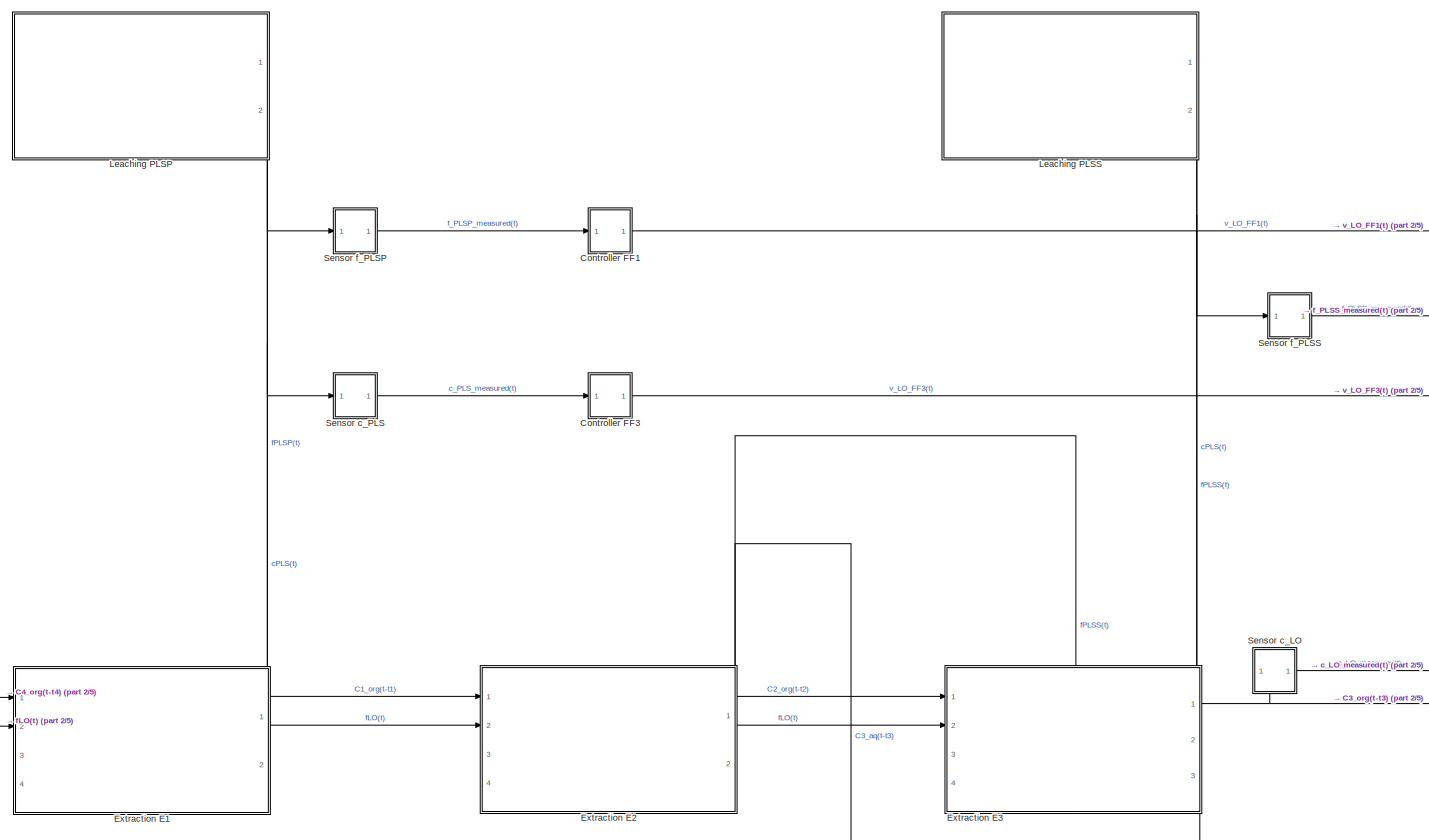
[diagram: root canvas - part 1/5, left side, full height]
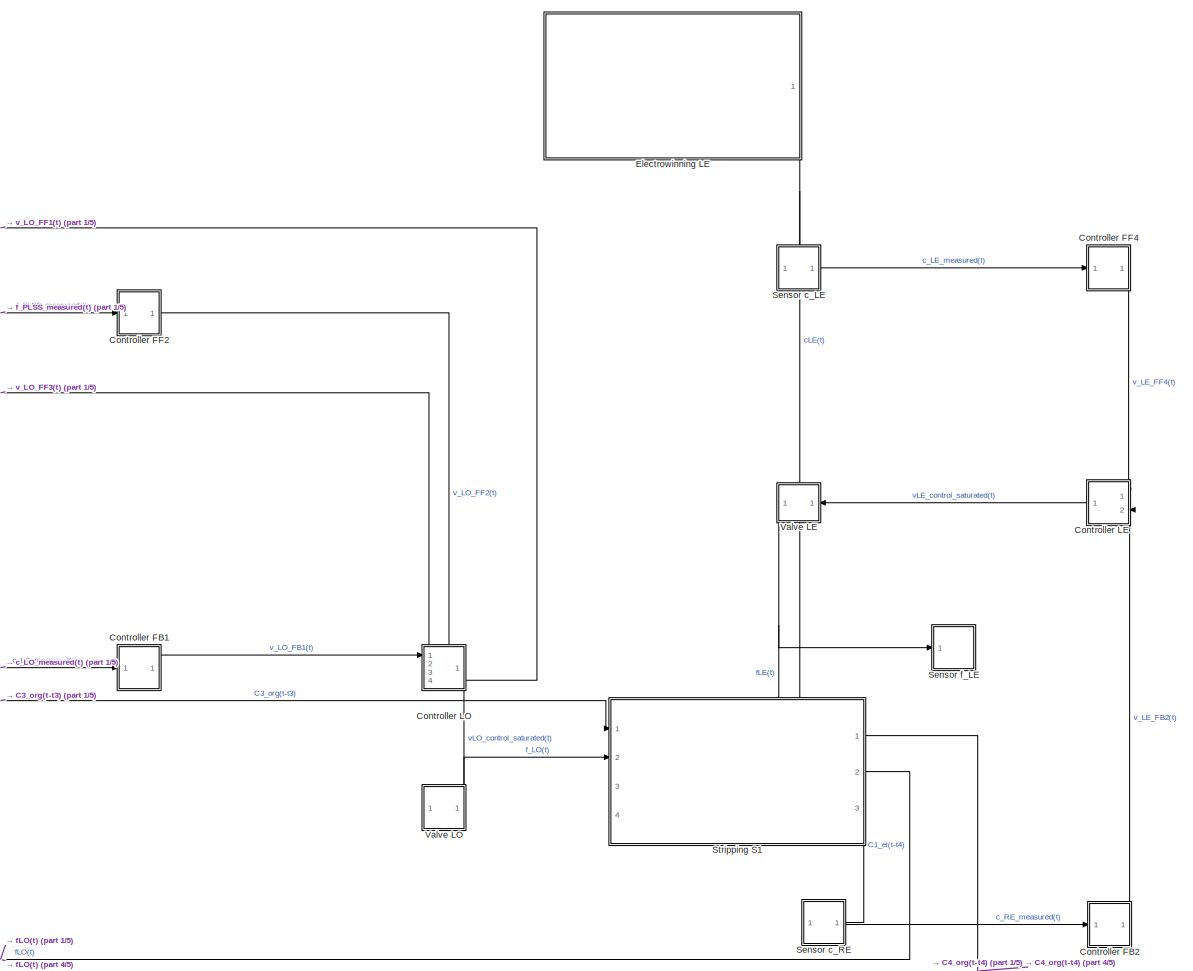
[diagram: root canvas - part 2/5, right side, full height]
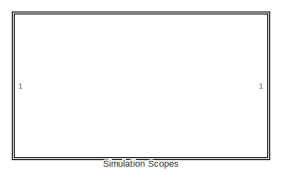
[diagram: root canvas - part 3/5, top right region]
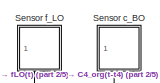
[diagram: root canvas - part 4/5, bottom left region]
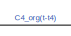
[diagram: root canvas - part 5/5, bottom center region]
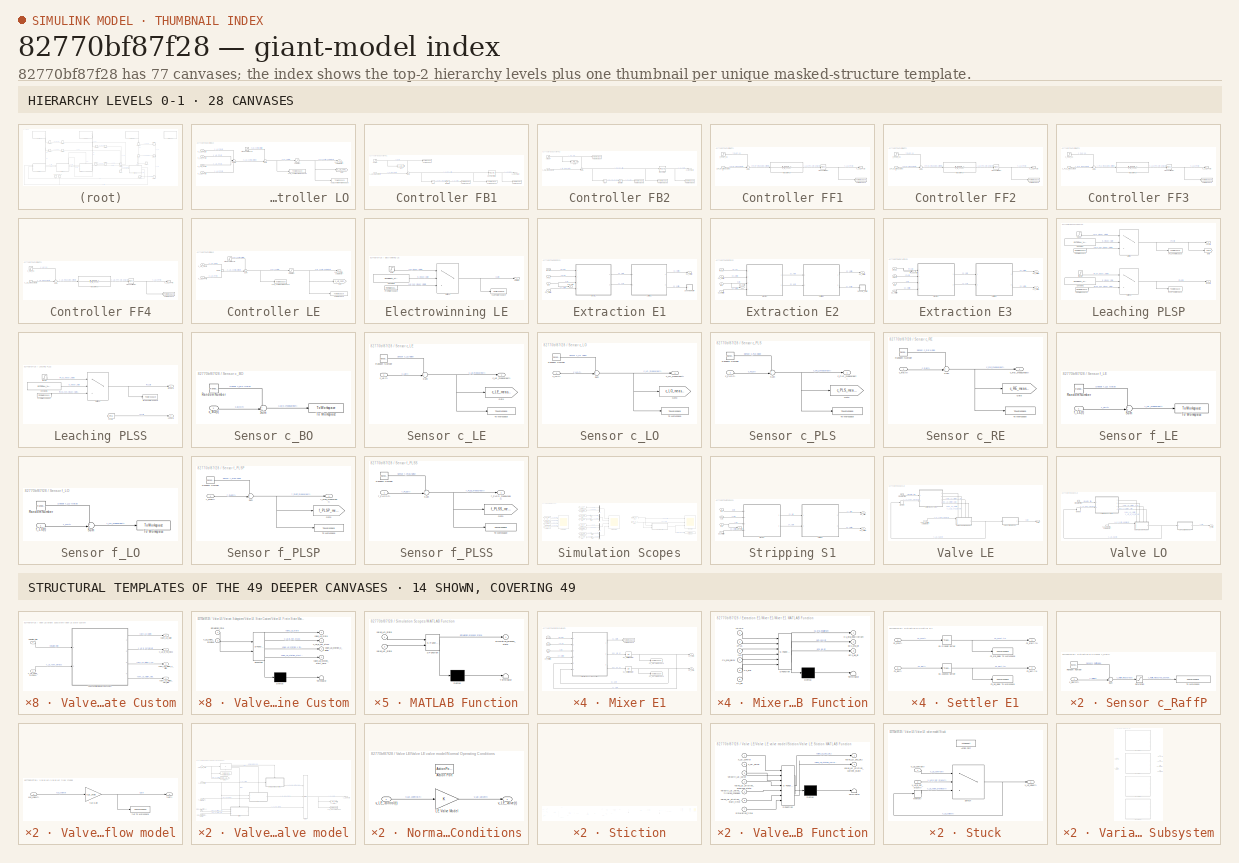
[diagram: thumbnail index - top-2 hierarchy levels (28 canvases) + 14 structural-template representatives of the remaining 49 canvases]
MODEL slx_82770bf87f28
KIND model
CONFIG AbsTol = auto
CONFIG EnableMultiTasking = off
CONFIG FixedStep = step_time
CONFIG MaxStep = auto
CONFIG MinStep = auto
CONFIG RelTol = 1e-3
CONFIG SampleTimeConstraint = Unconstrained
CONFIG SolverName = ode14x
CONFIG StartTime = 0.0
CONFIG StopTime = simulation_time
BLOCK [SubSystem]                            Controller LO
  PortSchema = {"entries":[{"content":{"sides":[{"content":{"connectorIds":["In1"]},"type":"ConnectorPlacement.EquallySpacedRectSide","uuid":"52743177-f082-4040-b095-38ff8f699919"},{"content":{"connectorIds":["In4"],"side":"RIGHT"},"type":"ConnectorPlacement.EquallySpacedRectSide","uuid":"070049ef-ea19-4899-84de-48e128addf57"},{"content":{"connectorIds":["In2","In3"],"side":"TOP"},"type":"ConnectorPlacement.Equa...<+400ch>
  Ports = [4, 1]
  RequestExecContextInheritance = off
BLOCK [Goto]                            Controller LO/Goto
  GotoTag = v_LO_control
  TagVisibility = global
BLOCK [Saturate]                            Controller LO/Saturation
  LowerLimit = 0
  UpperLimit = 1
BLOCK [Step]                            Controller LO/Steady-state vLO
  After = vLO_ss
  Before = vLO_ss
  SampleTime = 0
  Time = 0
BLOCK [Sum]                            Controller LO/Sum
  Inputs = ++|
  Ports = [2, 1]
BLOCK [Sum]                            Controller LO/Sum1
  Inputs = ++++
  Ports = [4, 1]
BLOCK [ToWorkspace]                            Controller LO/vLO_control To Workspace
  FixptAsFi = on
  MaxDataPoints = inf
  Ports = [1]
  SampleTime = -1
  SaveFormat = Timeseries
  VariableName = vLO_control_saturated
BLOCK [ToWorkspace]                            Controller LO/vLO_control To Workspace1
  FixptAsFi = on
  MaxDataPoints = inf
  Ports = [1]
  SampleTime = -1
  SaveFormat = Timeseries
  VariableName = vLO_control
BLOCK [Outport]                            Controller LO/vLO_control_saturated(t)
BLOCK [Inport]                            Controller LO/v_LO_FB1(t)
BLOCK [Inport]                            Controller LO/v_LO_FF1(t)
  Port = 4
BLOCK [Inport]                            Controller LO/v_LO_FF2(t) 
  Port = 3
BLOCK [Inport]                            Controller LO/v_LO_FF3(t)
  Port = 2
BLOCK [SubSystem] Controller FB1
  Ports = [1, 1]
  RequestExecContextInheritance = off
BLOCK [Abs] Controller FB1/Abs
  SaturateOnIntegerOverflow = off
BLOCK [Reference] Controller FB1/FB1 PI Controller  REF=pid_lib/PID Controller
  Ports = [1, 1]
  SourceBlock = pid_lib/PID Controller
  SourceProductBaseCode = SL
  SourceType = PID 1dof
BLOCK [Goto] Controller FB1/Goto
  GotoTag = c_LO_SP
  TagVisibility = global
BLOCK [Integrator] Controller FB1/Integrator
  Ports = [1, 1]
BLOCK [Sum] Controller FB1/Sum
  Inputs = +-|
  Ports = [2, 1]
BLOCK [ToWorkspace] Controller FB1/To Workspace
  FixptAsFi = on
  MaxDataPoints = inf
  Ports = [1]
  SampleTime = -1
  SaveFormat = Timeseries
  VariableName = cLO_SP
BLOCK [ToWorkspace] Controller FB1/To Workspace1
  FixptAsFi = on
  MaxDataPoints = inf
  Ports = [1]
  SampleTime = -1
  SaveFormat = Timeseries
  VariableName = cLO_FB1_err
BLOCK [ToWorkspace] Controller FB1/To Workspace2
  FixptAsFi = on
  MaxDataPoints = inf
  Ports = [1]
  SampleTime = -1
  SaveFormat = Timeseries
  VariableName = vLO_FB1
BLOCK [ToWorkspace] Controller FB1/To Workspace3
  FixptAsFi = on
  MaxDataPoints = inf
  Ports = [1]
  SampleTime = -1
  SaveFormat = Timeseries
  VariableName = c_LO_IAE
BLOCK [Step] Controller FB1/cLO SP
  After = C3_org_ss
  Before = C3_org_ss
  SampleTime = 0
  Time = 0
BLOCK [Inport] Controller FB1/c_LO_measured(t)
BLOCK [Outport] Controller FB1/v_LO_FB1(t)
BLOCK [SubSystem] Controller FB2
  PortSchema = {"entries":[{"content":{"sides":[{"content":{"connectorIds":["In1"]},"type":"ConnectorPlacement.EquallySpacedRectSide","uuid":"549d450d-0da5-494d-9dce-c33c7378f634"},{"content":{"connectorIds":[],"side":"RIGHT"},"type":"ConnectorPlacement.EquallySpacedRectSide","uuid":"cc4f927b-a34a-449e-b64f-caed187c260d"},{"content":{"connectorIds":["Out1"],"side":"TOP"},"type":"ConnectorPlacement.EquallySpacedR...<+240ch>
  Ports = [1, 1]
  RequestExecContextInheritance = off
BLOCK [Abs] Controller FB2/Abs
  SaturateOnIntegerOverflow = off
BLOCK [Goto] Controller FB2/Goto
  GotoTag = c_RE_SP
  TagVisibility = global
BLOCK [Integrator] Controller FB2/Integrator
  Ports = [1, 1]
BLOCK [Reference] Controller FB2/PID Controller  REF=pid_lib/PID Controller
  Ports = [1, 1]
  SourceBlock = pid_lib/PID Controller
  SourceProductBaseCode = SL
  SourceType = PID 1dof
BLOCK [Sum] Controller FB2/Sum
  Inputs = +-|
  Ports = [2, 1]
BLOCK [ToWorkspace] Controller FB2/To Workspace
  FixptAsFi = on
  MaxDataPoints = inf
  Ports = [1]
  SampleTime = -1
  SaveFormat = Timeseries
  VariableName = cRE_SP
BLOCK [ToWorkspace] Controller FB2/To Workspace1
  FixptAsFi = on
  MaxDataPoints = inf
  Ports = [1]
  SampleTime = -1
  SaveFormat = Timeseries
  VariableName = cRE_FB2_err
BLOCK [ToWorkspace] Controller FB2/To Workspace2
  FixptAsFi = on
  MaxDataPoints = inf
  Ports = [1]
  SampleTime = -1
  SaveFormat = Timeseries
  VariableName = vLE_FB2
BLOCK [ToWorkspace] Controller FB2/To Workspace3
  FixptAsFi = on
  MaxDataPoints = inf
  Ports = [1]
  SampleTime = -1
  SaveFormat = Timeseries
  VariableName = c_RE_IAE
BLOCK [Step] Controller FB2/cRE SP
  After = C1_el_ss
  Before = C1_el_ss
  SampleTime = 0
  Time = 0
BLOCK [Inport] Controller FB2/c_RE_measured(t)
BLOCK [Outport] Controller FB2/v_LE_FB2(t)
BLOCK [SubSystem] Controller FF1
  Ports = [1, 1]
  RequestExecContextInheritance = off
BLOCK [Sum] Controller FF1/Sum
  Inputs = -+|
  Ports = [2, 1]
BLOCK [ToWorkspace] Controller FF1/To Workspace
  FixptAsFi = on
  MaxDataPoints = inf
  Ports = [1]
  SampleTime = -1
  SaveFormat = Timeseries
  VariableName = vLO_FF1
BLOCK [TransferFcn] Controller FF1/Transfer Fcn
  Denominator = [T_lg_FF1 1]
  Numerator = [K_ff_FF1*T_ld_FF1 K_ff_FF1*1]
BLOCK [TransportDelay] Controller FF1/Transport Delay
  DelayTime = theta_ff_FF1
  Ports = [1, 1]
BLOCK [Inport] Controller FF1/f_PLSP_measured(t)
BLOCK [Step] Controller FF1/f_PLSP_ss
  After = fPLSP_ss
  Before = fPLSP_ss
  SampleTime = 0
  Time = 0
BLOCK [Outport] Controller FF1/v_LO_FF1(t)
BLOCK [SubSystem] Controller FF2
  Ports = [1, 1]
  RequestExecContextInheritance = off
BLOCK [Sum] Controller FF2/Sum
  Inputs = -+|
  Ports = [2, 1]
BLOCK [ToWorkspace] Controller FF2/To Workspace
  FixptAsFi = on
  MaxDataPoints = inf
  Ports = [1]
  SampleTime = -1
  SaveFormat = Timeseries
  VariableName = vLO_FF2
BLOCK [TransferFcn] Controller FF2/Transfer Fcn
  Denominator = [T_lg_FF2 1]
  Numerator = [K_ff_FF2*T_ld_FF2 K_ff_FF2*1]
BLOCK [TransportDelay] Controller FF2/Transport Delay
  DelayTime = theta_ff_FF2
  Ports = [1, 1]
BLOCK [Inport] Controller FF2/f_PLSS_measured(t)
BLOCK [Step] Controller FF2/f_PLSS_ss
  After = fPLSS_ss
  Before = fPLSS_ss
  SampleTime = 0
  Time = 0
BLOCK [Outport] Controller FF2/v_LO_FF2(t)
BLOCK [SubSystem] Controller FF3
  Ports = [1, 1]
  RequestExecContextInheritance = off
BLOCK [Sum] Controller FF3/Sum
  Inputs = -+|
  Ports = [2, 1]
BLOCK [ToWorkspace] Controller FF3/To Workspace
  FixptAsFi = on
  MaxDataPoints = inf
  Ports = [1]
  SampleTime = -1
  SaveFormat = Timeseries
  VariableName = vLO_FF3
BLOCK [TransferFcn] Controller FF3/Transfer Fcn
  Denominator = [T_lg_FF3 1]
  Numerator = [K_ff_FF3*T_ld_FF3 K_ff_FF3*1]
BLOCK [TransportDelay] Controller FF3/Transport Delay
  DelayTime = theta_ff_FF3
  Ports = [1, 1]
BLOCK [Inport] Controller FF3/c_PLS_measured(t)
BLOCK [Step] Controller FF3/c_PLS_ss
  After = cPLS_ss
  Before = cPLS_ss
  SampleTime = 0
  Time = 0
BLOCK [Outport] Controller FF3/v_LO_FF3(t)
BLOCK [SubSystem] Controller FF4
  NameLocation = top
  PortSchema = {"entries":[{"content":{"sides":[{"content":{"connectorIds":["In1"]},"type":"ConnectorPlacement.EquallySpacedRectSide","uuid":"309a0a3d-e30b-4a77-b5d2-c4b50080f33a"},{"content":{"connectorIds":[],"side":"RIGHT"},"type":"ConnectorPlacement.EquallySpacedRectSide","uuid":"b344a8f7-ad8f-4273-abc7-1e7d20895348"},{"content":{"connectorIds":[],"side":"TOP"},"type":"ConnectorPlacement.EquallySpacedRectSid...<+384ch>
  Ports = [1, 1]
  RequestExecContextInheritance = off
BLOCK [Sum] Controller FF4/Sum
  Inputs = -+|
  Ports = [2, 1]
BLOCK [ToWorkspace] Controller FF4/To Workspace
  FixptAsFi = on
  MaxDataPoints = inf
  Ports = [1]
  SampleTime = -1
  SaveFormat = Timeseries
  VariableName = vLE_FF4
BLOCK [TransferFcn] Controller FF4/Transfer Fcn
  Denominator = [T_lg_FF4 1]
  Numerator = [K_ff_FF4*T_ld_FF4 K_ff_FF4*1]
BLOCK [TransportDelay] Controller FF4/Transport Delay
  DelayTime = theta_ff_FF4
  Ports = [1, 1]
BLOCK [Inport] Controller FF4/c_LE_measured(t)
BLOCK [Step] Controller FF4/c_LE_ss
  After = cLE_ss
  Before = cLE_ss
  SampleTime = 0
  Time = 0
BLOCK [Outport] Controller FF4/v_LE_FF4(t)
BLOCK [SubSystem] Controller LE
  NameLocation = right
  PortSchema = {"entries":[{"content":{"sides":[{"content":{"connectorIds":[]},"type":"ConnectorPlacement.EquallySpacedRectSide","uuid":"549d450d-0da5-494d-9dce-c33c7378f634"},{"content":{"connectorIds":["Out1"],"side":"RIGHT"},"type":"ConnectorPlacement.EquallySpacedRectSide","uuid":"cc4f927b-a34a-449e-b64f-caed187c260d"},{"content":{"connectorIds":["In1"],"side":"TOP"},"type":"ConnectorPlacement.EquallySpacedR...<+389ch>
  Ports = [2, 1]
  RequestExecContextInheritance = off
BLOCK [Goto] Controller LE/Goto
  GotoTag = v_LE_control
  TagVisibility = global
BLOCK [Saturate] Controller LE/Saturation
  LowerLimit = 0
  UpperLimit = 1
BLOCK [Step] Controller LE/Steady-state vLE
  After = vLE_ss
  Before = vLE_ss
  SampleTime = 0
  Time = 0
BLOCK [Sum] Controller LE/Sum
  Inputs = ++|
  Ports = [2, 1]
BLOCK [Sum] Controller LE/Sum1
  Inputs = +|+
  Ports = [2, 1]
BLOCK [ToWorkspace] Controller LE/To Workspace
  FixptAsFi = on
  MaxDataPoints = inf
  Ports = [1]
  SampleTime = -1
  SaveFormat = Timeseries
  VariableName = vLE_control_saturated
BLOCK [ToWorkspace] Controller LE/vLE_control To Workspace
  FixptAsFi = on
  MaxDataPoints = inf
  Ports = [1]
  SampleTime = -1
  SaveFormat = Timeseries
  VariableName = vLE_control
BLOCK [Outport] Controller LE/vLE_control_saturated(t)
BLOCK [Inport] Controller LE/v_LE_FB2(t)
  Port = 2
BLOCK [Inport] Controller LE/v_LE_FF4(t)
BLOCK [SubSystem] Electrowinning LE
  NameLocation = top
  PortSchema = {"entries":[{"content":{"sides":[{"content":{"connectorIds":[]},"type":"ConnectorPlacement.EquallySpacedRectSide","uuid":"d08e9f48-9437-4d33-afd1-67836a5fb6bd"},{"content":{"connectorIds":[],"side":"RIGHT"},"type":"ConnectorPlacement.EquallySpacedRectSide","uuid":"a0c0d898-7ac9-474d-9070-540f9b51cc10"},{"content":{"connectorIds":[],"side":"TOP"},"type":"ConnectorPlacement.EquallySpacedRectSide","u...<+379ch>
  Ports = [0, 1]
  RequestExecContextInheritance = off
BLOCK [Constant] Electrowinning LE/Constant1
  Value = EXTERNAL_VARIABLES_STEADY_STATE
BLOCK [FromWorkspace] Electrowinning LE/From Workspace
  VariableName = c_LE_timeseries
BLOCK [Switch] Electrowinning LE/Switch1
  Criteria = u2 ~= 0
  InputSameDT = off
  SaturateOnIntegerOverflow = off
BLOCK [Step] Electrowinning LE/cLE
  After = cLE_ss
  Before = cLE_ss
  SampleTime = 0
  Time = 0
BLOCK [ToWorkspace] Electrowinning LE/cLE To Workspace
  FixptAsFi = on
  MaxDataPoints = inf
  Ports = [1]
  SampleTime = -1
  SaveFormat = Timeseries
  VariableName = cLE
BLOCK [Outport] Electrowinning LE/cLE(t)
BLOCK [SubSystem] Extraction E1
  PortSchema = {"entries":[{"content":{"sides":[{"content":{"connectorIds":["In1","In2"]},"type":"ConnectorPlacement.EquallySpacedRectSide","uuid":"f32559ae-5e45-417b-8c50-adbeea9a29f4"},{"content":{"connectorIds":["Out1","Out2"],"side":"RIGHT"},"type":"ConnectorPlacement.EquallySpacedRectSide","uuid":"22bc39ae-803b-4947-b021-a54bd767cf3b"},{"content":{"connectorIds":["In3","In4"],"side":"TOP"},"type":"Connector...<+264ch>
  Ports = [4, 2]
  RequestExecContextInheritance = off
BLOCK [Outport] Extraction E1/C1_org(t-t1)
BLOCK [Inport] Extraction E1/C4_org(t-t4)
BLOCK [SubSystem] Extraction E1/Mixer E1
  Ports = [4, 2]
  RequestExecContextInheritance = off
BLOCK [ToWorkspace] Extraction E1/Mixer E1/C1_aq To Workspace
  FixptAsFi = on
  MaxDataPoints = inf
  Ports = [1]
  SampleTime = -1
  SaveFormat = Timeseries
  VariableName = C1_aq
BLOCK [Outport] Extraction E1/Mixer E1/C1_aq(t)
  Port = 2
BLOCK [Integrator] Extraction E1/Mixer E1/C1_aq(t) Integrater
  InitialCondition = C1_aq_ss
  Ports = [1, 1]
BLOCK [ToWorkspace] Extraction E1/Mixer E1/C1_org To Workspace
  FixptAsFi = on
  MaxDataPoints = inf
  Ports = [1]
  SampleTime = -1
  SaveFormat = Timeseries
  VariableName = C1_org
BLOCK [Outport] Extraction E1/Mixer E1/C1_org(t)
BLOCK [Integrator] Extraction E1/Mixer E1/C1_org(t) Integrater
  InitialCondition = C1_org_ss
  Ports = [1, 1]
BLOCK [Inport] Extraction E1/Mixer E1/C4_org(t-t4)
  Port = 4
BLOCK [SubSystem] Extraction E1/Mixer E1/Mixer E1 MATLAB Function
  ErrorFcn = Stateflow.Translate.translate
  PermitHierarchicalResolution = ExplicitOnly
  Ports = [6, 3]
  RequestExecContextInheritance = off
  SFBlockType = MATLAB Function
  TreatAsAtomicUnit = on
BLOCK [Demux] Extraction E1/Mixer E1/Mixer E1 MATLAB Function/ Demux 
  Outputs = 1
  Ports = [1, 1]
BLOCK [S-Function] Extraction E1/Mixer E1/Mixer E1 MATLAB Function/ SFunction 
  EnableBusSupport = on
  FunctionName = sf_sfun
  Parameters = C_org_max,K_eq_ext,K_mass_1,V1
  PortCounts = [6 4]
  Ports = [6, 4]
  SFcnIsStateOwnerBlock = off
  SFunctionDeploymentMode = off
  Tag = Stateflow S-Function 5
BLOCK [Terminator] Extraction E1/Mixer E1/Mixer E1 MATLAB Function/ Terminator 
BLOCK [Inport] Extraction E1/Mixer E1/Mixer E1 MATLAB Function/C1_aq
  Port = 6
BLOCK [Inport] Extraction E1/Mixer E1/Mixer E1 MATLAB Function/C1_org
  Port = 5
BLOCK [Outport] Extraction E1/Mixer E1/Mixer E1 MATLAB Function/C1_org_equilibrium
BLOCK [Inport] Extraction E1/Mixer E1/Mixer E1 MATLAB Function/C4_org_delay
  Port = 4
BLOCK [Inport] Extraction E1/Mixer E1/Mixer E1 MATLAB Function/cPLS
  Port = 2
BLOCK [Outport] Extraction E1/Mixer E1/Mixer E1 MATLAB Function/dC1_aq_dt
  Port = 3
BLOCK [Outport] Extraction E1/Mixer E1/Mixer E1 MATLAB Function/dC1_org_dt
  Port = 2
BLOCK [Inport] Extraction E1/Mixer E1/Mixer E1 MATLAB Function/fLO
  Port = 3
BLOCK [Inport] Extraction E1/Mixer E1/Mixer E1 MATLAB Function/fPLSP
BLOCK [ToWorkspace] Extraction E1/Mixer E1/To Workspace
  FixptAsFi = on
  MaxDataPoints = inf
  Ports = [1]
  SampleTime = -1
  SaveFormat = Timeseries
  VariableName = C1_org_eq
BLOCK [Inport] Extraction E1/Mixer E1/cPLS
  Port = 2
BLOCK [Inport] Extraction E1/Mixer E1/fLO
  Port = 3
BLOCK [Inport] Extraction E1/Mixer E1/fPLSP
BLOCK [SubSystem] Extraction E1/Sensor c_RaffP
  Ports = [1]
  RequestExecContextInheritance = off
BLOCK [RandomNumber] Extraction E1/Sensor c_RaffP/Random Number
  SampleTime = step_time
  Seed = seed_c_RaffP
  Variance = sigma_c_RaffP^2
BLOCK [Saturate] Extraction E1/Sensor c_RaffP/Saturation
  LowerLimit = 0
  UpperLimit = inf
BLOCK [Sum] Extraction E1/Sensor c_RaffP/Sum
  Inputs = ++|
  Ports = [2, 1]
BLOCK [ToWorkspace] Extraction E1/Sensor c_RaffP/To Workspace
  FixptAsFi = on
  MaxDataPoints = inf
  Ports = [1]
  SampleTime = -1
  SaveFormat = Timeseries
  VariableName = c_RaffP_measured
BLOCK [Inport] Extraction E1/Sensor c_RaffP/c_RaffP(t)
BLOCK [SubSystem] Extraction E1/Settler E1
  Ports = [2, 2]
  RequestExecContextInheritance = off
BLOCK [Inport] Extraction E1/Settler E1/C1_aq(t)
  Port = 2
BLOCK [Outport] Extraction E1/Settler E1/C1_aq(t-t1)
  Port = 2
BLOCK [ToWorkspace] Extraction E1/Settler E1/C1_aq_delay To Workspace
  FixptAsFi = on
  MaxDataPoints = inf
  Ports = [1]
  SampleTime = -1
  SaveFormat = Timeseries
  VariableName = C1_aq_delay
BLOCK [Inport] Extraction E1/Settler E1/C1_org(t)
BLOCK [Outport] Extraction E1/Settler E1/C1_org(t-t1)
BLOCK [ToWorkspace] Extraction E1/Settler E1/C1_org_delay To Workspace
  FixptAsFi = on
  MaxDataPoints = inf
  Ports = [1]
  SampleTime = -1
  SaveFormat = Timeseries
  VariableName = C1_org_delay
BLOCK [TransportDelay] Extraction E1/Settler E1/E1 Aqueous Settler
  DelayTime = t1
  InitialOutput = C1_aq_ss
  Ports = [1, 1]
BLOCK [TransportDelay] Extraction E1/Settler E1/E1 Organic Settler
  DelayTime = t1
  InitialOutput = C1_org_ss
  Ports = [1, 1]
BLOCK [Inport] Extraction E1/cPLS
  Port = 4
BLOCK [Inport] Extraction E1/fLO
  Port = 2
BLOCK [Outport] Extraction E1/fLO_out(t)
  Port = 2
BLOCK [Inport] Extraction E1/fPLSP
  Port = 3
BLOCK [SubSystem] Extraction E2
  PortSchema = {"entries":[{"content":{"sides":[{"content":{"connectorIds":["In1","In2"]},"type":"ConnectorPlacement.EquallySpacedRectSide","uuid":"f32559ae-5e45-417b-8c50-adbeea9a29f4"},{"content":{"connectorIds":["Out1","Out2"],"side":"RIGHT"},"type":"ConnectorPlacement.EquallySpacedRectSide","uuid":"22bc39ae-803b-4947-b021-a54bd767cf3b"},{"content":{"connectorIds":["In3","In4"],"side":"TOP"},"type":"Connector...<+264ch>
  Ports = [4, 2]
  RequestExecContextInheritance = off
BLOCK [Inport] Extraction E2/C1_org(t-t1)
BLOCK [Outport] Extraction E2/C2_org(t-t2)
BLOCK [Inport] Extraction E2/C3_aq(t-t3)
  Port = 4
BLOCK [SubSystem] Extraction E2/Mixer E2
  Ports = [4, 2]
  RequestExecContextInheritance = off
BLOCK [Inport] Extraction E2/Mixer E2/C1_org(t-t1)
  Port = 4
BLOCK [ToWorkspace] Extraction E2/Mixer E2/C2_aq To Workspace
  FixptAsFi = on
  MaxDataPoints = inf
  Ports = [1]
  SampleTime = -1
  SaveFormat = Timeseries
  VariableName = C2_aq
BLOCK [Outport] Extraction E2/Mixer E2/C2_aq(t)
  Port = 2
BLOCK [Integrator] Extraction E2/Mixer E2/C2_aq(t) Integrater
  InitialCondition = C2_aq_ss
  Ports = [1, 1]
BLOCK [ToWorkspace] Extraction E2/Mixer E2/C2_org To Workspace
  FixptAsFi = on
  MaxDataPoints = inf
  Ports = [1]
  SampleTime = -1
  SaveFormat = Timeseries
  VariableName = C2_org
BLOCK [Outport] Extraction E2/Mixer E2/C2_org(t)
BLOCK [Integrator] Extraction E2/Mixer E2/C2_org(t) Integrater
  InitialCondition = C2_org_ss
  Ports = [1, 1]
BLOCK [Inport] Extraction E2/Mixer E2/C3_aq(t-t3)
  Port = 2
BLOCK [SubSystem] Extraction E2/Mixer E2/Mixer E2 MATLAB Function
  ErrorFcn = Stateflow.Translate.translate
  PermitHierarchicalResolution = ExplicitOnly
  Ports = [6, 3]
  RequestExecContextInheritance = off
  SFBlockType = MATLAB Function
  TreatAsAtomicUnit = on
BLOCK [Demux] Extraction E2/Mixer E2/Mixer E2 MATLAB Function/ Demux 
  Outputs = 1
  Ports = [1, 1]
BLOCK [S-Function] Extraction E2/Mixer E2/Mixer E2 MATLAB Function/ SFunction 
  EnableBusSupport = on
  FunctionName = sf_sfun
  Parameters = C_org_max,K_eq_ext,K_mass_2,V2
  PortCounts = [6 4]
  Ports = [6, 4]
  SFcnIsStateOwnerBlock = off
  SFunctionDeploymentMode = off
  Tag = Stateflow S-Function 1
BLOCK [Terminator] Extraction E2/Mixer E2/Mixer E2 MATLAB Function/ Terminator 
BLOCK [Inport] Extraction E2/Mixer E2/Mixer E2 MATLAB Function/C1_org_delay
  Port = 4
BLOCK [Inport] Extraction E2/Mixer E2/Mixer E2 MATLAB Function/C2_aq
  Port = 6
BLOCK [Inport] Extraction E2/Mixer E2/Mixer E2 MATLAB Function/C2_org
  Port = 5
BLOCK [Outport] Extraction E2/Mixer E2/Mixer E2 MATLAB Function/C2_org_equilibrium
BLOCK [Inport] Extraction E2/Mixer E2/Mixer E2 MATLAB Function/C3_aq_delay
  Port = 2
BLOCK [Outport] Extraction E2/Mixer E2/Mixer E2 MATLAB Function/dC2_aq_dt
  Port = 3
BLOCK [Outport] Extraction E2/Mixer E2/Mixer E2 MATLAB Function/dC2_org_dt
  Port = 2
BLOCK [Inport] Extraction E2/Mixer E2/Mixer E2 MATLAB Function/fLO
  Port = 3
BLOCK [Inport] Extraction E2/Mixer E2/Mixer E2 MATLAB Function/fPLSS
BLOCK [ToWorkspace] Extraction E2/Mixer E2/To Workspace
  FixptAsFi = on
  MaxDataPoints = inf
  Ports = [1]
  SampleTime = -1
  SaveFormat = Timeseries
  VariableName = C2_org_eq
BLOCK [Inport] Extraction E2/Mixer E2/fLO
  Port = 3
BLOCK [Inport] Extraction E2/Mixer E2/fPLSS
BLOCK [SubSystem] Extraction E2/Sensor c_RaffS
  Ports = [1]
  RequestExecContextInheritance = off
BLOCK [RandomNumber] Extraction E2/Sensor c_RaffS/Random Number
  SampleTime = step_time
  Seed = seed_c_RaffS
  Variance = sigma_c_RaffS^2
BLOCK [Saturate] Extraction E2/Sensor c_RaffS/Saturation
  LowerLimit = 0
  UpperLimit = inf
BLOCK [Sum] Extraction E2/Sensor c_RaffS/Sum
  Inputs = ++|
  Ports = [2, 1]
BLOCK [ToWorkspace] Extraction E2/Sensor c_RaffS/To Workspace
  FixptAsFi = on
  MaxDataPoints = inf
  Ports = [1]
  SampleTime = -1
  SaveFormat = Timeseries
  VariableName = c_RaffS_measured
BLOCK [Inport] Extraction E2/Sensor c_RaffS/c_RaffS(t)
BLOCK [SubSystem] Extraction E2/Settler E2
  Ports = [2, 2]
  RequestExecContextInheritance = off
BLOCK [Inport] Extraction E2/Settler E2/C2_aq(t)
  Port = 2
BLOCK [Outport] Extraction E2/Settler E2/C2_aq(t-t2)
  Port = 2
BLOCK [ToWorkspace] Extraction E2/Settler E2/C2_aq_delay To Workspace
  FixptAsFi = on
  MaxDataPoints = inf
  Ports = [1]
  SampleTime = -1
  SaveFormat = Timeseries
  VariableName = C2_aq_delay
BLOCK [Inport] Extraction E2/Settler E2/C2_org(t)
BLOCK [Outport] Extraction E2/Settler E2/C2_org(t-t2)
BLOCK [ToWorkspace] Extraction E2/Settler E2/C2_org_delay To Workspace
  FixptAsFi = on
  MaxDataPoints = inf
  Ports = [1]
  SampleTime = -1
  SaveFormat = Timeseries
  VariableName = C2_org_delay
BLOCK [TransportDelay] Extraction E2/Settler E2/E2 Aqueous Settler
  DelayTime = t2
  InitialOutput = C2_aq_ss
  Ports = [1, 1]
BLOCK [TransportDelay] Extraction E2/Settler E2/E2 Organic Settler
  DelayTime = t2
  InitialOutput = C2_org_ss
  Ports = [1, 1]
BLOCK [Inport] Extraction E2/fLO
  Port = 2
BLOCK [Outport] Extraction E2/fLO_out(t)
  Port = 2
BLOCK [Inport] Extraction E2/fPLSS
  Port = 3
BLOCK [SubSystem] Extraction E3
  PortSchema = {"entries":[{"content":{"sides":[{"content":{"connectorIds":["In1","In2"]},"type":"ConnectorPlacement.EquallySpacedRectSide","uuid":"f32559ae-5e45-417b-8c50-adbeea9a29f4"},{"content":{"connectorIds":["Out1"],"side":"RIGHT"},"type":"ConnectorPlacement.EquallySpacedRectSide","uuid":"22bc39ae-803b-4947-b021-a54bd767cf3b"},{"content":{"connectorIds":["In3","In4"],"side":"TOP"},"type":"ConnectorPlaceme...<+414ch>
  Ports = [4, 3]
  RequestExecContextInheritance = off
BLOCK [Inport] Extraction E3/C2_org(t-t2)
BLOCK [Outport] Extraction E3/C3_aq(t-t3)
  Port = 3
BLOCK [Outport] Extraction E3/C3_org(t-t3)
BLOCK [SubSystem] Extraction E3/Mixer E3
  Ports = [4, 2]
  RequestExecContextInheritance = off
BLOCK [Inport] Extraction E3/Mixer E3/C2_org(t-t2)
  Port = 4
BLOCK [ToWorkspace] Extraction E3/Mixer E3/C3_aq To Workspace
  FixptAsFi = on
  MaxDataPoints = inf
  Ports = [1]
  SampleTime = -1
  SaveFormat = Timeseries
  VariableName = C3_aq
BLOCK [Outport] Extraction E3/Mixer E3/C3_aq(t)
  Port = 2
BLOCK [Integrator] Extraction E3/Mixer E3/C3_aq(t) Integrater
  InitialCondition = C3_aq_ss
  Ports = [1, 1]
BLOCK [ToWorkspace] Extraction E3/Mixer E3/C3_org To Workspace
  FixptAsFi = on
  MaxDataPoints = inf
  Ports = [1]
  SampleTime = -1
  SaveFormat = Timeseries
  VariableName = C3_org
BLOCK [Outport] Extraction E3/Mixer E3/C3_org(t)
BLOCK [Integrator] Extraction E3/Mixer E3/C3_org(t) Integrater
  InitialCondition = C3_org_ss
  Ports = [1, 1]
BLOCK [SubSystem] Extraction E3/Mixer E3/Mixer E3 MATLAB Function
  ErrorFcn = Stateflow.Translate.translate
  PermitHierarchicalResolution = ExplicitOnly
  Ports = [6, 3]
  RequestExecContextInheritance = off
  SFBlockType = MATLAB Function
  TreatAsAtomicUnit = on
BLOCK [Demux] Extraction E3/Mixer E3/Mixer E3 MATLAB Function/ Demux 
  Outputs = 1
  Ports = [1, 1]
BLOCK [S-Function] Extraction E3/Mixer E3/Mixer E3 MATLAB Function/ SFunction 
  EnableBusSupport = on
  FunctionName = sf_sfun
  Parameters = C_org_max,K_eq_ext,K_mass_3,V3
  PortCounts = [6 4]
  Ports = [6, 4]
  SFcnIsStateOwnerBlock = off
  SFunctionDeploymentMode = off
  Tag = Stateflow S-Function 3
BLOCK [Terminator] Extraction E3/Mixer E3/Mixer E3 MATLAB Function/ Terminator 
BLOCK [Inport] Extraction E3/Mixer E3/Mixer E3 MATLAB Function/C2_org_delay
  Port = 4
BLOCK [Inport] Extraction E3/Mixer E3/Mixer E3 MATLAB Function/C3_aq
  Port = 6
BLOCK [Inport] Extraction E3/Mixer E3/Mixer E3 MATLAB Function/C3_org
  Port = 5
BLOCK [Outport] Extraction E3/Mixer E3/Mixer E3 MATLAB Function/C3_org_equilibrium
BLOCK [Inport] Extraction E3/Mixer E3/Mixer E3 MATLAB Function/cPLS
  Port = 2
BLOCK [Outport] Extraction E3/Mixer E3/Mixer E3 MATLAB Function/dC3_aq_dt
  Port = 3
BLOCK [Outport] Extraction E3/Mixer E3/Mixer E3 MATLAB Function/dC3_org_dt
  Port = 2
BLOCK [Inport] Extraction E3/Mixer E3/Mixer E3 MATLAB Function/fLO
  Port = 3
BLOCK [Inport] Extraction E3/Mixer E3/Mixer E3 MATLAB Function/fPLSS
BLOCK [ToWorkspace] Extraction E3/Mixer E3/To Workspace
  FixptAsFi = on
  MaxDataPoints = inf
  Ports = [1]
  SampleTime = -1
  SaveFormat = Timeseries
  VariableName = C3_org_eq
BLOCK [Inport] Extraction E3/Mixer E3/cPLS
  Port = 2
BLOCK [Inport] Extraction E3/Mixer E3/fLO
  Port = 3
BLOCK [Inport] Extraction E3/Mixer E3/fPLSS
BLOCK [SubSystem] Extraction E3/Settler E3
  Ports = [2, 2]
  RequestExecContextInheritance = off
BLOCK [Inport] Extraction E3/Settler E3/C3_aq(t)
  Port = 2
BLOCK [Outport] Extraction E3/Settler E3/C3_aq(t-t3)
  Port = 2
BLOCK [ToWorkspace] Extraction E3/Settler E3/C3_aq_delay To Workspace
  FixptAsFi = on
  MaxDataPoints = inf
  Ports = [1]
  SampleTime = -1
  SaveFormat = Timeseries
  VariableName = C3_aq_delay
BLOCK [Inport] Extraction E3/Settler E3/C3_org(t)
BLOCK [Outport] Extraction E3/Settler E3/C3_org(t-t3)
BLOCK [ToWorkspace] Extraction E3/Settler E3/C3_org_delay To Workspace
  FixptAsFi = on
  MaxDataPoints = inf
  Ports = [1]
  SampleTime = -1
  SaveFormat = Timeseries
  VariableName = C3_org_delay
BLOCK [TransportDelay] Extraction E3/Settler E3/E3 Aqueous Settler
  DelayTime = t3
  InitialOutput = C3_aq_ss
  Ports = [1, 1]
BLOCK [TransportDelay] Extraction E3/Settler E3/E3 Organic Settler
  DelayTime = t3
  InitialOutput = C3_org_ss
  Ports = [1, 1]
BLOCK [Inport] Extraction E3/cPLS
  Port = 4
BLOCK [Inport] Extraction E3/fLO
  Port = 2
BLOCK [Inport] Extraction E3/fPLSS
  Port = 3
BLOCK [Outport] Extraction E3/fPLSS_out(t)
  Port = 2
BLOCK [SubSystem] Leaching PLSP
  NameLocation = top
  PortSchema = {"entries":[{"content":{"sides":[{"content":{"connectorIds":[]},"type":"ConnectorPlacement.EquallySpacedRectSide","uuid":"350927fc-4dd2-494c-92db-8910e4459de4"},{"content":{"connectorIds":[],"side":"RIGHT"},"type":"ConnectorPlacement.EquallySpacedRectSide","uuid":"54b31e5b-e75a-43e6-8723-66b6669f42f1"},{"content":{"connectorIds":[],"side":"TOP"},"type":"ConnectorPlacement.EquallySpacedRectSide","u...<+386ch>
  Ports = [0, 2]
  RequestExecContextInheritance = off
BLOCK [Constant] Leaching PLSP/Constant
  Value = EXTERNAL_VARIABLES_STEADY_STATE
BLOCK [Constant] Leaching PLSP/Constant1
  Value = EXTERNAL_VARIABLES_STEADY_STATE
BLOCK [FromWorkspace] Leaching PLSP/From Workspace
  VariableName = c_PLS_timeseries
BLOCK [FromWorkspace] Leaching PLSP/From Workspace1
  VariableName = f_PLSP_timeseries
BLOCK [Goto] Leaching PLSP/Goto
  GotoTag = cPLS
  TagVisibility = global
BLOCK [Switch] Leaching PLSP/Switch
  Criteria = u2 ~= 0
  InputSameDT = off
  SaturateOnIntegerOverflow = off
BLOCK [Switch] Leaching PLSP/Switch1
  Criteria = u2 ~= 0
  InputSameDT = off
  SaturateOnIntegerOverflow = off
BLOCK [Step] Leaching PLSP/cPLS
  After = cPLS_ss
  Before = cPLS_ss
  SampleTime = 0
  Time = 0
BLOCK [ToWorkspace] Leaching PLSP/cPLS To Workspace
  FixptAsFi = on
  MaxDataPoints = inf
  Ports = [1]
  SampleTime = -1
  SaveFormat = Timeseries
  VariableName = cPLS
BLOCK [Outport] Leaching PLSP/cPLS(t)
  Port = 2
BLOCK [Step] Leaching PLSP/fPLSP
  After = fPLSP_ss
  Before = fPLSP_ss
  SampleTime = 0
  Time = 0
BLOCK [ToWorkspace] Leaching PLSP/fPLSP To Workspace
  FixptAsFi = on
  MaxDataPoints = inf
  Ports = [1]
  SampleTime = -1
  SaveFormat = Timeseries
  VariableName = fPLSP
BLOCK [Outport] Leaching PLSP/fPLSP(t)
BLOCK [SubSystem] Leaching PLSS
  NameLocation = top
  PortSchema = {"entries":[{"content":{"sides":[{"content":{"connectorIds":[]},"type":"ConnectorPlacement.EquallySpacedRectSide","uuid":"350927fc-4dd2-494c-92db-8910e4459de4"},{"content":{"connectorIds":[],"side":"RIGHT"},"type":"ConnectorPlacement.EquallySpacedRectSide","uuid":"54b31e5b-e75a-43e6-8723-66b6669f42f1"},{"content":{"connectorIds":[],"side":"TOP"},"type":"ConnectorPlacement.EquallySpacedRectSide","u...<+386ch>
  Ports = [0, 2]
  RequestExecContextInheritance = off
BLOCK [Constant] Leaching PLSS/Constant1
  Value = EXTERNAL_VARIABLES_STEADY_STATE
BLOCK [From] Leaching PLSS/From
  GotoTag = cPLS
  TagVisibility = global
BLOCK [FromWorkspace] Leaching PLSS/From Workspace
  VariableName = f_PLSS_timeseries
BLOCK [Switch] Leaching PLSS/Switch1
  Criteria = u2 ~= 0
  InputSameDT = off
  SaturateOnIntegerOverflow = off
BLOCK [Outport] Leaching PLSS/cPLS(t)
  Port = 2
BLOCK [Step] Leaching PLSS/fPLSS
  After = fPLSS_ss
  Before = fPLSS_ss
  SampleTime = 0
  Time = 0
BLOCK [ToWorkspace] Leaching PLSS/fPLSS To Workspace
  FixptAsFi = on
  MaxDataPoints = inf
  Ports = [1]
  SampleTime = -1
  SaveFormat = Timeseries
  VariableName = fPLSS
BLOCK [Outport] Leaching PLSS/fPLSS(t)
BLOCK [SubSystem] Sensor c_BO
  NameLocation = top
  PortSchema = {"entries":[{"content":{"sides":[{"content":{"connectorIds":[]},"type":"ConnectorPlacement.EquallySpacedRectSide","uuid":"6f225f75-77bd-4d33-9eaa-68626f4c93f8"},{"content":{"connectorIds":[],"side":"RIGHT"},"type":"ConnectorPlacement.EquallySpacedRectSide","uuid":"fc49b7bf-677f-4e67-b426-d7f20682fd5b"},{"content":{"connectorIds":[],"side":"TOP"},"type":"ConnectorPlacement.EquallySpacedRectSide","u...<+378ch>
  Ports = [1]
  RequestExecContextInheritance = off
BLOCK [RandomNumber] Sensor c_BO/Random Number
  SampleTime = step_time
  Seed = seed_c_BO
  Variance = sigma_c_BO^2
BLOCK [Sum] Sensor c_BO/Sum
  Inputs = ++|
  Ports = [2, 1]
BLOCK [ToWorkspace] Sensor c_BO/To Workspace
  FixptAsFi = on
  MaxDataPoints = inf
  Ports = [1]
  SampleTime = -1
  SaveFormat = Timeseries
  VariableName = c_BO_measured
BLOCK [Inport] Sensor c_BO/c_BO(t)
BLOCK [SubSystem] Sensor c_LE
  Ports = [1, 1]
  RequestExecContextInheritance = off
BLOCK [Goto] Sensor c_LE/Goto
  GotoTag = c_LE_measured
  TagVisibility = global
BLOCK [RandomNumber] Sensor c_LE/Random Number
  SampleTime = step_time
  Seed = seed_c_LE
  Variance = sigma_c_LE^2
BLOCK [Sum] Sensor c_LE/Sum
  Inputs = ++|
  Ports = [2, 1]
BLOCK [ToWorkspace] Sensor c_LE/To Workspace
  FixptAsFi = on
  MaxDataPoints = inf
  Ports = [1]
  SampleTime = -1
  SaveFormat = Timeseries
  VariableName = c_LE_measured
BLOCK [Inport] Sensor c_LE/c_LE(t)
BLOCK [Outport] Sensor c_LE/c_LE_measured(t)
BLOCK [SubSystem] Sensor c_LO
  NameLocation = top
  PortSchema = {"entries":[{"content":{"sides":[{"content":{"connectorIds":[]},"type":"ConnectorPlacement.EquallySpacedRectSide","uuid":"6f225f75-77bd-4d33-9eaa-68626f4c93f8"},{"content":{"connectorIds":["Out1"],"side":"RIGHT"},"type":"ConnectorPlacement.EquallySpacedRectSide","uuid":"fc49b7bf-677f-4e67-b426-d7f20682fd5b"},{"content":{"connectorIds":[],"side":"TOP"},"type":"ConnectorPlacement.EquallySpacedRectSi...<+384ch>
  Ports = [1, 1]
  RequestExecContextInheritance = off
BLOCK [Goto] Sensor c_LO/Goto
  GotoTag = c_LO_measured
  TagVisibility = global
BLOCK [RandomNumber] Sensor c_LO/Random Number
  SampleTime = step_time
  Seed = seed_c_LO
  Variance = sigma_c_LO^2
BLOCK [Sum] Sensor c_LO/Sum
  Inputs = ++|
  Ports = [2, 1]
BLOCK [ToWorkspace] Sensor c_LO/To Workspace
  FixptAsFi = on
  MaxDataPoints = inf
  Ports = [1]
  SampleTime = -1
  SaveFormat = Timeseries
  VariableName = c_LO_measured
BLOCK [Inport] Sensor c_LO/c_LO(t)
BLOCK [Outport] Sensor c_LO/c_LO_measured(t)
BLOCK [SubSystem] Sensor c_PLS
  Ports = [1, 1]
  RequestExecContextInheritance = off
BLOCK [Goto] Sensor c_PLS/Goto
  GotoTag = c_PLS_measured
  TagVisibility = global
BLOCK [RandomNumber] Sensor c_PLS/Random Number
  SampleTime = step_time
  Seed = seed_c_PLS
  Variance = sigma_c_PLS^2
BLOCK [Sum] Sensor c_PLS/Sum
  Inputs = ++|
  Ports = [2, 1]
BLOCK [ToWorkspace] Sensor c_PLS/To Workspace
  FixptAsFi = on
  MaxDataPoints = inf
  Ports = [1]
  SampleTime = -1
  SaveFormat = Timeseries
  VariableName = c_PLS_measured
BLOCK [Inport] Sensor c_PLS/c_PLS(t)
BLOCK [Outport] Sensor c_PLS/c_PLS_measured(t)
BLOCK [SubSystem] Sensor c_RE
  Ports = [1, 1]
  RequestExecContextInheritance = off
BLOCK [Goto] Sensor c_RE/Goto
  GotoTag = c_RE_measured
  TagVisibility = global
BLOCK [RandomNumber] Sensor c_RE/Random Number
  SampleTime = step_time
  Seed = seed_c_RE
  Variance = sigma_c_RE^2
BLOCK [Sum] Sensor c_RE/Sum
  Inputs = ++|
  Ports = [2, 1]
BLOCK [ToWorkspace] Sensor c_RE/To Workspace
  FixptAsFi = on
  MaxDataPoints = inf
  Ports = [1]
  SampleTime = -1
  SaveFormat = Timeseries
  VariableName = c_RE_measured
BLOCK [Inport] Sensor c_RE/c_RE(t)
BLOCK [Outport] Sensor c_RE/c_RE_measured(t)
BLOCK [SubSystem] Sensor f_LE
  Ports = [1]
  RequestExecContextInheritance = off
BLOCK [RandomNumber] Sensor f_LE/Random Number
  SampleTime = step_time
  Seed = seed_f_LE
  Variance = sigma_f_LE^2
BLOCK [Sum] Sensor f_LE/Sum
  Inputs = ++|
  Ports = [2, 1]
BLOCK [ToWorkspace] Sensor f_LE/To Workspace
  FixptAsFi = on
  MaxDataPoints = inf
  Ports = [1]
  SampleTime = -1
  SaveFormat = Timeseries
  VariableName = f_LE_measured
BLOCK [Inport] Sensor f_LE/f_LE(t)
BLOCK [SubSystem] Sensor f_LO
  NameLocation = top
  PortSchema = {"entries":[{"content":{"sides":[{"content":{"connectorIds":[]},"type":"ConnectorPlacement.EquallySpacedRectSide","uuid":"6f225f75-77bd-4d33-9eaa-68626f4c93f8"},{"content":{"connectorIds":[],"side":"RIGHT"},"type":"ConnectorPlacement.EquallySpacedRectSide","uuid":"fc49b7bf-677f-4e67-b426-d7f20682fd5b"},{"content":{"connectorIds":[],"side":"TOP"},"type":"ConnectorPlacement.EquallySpacedRectSide","u...<+378ch>
  Ports = [1]
  RequestExecContextInheritance = off
BLOCK [RandomNumber] Sensor f_LO/Random Number
  SampleTime = step_time
  Seed = seed_f_LO
  Variance = sigma_f_LO^2
BLOCK [Sum] Sensor f_LO/Sum
  Inputs = ++|
  Ports = [2, 1]
BLOCK [ToWorkspace] Sensor f_LO/To Workspace
  FixptAsFi = on
  MaxDataPoints = inf
  Ports = [1]
  SampleTime = -1
  SaveFormat = Timeseries
  VariableName = f_LO_measured
BLOCK [Inport] Sensor f_LO/f_LO(t)
BLOCK [SubSystem] Sensor f_PLSP
  Ports = [1, 1]
  RequestExecContextInheritance = off
BLOCK [Goto] Sensor f_PLSP/Goto
  GotoTag = f_PLSP_measured
  TagVisibility = global
BLOCK [RandomNumber] Sensor f_PLSP/Random Number
  SampleTime = step_time
  Seed = seed_f_PLSP
  Variance = sigma_f_PLSP^2
BLOCK [Sum] Sensor f_PLSP/Sum
  Inputs = ++|
  Ports = [2, 1]
BLOCK [ToWorkspace] Sensor f_PLSP/To Workspace
  FixptAsFi = on
  MaxDataPoints = inf
  Ports = [1]
  SampleTime = -1
  SaveFormat = Timeseries
  VariableName = f_PLSP_measured
BLOCK [Inport] Sensor f_PLSP/f_PLSP(t)
BLOCK [Outport] Sensor f_PLSP/f_PLSP_measured(t)
BLOCK [SubSystem] Sensor f_PLSS
  Ports = [1, 1]
  RequestExecContextInheritance = off
BLOCK [Goto] Sensor f_PLSS/Goto
  GotoTag = f_PLSS_measured
  TagVisibility = global
BLOCK [RandomNumber] Sensor f_PLSS/Random Number
  SampleTime = step_time
  Seed = seed_f_PLSS
  Variance = sigma_f_PLSS^2
BLOCK [Sum] Sensor f_PLSS/Sum
  Inputs = ++|
  Ports = [2, 1]
BLOCK [ToWorkspace] Sensor f_PLSS/To Workspace
  FixptAsFi = on
  MaxDataPoints = inf
  Ports = [1]
  SampleTime = -1
  SaveFormat = Timeseries
  VariableName = f_PLSS_measured
BLOCK [Inport] Sensor f_PLSS/f_PLSS(t)
BLOCK [Outport] Sensor f_PLSS/f_PLSS_measured(t)
BLOCK [SubSystem] Simulation Scopes
  Ports = []
  RequestExecContextInheritance = off
BLOCK [Scope] Simulation Scopes/Controlled Variables
  Floating = off
  NumInputPorts = 4
  Ports = [4]
  ScopeSpecificationString = Simulink.scopes.TimeScopeBlockCfg('CurrentConfiguration', extmgr.ConfigurationSet(extmgr.Configuration('Core','General UI',true,'FigureColor',[1 1 1]),extmgr.Configuration('Core','Source UI',true),extmgr.Configuration('Sources','WiredSimulink',true,'DataLoggingVariableName','ScopeData1'),extmgr.Configuration('Visuals','Time Domain',true,'SerializedDisplays',{struct('MinYLimReal','0','MaxYLimReal',...<+4551ch>
BLOCK [Scope] Simulation Scopes/External Variables
  Floating = off
  NumInputPorts = 4
  Ports = [4]
  ScopeSpecificationString = Simulink.scopes.TimeScopeBlockCfg('CurrentConfiguration', extmgr.ConfigurationSet(extmgr.Configuration('Core','General UI',true,'FigureColor',[1 1 1]),extmgr.Configuration('Core','Source UI',true),extmgr.Configuration('Sources','WiredSimulink',true,'DataLoggingVariableName','ScopeData1'),extmgr.Configuration('Visuals','Time Domain',true,'SerializedDisplays',{struct('MinYLimReal','0','MaxYLimReal',...<+4182ch>
BLOCK [From] Simulation Scopes/From
  GotoTag = c_PLS_measured
  TagVisibility = global
BLOCK [From] Simulation Scopes/From1
  GotoTag = c_LE_measured
  TagVisibility = global
BLOCK [From] Simulation Scopes/From10
  GotoTag = v_LE_control
  TagVisibility = global
BLOCK [From] Simulation Scopes/From11
  GotoTag = v_LE_valve
  TagVisibility = global
BLOCK [From] Simulation Scopes/From12
  GotoTag = valve_LO_state
  TagVisibility = global
BLOCK [From] Simulation Scopes/From13
  GotoTag = valve_LE_state
  TagVisibility = global
BLOCK [From] Simulation Scopes/From2
  GotoTag = f_PLSP_measured
  TagVisibility = global
BLOCK [From] Simulation Scopes/From3
  GotoTag = f_PLSS_measured
  TagVisibility = global
BLOCK [From] Simulation Scopes/From4
  GotoTag = c_LO_measured
  TagVisibility = global
BLOCK [From] Simulation Scopes/From5
  GotoTag = c_LO_SP
  TagVisibility = global
BLOCK [From] Simulation Scopes/From6
  GotoTag = c_RE_measured
  TagVisibility = global
BLOCK [From] Simulation Scopes/From7
  GotoTag = c_RE_SP
  TagVisibility = global
BLOCK [From] Simulation Scopes/From8
  GotoTag = v_LO_control
  TagVisibility = global
BLOCK [From] Simulation Scopes/From9
  GotoTag = v_LO_valve
  TagVisibility = global
BLOCK [Gain] Simulation Scopes/Gain
  Gain = 100
BLOCK [Gain] Simulation Scopes/Gain1
  Gain = 100
BLOCK [Gain] Simulation Scopes/Gain2
  Gain = 100
BLOCK [Gain] Simulation Scopes/Gain3
  Gain = 100
BLOCK [SubSystem] Simulation Scopes/MATLAB Function
  ErrorFcn = Stateflow.Translate.translate
  PermitHierarchicalResolution = ExplicitOnly
  Ports = [2, 1]
  RequestExecContextInheritance = off
  SFBlockType = MATLAB Function
  TreatAsAtomicUnit = on
BLOCK [Demux] Simulation Scopes/MATLAB Function/ Demux 
  Outputs = 1
  Ports = [1, 1]
BLOCK [S-Function] Simulation Scopes/MATLAB Function/ SFunction 
  EnableBusSupport = off
  FunctionName = sf_sfun
  PortCounts = [2 2]
  Ports = [2, 2]
  SFcnIsStateOwnerBlock = off
  SFunctionDeploymentMode = off
  Tag = Stateflow S-Function 17
BLOCK [Terminator] Simulation Scopes/MATLAB Function/ Terminator 
BLOCK [Outport] Simulation Scopes/MATLAB Function/simulation_process_state
BLOCK [Inport] Simulation Scopes/MATLAB Function/valve_LE_state
  Port = 2
BLOCK [Inport] Simulation Scopes/MATLAB Function/valve_LO_state
BLOCK [Mux] Simulation Scopes/Mux
  DisplayOption = bar
  Inputs = 2
  Ports = [2, 1]
BLOCK [Mux] Simulation Scopes/Mux1
  DisplayOption = bar
  Inputs = 2
  Ports = [2, 1]
BLOCK [Mux] Simulation Scopes/Mux2
  DisplayOption = bar
  Inputs = 2
  Ports = [2, 1]
BLOCK [Mux] Simulation Scopes/Mux3
  DisplayOption = bar
  Inputs = 2
  Ports = [2, 1]
BLOCK [Scope] Simulation Scopes/Process State
  Floating = off
  NumInputPorts = 3
  Ports = [3]
  ScopeSpecificationString = Simulink.scopes.TimeScopeBlockCfg('CurrentConfiguration', extmgr.ConfigurationSet(extmgr.Configuration('Core','General UI',true,'FigureColor',[1 1 1]),extmgr.Configuration('Core','Source UI',true),extmgr.Configuration('Sources','WiredSimulink',true,'DataLoggingVariableName','ScopeData1'),extmgr.Configuration('Visuals','Time Domain',true,'SerializedDisplays',{struct('MinYLimReal','-0.5','MaxYLimRea...<+5709ch>
BLOCK [ToWorkspace] Simulation Scopes/To Workspace
  FixptAsFi = on
  MaxDataPoints = inf
  Ports = [1]
  SampleTime = -1
  SaveFormat = Timeseries
  VariableName = simulation_process_state
BLOCK [SubSystem] Stripping S1
  NameLocation = top
  PortSchema = {"entries":[{"content":{"sides":[{"content":{"connectorIds":["In1","In2"]},"type":"ConnectorPlacement.EquallySpacedRectSide","uuid":"edd2b024-3361-40c1-bf48-03bacc8752ae"},{"content":{"connectorIds":["Out1","Out2"],"side":"RIGHT"},"type":"ConnectorPlacement.EquallySpacedRectSide","uuid":"73229bfa-5f94-46f0-92ab-46840454d51f"},{"content":{"connectorIds":["In3","In4"],"side":"TOP"},"type":"Connector...<+414ch>
  Ports = [4, 3]
  RequestExecContextInheritance = off
BLOCK [Outport] Stripping S1/C1_el(t-t4)
  Port = 3
BLOCK [Inport] Stripping S1/C3_org(t-t3)
BLOCK [Outport] Stripping S1/C4_org(t-t4)
BLOCK [SubSystem] Stripping S1/Mixer S1
  Ports = [4, 2]
  RequestExecContextInheritance = off
BLOCK [ToWorkspace] Stripping S1/Mixer S1/C1_el To Workspace
  FixptAsFi = on
  MaxDataPoints = inf
  Ports = [1]
  SampleTime = -1
  SaveFormat = Timeseries
  VariableName = C1_el
BLOCK [Outport] Stripping S1/Mixer S1/C1_el(t)
BLOCK [Integrator] Stripping S1/Mixer S1/C1_el(t) Integrater
  InitialCondition = C1_el_ss
  Ports = [1, 1]
BLOCK [Inport] Stripping S1/Mixer S1/C3_org(t-t3)
  Port = 4
BLOCK [ToWorkspace] Stripping S1/Mixer S1/C4_org To Workspace
  FixptAsFi = on
  MaxDataPoints = inf
  Ports = [1]
  SampleTime = -1
  SaveFormat = Timeseries
  VariableName = C4_org
BLOCK [Outport] Stripping S1/Mixer S1/C4_org(t)
  Port = 2
BLOCK [Integrator] Stripping S1/Mixer S1/C4_org(t) Integrater
  InitialCondition = C4_org_ss
  Ports = [1, 1]
BLOCK [SubSystem] Stripping S1/Mixer S1/Mixer S1 MATLAB Function
  ErrorFcn = Stateflow.Translate.translate
  PermitHierarchicalResolution = ExplicitOnly
  Ports = [6, 3]
  RequestExecContextInheritance = off
  SFBlockType = MATLAB Function
  TreatAsAtomicUnit = on
BLOCK [Demux] Stripping S1/Mixer S1/Mixer S1 MATLAB Function/ Demux 
  Outputs = 1
  Ports = [1, 1]
BLOCK [S-Function] Stripping S1/Mixer S1/Mixer S1 MATLAB Function/ SFunction 
  EnableBusSupport = on
  FunctionName = sf_sfun
  Parameters = C_aq_max,K_eq_str,K_mass_4,V4
  PortCounts = [6 4]
  Ports = [6, 4]
  SFcnIsStateOwnerBlock = off
  SFunctionDeploymentMode = off
  Tag = Stateflow S-Function 4
BLOCK [Terminator] Stripping S1/Mixer S1/Mixer S1 MATLAB Function/ Terminator 
BLOCK [Inport] Stripping S1/Mixer S1/Mixer S1 MATLAB Function/C1_el
  Port = 5
BLOCK [Outport] Stripping S1/Mixer S1/Mixer S1 MATLAB Function/C1_el_equilibrium
BLOCK [Inport] Stripping S1/Mixer S1/Mixer S1 MATLAB Function/C3_org_delay
  Port = 4
BLOCK [Inport] Stripping S1/Mixer S1/Mixer S1 MATLAB Function/C4_org
  Port = 6
BLOCK [Inport] Stripping S1/Mixer S1/Mixer S1 MATLAB Function/cLE
  Port = 2
BLOCK [Outport] Stripping S1/Mixer S1/Mixer S1 MATLAB Function/dC1_el_dt
  Port = 2
BLOCK [Outport] Stripping S1/Mixer S1/Mixer S1 MATLAB Function/dC4_org_dt
  Port = 3
BLOCK [Inport] Stripping S1/Mixer S1/Mixer S1 MATLAB Function/fLE
BLOCK [Inport] Stripping S1/Mixer S1/Mixer S1 MATLAB Function/fLO
  Port = 3
BLOCK [ToWorkspace] Stripping S1/Mixer S1/To Workspace
  FixptAsFi = on
  MaxDataPoints = inf
  Ports = [1]
  SampleTime = -1
  SaveFormat = Timeseries
  VariableName = C1_el_eq
BLOCK [Inport] Stripping S1/Mixer S1/cLE
  Port = 2
BLOCK [Inport] Stripping S1/Mixer S1/fLE
BLOCK [Inport] Stripping S1/Mixer S1/fLO
  Port = 3
BLOCK [SubSystem] Stripping S1/Settler S1
  Ports = [2, 2]
  RequestExecContextInheritance = off
BLOCK [Inport] Stripping S1/Settler S1/C1_el(t)
BLOCK [Outport] Stripping S1/Settler S1/C1_el(t-t4)
BLOCK [ToWorkspace] Stripping S1/Settler S1/C1_el_delay To Workspace
  FixptAsFi = on
  MaxDataPoints = inf
  Ports = [1]
  SampleTime = -1
  SaveFormat = Timeseries
  VariableName = C1_el_delay
BLOCK [Inport] Stripping S1/Settler S1/C4_org(t)
  Port = 2
BLOCK [Outport] Stripping S1/Settler S1/C4_org(t-t4)
  Port = 2
BLOCK [ToWorkspace] Stripping S1/Settler S1/C4_org_delay To Workspace
  FixptAsFi = on
  MaxDataPoints = inf
  Ports = [1]
  SampleTime = -1
  SaveFormat = Timeseries
  VariableName = C4_org_delay
BLOCK [TransportDelay] Stripping S1/Settler S1/S1 Electrolyte Settler
  DelayTime = t4
  InitialOutput = C1_el_ss
  Ports = [1, 1]
BLOCK [TransportDelay] Stripping S1/Settler S1/S1 Organic Settler
  DelayTime = t4
  InitialOutput = C4_org_ss
  Ports = [1, 1]
BLOCK [Inport] Stripping S1/cLE
  Port = 3
BLOCK [Inport] Stripping S1/fLE
  Port = 4
BLOCK [Inport] Stripping S1/fLO
  Port = 2
BLOCK [Outport] Stripping S1/fLO_out(t)
  Port = 2
BLOCK [SubSystem] Valve LE
  NameLocation = top
  PortSchema = {"entries":[{"content":{"sides":[{"content":{"connectorIds":["In1"]},"type":"ConnectorPlacement.EquallySpacedRectSide","uuid":"06bfa01a-e663-49ea-90bb-597467147bdb"},{"content":{"connectorIds":[],"side":"RIGHT"},"type":"ConnectorPlacement.EquallySpacedRectSide","uuid":"1b97bf0a-d157-483d-9143-b19205f93668"},{"content":{"connectorIds":[],"side":"TOP"},"type":"ConnectorPlacement.EquallySpacedRectSid...<+384ch>
  Ports = [1, 1]
  RequestExecContextInheritance = off
BLOCK [Memory] Valve LE/Memory
  InitialCondition = vLE_ss
BLOCK [Clock] Valve LE/Simulation time
BLOCK [SubSystem] Valve LE/Valve LE flow model
  Ports = [1, 1]
  RequestExecContextInheritance = off
BLOCK [Gain] Valve LE/Valve LE flow model/fLE Gain
  Gain = fLE_max
BLOCK [ToWorkspace] Valve LE/Valve LE flow model/fLE To Workspace
  FixptAsFi = on
  MaxDataPoints = inf
  Ports = [1]
  SampleTime = -1
  SaveFormat = Timeseries
  VariableName = fLE
BLOCK [Outport] Valve LE/Valve LE flow model/fLE(t)
BLOCK [Inport] Valve LE/Valve LE flow model/vLE_valve(t)
BLOCK [SubSystem] Valve LE/Valve LE valve model
  PortSchema = {"entries":[{"content":{"sides":[{"content":{"connectorIds":["In1"]},"type":"ConnectorPlacement.EquallySpacedRectSide","uuid":"2e9f031d-8496-4052-a2e0-829d2345863a"},{"content":{"connectorIds":["Out1"],"side":"RIGHT"},"type":"ConnectorPlacement.EquallySpacedRectSide","uuid":"38b5eb17-cc51-4fa3-9394-ca0ed547bb78"},{"content":{"connectorIds":["In2","In3","In4","In5"],"side":"TOP"},"type":"ConnectorP...<+263ch>
  Ports = [5, 1]
  RequestExecContextInheritance = off
BLOCK [Goto] Valve LE/Valve LE valve model/Goto
  GotoTag = v_LE_valve
  TagVisibility = global
BLOCK [Goto] Valve LE/Valve LE valve model/Goto1
  GotoTag = valve_LE_state
  TagVisibility = global
BLOCK [If] Valve LE/Valve LE valve model/If
  ElseIfExpressions = u1 == 1, u1 == 2
  IfExpression = u1 == 0
  Ports = [1, 3]
  ShowElse = off
BLOCK [Merge] Valve LE/Valve LE valve model/Merge
  Inputs = 3
  Ports = [3, 1]
BLOCK [SubSystem] Valve LE/Valve LE valve model/Normal Operating Conditions
  Ports = [1, 1, 0, 0, 0, 0, 0, 1]
  RequestExecContextInheritance = off
  TreatAsAtomicUnit = on
BLOCK [ActionPort] Valve LE/Valve LE valve model/Normal Operating Conditions/Action Port
BLOCK [Gain] Valve LE/Valve LE valve model/Normal Operating Conditions/LE Valve Model
BLOCK [Inport] Valve LE/Valve LE valve model/Normal Operating Conditions/v_LE_control(t)
BLOCK [Outport] Valve LE/Valve LE valve model/Normal Operating Conditions/v_LE_valve(t)
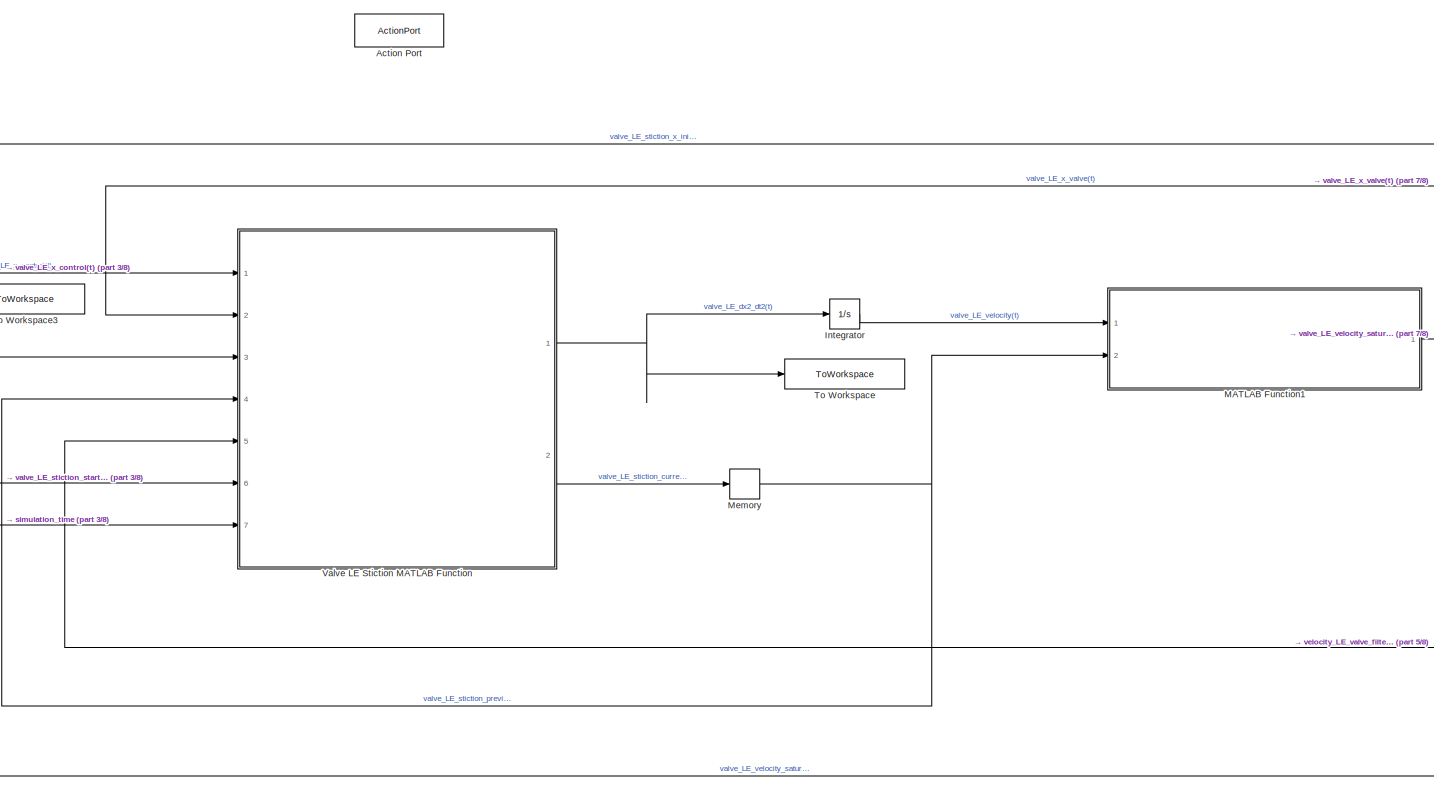
[diagram: Valve LE/Valve LE valve model/Stiction - part 1/8, left side, full height]
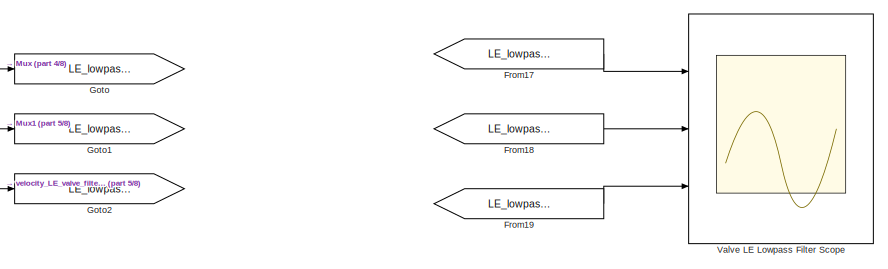
[diagram: Valve LE/Valve LE valve model/Stiction - part 2/8, top right region]
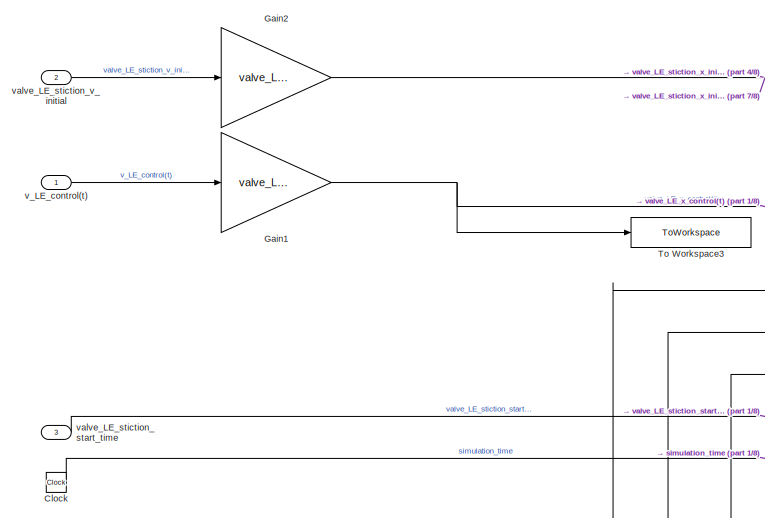
[diagram: Valve LE/Valve LE valve model/Stiction - part 3/8, middle left region]
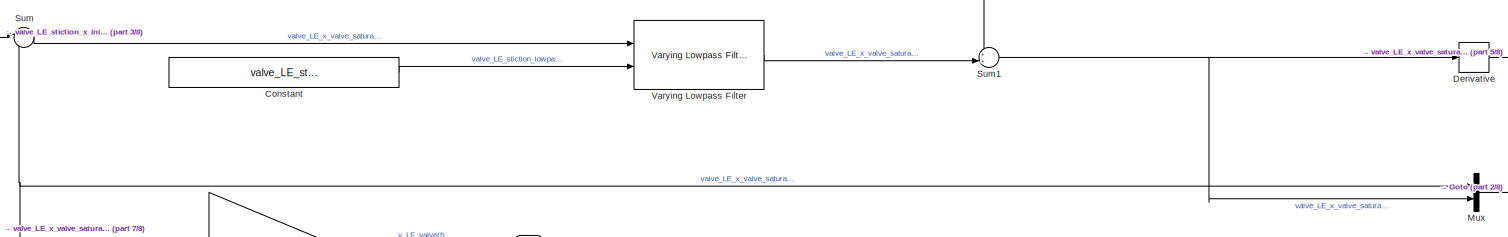
[diagram: Valve LE/Valve LE valve model/Stiction - part 4/8, top center region]
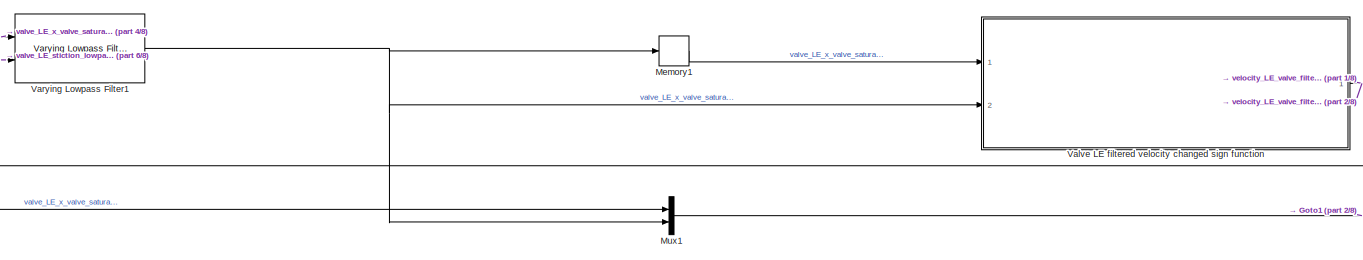
[diagram: Valve LE/Valve LE valve model/Stiction - part 5/8, middle right region]
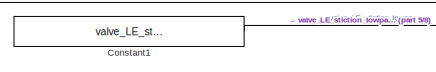
[diagram: Valve LE/Valve LE valve model/Stiction - part 6/8, top center region]
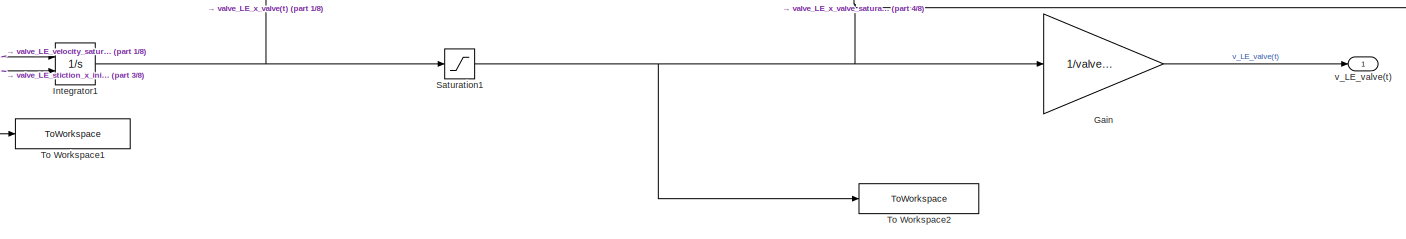
[diagram: Valve LE/Valve LE valve model/Stiction - part 7/8, central region]
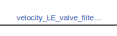
[diagram: Valve LE/Valve LE valve model/Stiction - part 8/8, bottom center region]
BLOCK [SubSystem] Valve LE/Valve LE valve model/Stiction
  Ports = [3, 1, 0, 0, 0, 0, 0, 1]
  RequestExecContextInheritance = off
  TreatAsAtomicUnit = on
BLOCK [ActionPort] Valve LE/Valve LE valve model/Stiction/Action Port
BLOCK [Clock] Valve LE/Valve LE valve model/Stiction/Clock
BLOCK [Constant] Valve LE/Valve LE valve model/Stiction/Constant
  Value = valve_LE_stiction_lowpass_filter_cutoff_frequency
BLOCK [Constant] Valve LE/Valve LE valve model/Stiction/Constant1
  Value = valve_LE_stiction_lowpass_filter_cutoff_frequency
BLOCK [Derivative] Valve LE/Valve LE valve model/Stiction/Derivative
BLOCK [From] Valve LE/Valve LE valve model/Stiction/From17
  GotoTag = LE_lowpass_filter_x_mux
  TagVisibility = global
BLOCK [From] Valve LE/Valve LE valve model/Stiction/From18
  GotoTag = LE_lowpass_filter_v_mux
  TagVisibility = global
BLOCK [From] Valve LE/Valve LE valve model/Stiction/From19
  GotoTag = LE_lowpass_filter_changed
  TagVisibility = global
BLOCK [Gain] Valve LE/Valve LE valve model/Stiction/Gain
  Gain = 1/valve_LE_stem_size
BLOCK [Gain] Valve LE/Valve LE valve model/Stiction/Gain1
  Gain = valve_LE_stem_size
BLOCK [Gain] Valve LE/Valve LE valve model/Stiction/Gain2
  Gain = valve_LE_stem_size
BLOCK [Goto] Valve LE/Valve LE valve model/Stiction/Goto
  GotoTag = LE_lowpass_filter_x_mux
  TagVisibility = global
BLOCK [Goto] Valve LE/Valve LE valve model/Stiction/Goto1
  GotoTag = LE_lowpass_filter_v_mux
  TagVisibility = global
BLOCK [Goto] Valve LE/Valve LE valve model/Stiction/Goto2
  GotoTag = LE_lowpass_filter_changed
  TagVisibility = global
BLOCK [Integrator] Valve LE/Valve LE valve model/Stiction/Integrator
  Ports = [1, 1]
BLOCK [Integrator] Valve LE/Valve LE valve model/Stiction/Integrator1
  InitialConditionSource = external
  Ports = [2, 1]
BLOCK [SubSystem] Valve LE/Valve LE valve model/Stiction/MATLAB Function1
  ErrorFcn = Stateflow.Translate.translate
  PermitHierarchicalResolution = ExplicitOnly
  Ports = [2, 1]
  RequestExecContextInheritance = off
  SFBlockType = MATLAB Function
  TreatAsAtomicUnit = on
BLOCK [Demux] Valve LE/Valve LE valve model/Stiction/MATLAB Function1/ Demux 
  Outputs = 1
  Ports = [1, 1]
BLOCK [S-Function] Valve LE/Valve LE valve model/Stiction/MATLAB Function1/ SFunction 
  EnableBusSupport = on
  FunctionName = sf_sfun
  PortCounts = [2 2]
  Ports = [2, 2]
  SFcnIsStateOwnerBlock = off
  SFunctionDeploymentMode = off
  Tag = Stateflow S-Function 11
BLOCK [Terminator] Valve LE/Valve LE valve model/Stiction/MATLAB Function1/ Terminator 
BLOCK [Inport] Valve LE/Valve LE valve model/Stiction/MATLAB Function1/valve_LE_stiction_previous_state
  Port = 2
BLOCK [Inport] Valve LE/Valve LE valve model/Stiction/MATLAB Function1/valve_LE_velocity
BLOCK [Outport] Valve LE/Valve LE valve model/Stiction/MATLAB Function1/valve_LE_velocity_saturated
BLOCK [Memory] Valve LE/Valve LE valve model/Stiction/Memory
BLOCK [Memory] Valve LE/Valve LE valve model/Stiction/Memory1
BLOCK [Mux] Valve LE/Valve LE valve model/Stiction/Mux
  DisplayOption = bar
  Inputs = 2
  Ports = [2, 1]
BLOCK [Mux] Valve LE/Valve LE valve model/Stiction/Mux1
  DisplayOption = bar
  Inputs = 2
  Ports = [2, 1]
BLOCK [Saturate] Valve LE/Valve LE valve model/Stiction/Saturation1
  LowerLimit = 0
  UpperLimit = valve_LE_stem_size
BLOCK [Sum] Valve LE/Valve LE valve model/Stiction/Sum
  Inputs = |-+
  Ports = [2, 1]
BLOCK [Sum] Valve LE/Valve LE valve model/Stiction/Sum1
  Inputs = ++|
  Ports = [2, 1]
BLOCK [ToWorkspace] Valve LE/Valve LE valve model/Stiction/To Workspace
  FixptAsFi = on
  MaxDataPoints = inf
  Ports = [1]
  SampleTime = -1
  SaveFormat = Timeseries
  VariableName = valve_LE_dx2_dt2
BLOCK [ToWorkspace] Valve LE/Valve LE valve model/Stiction/To Workspace1
  FixptAsFi = on
  MaxDataPoints = inf
  Ports = [1]
  SampleTime = -1
  SaveFormat = Timeseries
  VariableName = valve_LE_velocity
BLOCK [ToWorkspace] Valve LE/Valve LE valve model/Stiction/To Workspace2
  FixptAsFi = on
  MaxDataPoints = inf
  Ports = [1]
  SampleTime = -1
  SaveFormat = Timeseries
  VariableName = valve_LE_x_valve
BLOCK [ToWorkspace] Valve LE/Valve LE valve model/Stiction/To Workspace3
  FixptAsFi = on
  MaxDataPoints = inf
  Ports = [1]
  SampleTime = -1
  SaveFormat = Timeseries
  VariableName = valve_LE_x_control
BLOCK [Scope] Valve LE/Valve LE valve model/Stiction/Valve LE Lowpass Filter Scope
  Floating = off
  NumInputPorts = 3
  Ports = [3]
  ScopeSpecificationString = Simulink.scopes.TimeScopeBlockCfg('CurrentConfiguration', extmgr.ConfigurationSet(extmgr.Configuration('Core','General UI',true,'FigureColor',[1 1 1]),extmgr.Configuration('Core','Source UI',true),extmgr.Configuration('Sources','WiredSimulink',true,'DataLoggingVariableName','ScopeData2'),extmgr.Configuration('Visuals','Time Domain',true,'SerializedDisplays',{struct('MinYLimReal','0.0696','MaxYLimR...<+3303ch>
BLOCK [SubSystem] Valve LE/Valve LE valve model/Stiction/Valve LE Stiction MATLAB Function
  ErrorFcn = Stateflow.Translate.translate
  PermitHierarchicalResolution = ExplicitOnly
  Ports = [7, 2]
  RequestExecContextInheritance = off
  SFBlockType = MATLAB Function
  TreatAsAtomicUnit = on
BLOCK [Demux] Valve LE/Valve LE valve model/Stiction/Valve LE Stiction MATLAB Function/ Demux 
  Outputs = 1
  Ports = [1, 1]
BLOCK [S-Function] Valve LE/Valve LE valve model/Stiction/Valve LE Stiction MATLAB Function/ SFunction 
  EnableBusSupport = on
  FunctionName = sf_sfun
  Parameters = LOWPASS_FILTER_TUNING,valve_LE_F_c,valve_LE_F_s,valve_LE_F_v,valve_LE_area,valve_LE_k_over_A,valve_LE_k_spring,valve_LE_mass,valve_LE_stiction_start_buffer
  PortCounts = [7 3]
  Ports = [7, 3]
  SFcnIsStateOwnerBlock = off
  SFunctionDeploymentMode = off
  Tag = Stateflow S-Function 12
BLOCK [Terminator] Valve LE/Valve LE valve model/Stiction/Valve LE Stiction MATLAB Function/ Terminator 
BLOCK [Inport] Valve LE/Valve LE valve model/Stiction/Valve LE Stiction MATLAB Function/simulation_time
  Port = 7
BLOCK [Outport] Valve LE/Valve LE valve model/Stiction/Valve LE Stiction MATLAB Function/valve_LE_dx2_dt2
BLOCK [Outport] Valve LE/Valve LE valve model/Stiction/Valve LE Stiction MATLAB Function/valve_LE_stiction_current_state
  Port = 2
BLOCK [Inport] Valve LE/Valve LE valve model/Stiction/Valve LE Stiction MATLAB Function/valve_LE_stiction_previous_state
  Port = 4
BLOCK [Inport] Valve LE/Valve LE valve model/Stiction/Valve LE Stiction MATLAB Function/valve_LE_stiction_start_time
  Port = 6
BLOCK [Inport] Valve LE/Valve LE valve model/Stiction/Valve LE Stiction MATLAB Function/velocity_LE_valve
  Port = 3
BLOCK [Inport] Valve LE/Valve LE valve model/Stiction/Valve LE Stiction MATLAB Function/velocity_LE_valve_filtered_changed
  Port = 5
BLOCK [Inport] Valve LE/Valve LE valve model/Stiction/Valve LE Stiction MATLAB Function/x_LE_control
BLOCK [Inport] Valve LE/Valve LE valve model/Stiction/Valve LE Stiction MATLAB Function/x_LE_valve
  Port = 2
BLOCK [SubSystem] Valve LE/Valve LE valve model/Stiction/Valve LE filtered velocity changed sign function
  ErrorFcn = Stateflow.Translate.translate
  PermitHierarchicalResolution = ExplicitOnly
  Ports = [2, 1]
  RequestExecContextInheritance = off
  SFBlockType = MATLAB Function
  TreatAsAtomicUnit = on
BLOCK [Demux] Valve LE/Valve LE valve model/Stiction/Valve LE filtered velocity changed sign function/ Demux 
  Outputs = 1
  Ports = [1, 1]
BLOCK [S-Function] Valve LE/Valve LE valve model/Stiction/Valve LE filtered velocity changed sign function/ SFunction 
  EnableBusSupport = on
  FunctionName = sf_sfun
  Parameters = valve_LE_filtered_velocity_zero_tolerance
  PortCounts = [2 2]
  Ports = [2, 2]
  SFcnIsStateOwnerBlock = off
  SFunctionDeploymentMode = off
  Tag = Stateflow S-Function 13
BLOCK [Terminator] Valve LE/Valve LE valve model/Stiction/Valve LE filtered velocity changed sign function/ Terminator 
BLOCK [Outport] Valve LE/Valve LE valve model/Stiction/Valve LE filtered velocity changed sign function/velocity_LE_valve_filtered_changed
BLOCK [Inport] Valve LE/Valve LE valve model/Stiction/Valve LE filtered velocity changed sign function/velocity_LE_valve_filtered_current
  Port = 2
BLOCK [Inport] Valve LE/Valve LE valve model/Stiction/Valve LE filtered velocity changed sign function/velocity_LE_valve_filtered_previous
BLOCK [Reference] Valve LE/Valve LE valve model/Stiction/Varying Lowpass Filter  REF=cstblocks/Linear Parameter Varying/Varying Lowpass Filter
  Ports = [2, 1]
  SourceBlock = cstblocks/Linear Parameter Varying/Varying Lowpass Filter
  SourceProductBaseCode = CT
  SourceType = Varying Lowpass Filter
BLOCK [Reference] Valve LE/Valve LE valve model/Stiction/Varying Lowpass Filter1  REF=cstblocks/Linear Parameter Varying/Varying Lowpass Filter
  Ports = [2, 1]
  SourceBlock = cstblocks/Linear Parameter Varying/Varying Lowpass Filter
  SourceProductBaseCode = CT
  SourceType = Varying Lowpass Filter
BLOCK [Inport] Valve LE/Valve LE valve model/Stiction/v_LE_control(t)
BLOCK [Outport] Valve LE/Valve LE valve model/Stiction/v_LE_valve(t)
BLOCK [Inport] Valve LE/Valve LE valve model/Stiction/valve_LE_stiction_start_time
  Port = 3
BLOCK [Inport] Valve LE/Valve LE valve model/Stiction/valve_LE_stiction_v_initial
  Port = 2
BLOCK [SubSystem] Valve LE/Valve LE valve model/Stuck
  Ports = [2, 1, 0, 0, 0, 0, 0, 1]
  RequestExecContextInheritance = off
  TreatAsAtomicUnit = on
BLOCK [ActionPort] Valve LE/Valve LE valve model/Stuck/Action Port
BLOCK [Memory] Valve LE/Valve LE valve model/Stuck/Memory
  InitialCondition = vLE_ss
BLOCK [Switch] Valve LE/Valve LE valve model/Stuck/Switch
  Criteria = u2 > Threshold
  InputSameDT = off
  SaturateOnIntegerOverflow = off
BLOCK [Inport] Valve LE/Valve LE valve model/Stuck/v_LE_control(t)
BLOCK [Inport] Valve LE/Valve LE valve model/Stuck/v_LE_is_not_stuck(t)
  Port = 2
BLOCK [Outport] Valve LE/Valve LE valve model/Stuck/v_LE_valve(t)
BLOCK [ToWorkspace] Valve LE/Valve LE valve model/To Workspace
  FixptAsFi = on
  MaxDataPoints = inf
  Ports = [1]
  SampleTime = -1
  SaveFormat = Timeseries
  VariableName = valve_LE_state
BLOCK [ToWorkspace] Valve LE/Valve LE valve model/vLO_valve To Workspace
  FixptAsFi = on
  MaxDataPoints = inf
  Ports = [1]
  SampleTime = -1
  SaveFormat = Timeseries
  VariableName = vLE_valve
BLOCK [Inport] Valve LE/Valve LE valve model/v_LE_control(t)
BLOCK [Inport] Valve LE/Valve LE valve model/v_LE_is_not_stuck(t)
  Port = 3
BLOCK [Outport] Valve LE/Valve LE valve model/v_LE_valve(t)
BLOCK [Inport] Valve LE/Valve LE valve model/valve_LE_state
  Port = 2
BLOCK [Inport] Valve LE/Valve LE valve model/valve_LE_stiction_start_time
  Port = 5
BLOCK [Inport] Valve LE/Valve LE valve model/valve_LE_stiction_v_initial
  Port = 4
BLOCK [SubSystem] Valve LE/Variant Subsystem
  Ports = [2, 4]
  RequestExecContextInheritance = off
  Variant = on
BLOCK [SubSystem] Valve LE/Variant Subsystem/Valve LE State Custom
  Ports = [2, 4]
  RequestExecContextInheritance = off
  VariantControl = VALVE_LE_STATE_CUSTOM
BLOCK [SubSystem] Valve LE/Variant Subsystem/Valve LE State Custom/Valve LE Finite State Machine Custom
  ErrorFcn = Stateflow.Translate.translate
  NameLocation = top
  PermitHierarchicalResolution = ExplicitOnly
  Ports = [2, 4]
  RequestExecContextInheritance = off
  SFBlockType = Chart
  TreatAsAtomicUnit = on
BLOCK [Demux] Valve LE/Variant Subsystem/Valve LE State Custom/Valve LE Finite State Machine Custom/ Demux 
  Outputs = 1
  Ports = [1, 1]
BLOCK [S-Function] Valve LE/Variant Subsystem/Valve LE State Custom/Valve LE Finite State Machine Custom/ SFunction 
  EnableBusSupport = on
  FunctionName = sf_sfun
  Parameters = valve_LE_fault_start_time,valve_LE_fault_stop_time
  PortCounts = [2 5]
  Ports = [2, 5]
  SFcnIsStateOwnerBlock = off
  SFunctionDeploymentMode = off
  Tag = Stateflow S-Function 19
BLOCK [Terminator] Valve LE/Variant Subsystem/Valve LE State Custom/Valve LE Finite State Machine Custom/ Terminator 
BLOCK [Inport] Valve LE/Variant Subsystem/Valve LE State Custom/Valve LE Finite State Machine Custom/simulation_time
BLOCK [Outport] Valve LE/Variant Subsystem/Valve LE State Custom/Valve LE Finite State Machine Custom/v_LE_is_not_stuck
  Port = 2
BLOCK [Inport] Valve LE/Variant Subsystem/Valve LE State Custom/Valve LE Finite State Machine Custom/v_LE_valve_previous
  Port = 2
BLOCK [Outport] Valve LE/Variant Subsystem/Valve LE State Custom/Valve LE Finite State Machine Custom/valve_LE_state
BLOCK [Outport] Valve LE/Variant Subsystem/Valve LE State Custom/Valve LE Finite State Machine Custom/valve_LE_stiction_start_time
  Port = 4
BLOCK [Outport] Valve LE/Variant Subsystem/Valve LE State Custom/Valve LE Finite State Machine Custom/valve_LE_stiction_v_initial
  Port = 3
BLOCK [Inport] Valve LE/Variant Subsystem/Valve LE State Custom/simulation_time
BLOCK [Outport] Valve LE/Variant Subsystem/Valve LE State Custom/v_LE_is_not_stuck
  Port = 2
BLOCK [Inport] Valve LE/Variant Subsystem/Valve LE State Custom/v_LE_valve_previous
  Port = 2
BLOCK [Outport] Valve LE/Variant Subsystem/Valve LE State Custom/valve_LE_state
BLOCK [Outport] Valve LE/Variant Subsystem/Valve LE State Custom/valve_LE_stiction_start_time
  Port = 4
BLOCK [Outport] Valve LE/Variant Subsystem/Valve LE State Custom/valve_LE_stiction_v_initial
  Port = 3
BLOCK [SubSystem] Valve LE/Variant Subsystem/Valve LE State Normal
  Ports = [2, 4]
  RequestExecContextInheritance = off
  VariantControl = VALVE_LE_STATE_NORMAL
BLOCK [SubSystem] Valve LE/Variant Subsystem/Valve LE State Normal/Valve LE Finite State Machine Normal
  ErrorFcn = Stateflow.Translate.translate
  NameLocation = top
  PermitHierarchicalResolution = ExplicitOnly
  Ports = [2, 4]
  RequestExecContextInheritance = off
  SFBlockType = Chart
  TreatAsAtomicUnit = on
BLOCK [Demux] Valve LE/Variant Subsystem/Valve LE State Normal/Valve LE Finite State Machine Normal/ Demux 
  Outputs = 1
  Ports = [1, 1]
BLOCK [S-Function] Valve LE/Variant Subsystem/Valve LE State Normal/Valve LE Finite State Machine Normal/ SFunction 
  EnableBusSupport = on
  FunctionName = sf_sfun
  Parameters = valve_LE_fault_start_time,valve_LE_fault_stop_time
  PortCounts = [2 5]
  Ports = [2, 5]
  SFcnIsStateOwnerBlock = off
  SFunctionDeploymentMode = off
  Tag = Stateflow S-Function 14
BLOCK [Terminator] Valve LE/Variant Subsystem/Valve LE State Normal/Valve LE Finite State Machine Normal/ Terminator 
BLOCK [Inport] Valve LE/Variant Subsystem/Valve LE State Normal/Valve LE Finite State Machine Normal/simulation_time
BLOCK [Outport] Valve LE/Variant Subsystem/Valve LE State Normal/Valve LE Finite State Machine Normal/v_LE_is_not_stuck
  Port = 2
BLOCK [Inport] Valve LE/Variant Subsystem/Valve LE State Normal/Valve LE Finite State Machine Normal/v_LE_valve_previous
  Port = 2
BLOCK [Outport] Valve LE/Variant Subsystem/Valve LE State Normal/Valve LE Finite State Machine Normal/valve_LE_state
BLOCK [Outport] Valve LE/Variant Subsystem/Valve LE State Normal/Valve LE Finite State Machine Normal/valve_LE_stiction_start_time
  Port = 4
BLOCK [Outport] Valve LE/Variant Subsystem/Valve LE State Normal/Valve LE Finite State Machine Normal/valve_LE_stiction_v_initial
  Port = 3
BLOCK [Inport] Valve LE/Variant Subsystem/Valve LE State Normal/simulation_time
BLOCK [Outport] Valve LE/Variant Subsystem/Valve LE State Normal/v_LE_is_not_stuck
  Port = 2
BLOCK [Inport] Valve LE/Variant Subsystem/Valve LE State Normal/v_LE_valve_previous
  Port = 2
BLOCK [Outport] Valve LE/Variant Subsystem/Valve LE State Normal/valve_LE_state
BLOCK [Outport] Valve LE/Variant Subsystem/Valve LE State Normal/valve_LE_stiction_start_time
  Port = 4
BLOCK [Outport] Valve LE/Variant Subsystem/Valve LE State Normal/valve_LE_stiction_v_initial
  Port = 3
BLOCK [SubSystem] Valve LE/Variant Subsystem/Valve LE State Stiction
  Ports = [2, 4]
  RequestExecContextInheritance = off
  VariantControl = VALVE_LE_STATE_STICTION
BLOCK [SubSystem] Valve LE/Variant Subsystem/Valve LE State Stiction/Valve LE Finite State Machine Stiction
  ErrorFcn = Stateflow.Translate.translate
  NameLocation = top
  PermitHierarchicalResolution = ExplicitOnly
  Ports = [2, 4]
  RequestExecContextInheritance = off
  SFBlockType = Chart
  TreatAsAtomicUnit = on
BLOCK [Demux] Valve LE/Variant Subsystem/Valve LE State Stiction/Valve LE Finite State Machine Stiction/ Demux 
  Outputs = 1
  Ports = [1, 1]
BLOCK [S-Function] Valve LE/Variant Subsystem/Valve LE State Stiction/Valve LE Finite State Machine Stiction/ SFunction 
  EnableBusSupport = on
  FunctionName = sf_sfun
  Parameters = valve_LE_fault_start_time,valve_LE_fault_stop_time
  PortCounts = [2 5]
  Ports = [2, 5]
  SFcnIsStateOwnerBlock = off
  SFunctionDeploymentMode = off
  Tag = Stateflow S-Function 15
BLOCK [Terminator] Valve LE/Variant Subsystem/Valve LE State Stiction/Valve LE Finite State Machine Stiction/ Terminator 
BLOCK [Inport] Valve LE/Variant Subsystem/Valve LE State Stiction/Valve LE Finite State Machine Stiction/simulation_time
BLOCK [Outport] Valve LE/Variant Subsystem/Valve LE State Stiction/Valve LE Finite State Machine Stiction/v_LE_is_not_stuck
  Port = 2
BLOCK [Inport] Valve LE/Variant Subsystem/Valve LE State Stiction/Valve LE Finite State Machine Stiction/v_LE_valve_previous
  Port = 2
BLOCK [Outport] Valve LE/Variant Subsystem/Valve LE State Stiction/Valve LE Finite State Machine Stiction/valve_LE_state
BLOCK [Outport] Valve LE/Variant Subsystem/Valve LE State Stiction/Valve LE Finite State Machine Stiction/valve_LE_stiction_start_time
  Port = 4
BLOCK [Outport] Valve LE/Variant Subsystem/Valve LE State Stiction/Valve LE Finite State Machine Stiction/valve_LE_stiction_v_initial
  Port = 3
BLOCK [Inport] Valve LE/Variant Subsystem/Valve LE State Stiction/simulation_time
BLOCK [Outport] Valve LE/Variant Subsystem/Valve LE State Stiction/v_LE_is_not_stuck
  Port = 2
BLOCK [Inport] Valve LE/Variant Subsystem/Valve LE State Stiction/v_LE_valve_previous
  Port = 2
BLOCK [Outport] Valve LE/Variant Subsystem/Valve LE State Stiction/valve_LE_state
BLOCK [Outport] Valve LE/Variant Subsystem/Valve LE State Stiction/valve_LE_stiction_start_time
  Port = 4
BLOCK [Outport] Valve LE/Variant Subsystem/Valve LE State Stiction/valve_LE_stiction_v_initial
  Port = 3
BLOCK [SubSystem] Valve LE/Variant Subsystem/Valve LE State Stuck
  Ports = [2, 4]
  RequestExecContextInheritance = off
  VariantControl = VALVE_LE_STATE_STUCK
BLOCK [SubSystem] Valve LE/Variant Subsystem/Valve LE State Stuck/Valve LE Finite State Machine Stuck
  ErrorFcn = Stateflow.Translate.translate
  NameLocation = top
  PermitHierarchicalResolution = ExplicitOnly
  Ports = [2, 4]
  RequestExecContextInheritance = off
  SFBlockType = Chart
  TreatAsAtomicUnit = on
BLOCK [Demux] Valve LE/Variant Subsystem/Valve LE State Stuck/Valve LE Finite State Machine Stuck/ Demux 
  Outputs = 1
  Ports = [1, 1]
BLOCK [S-Function] Valve LE/Variant Subsystem/Valve LE State Stuck/Valve LE Finite State Machine Stuck/ SFunction 
  EnableBusSupport = on
  FunctionName = sf_sfun
  Parameters = valve_LE_fault_start_time,valve_LE_fault_stop_time
  PortCounts = [2 5]
  Ports = [2, 5]
  SFcnIsStateOwnerBlock = off
  SFunctionDeploymentMode = off
  Tag = Stateflow S-Function 16
BLOCK [Terminator] Valve LE/Variant Subsystem/Valve LE State Stuck/Valve LE Finite State Machine Stuck/ Terminator 
BLOCK [Inport] Valve LE/Variant Subsystem/Valve LE State Stuck/Valve LE Finite State Machine Stuck/simulation_time
BLOCK [Outport] Valve LE/Variant Subsystem/Valve LE State Stuck/Valve LE Finite State Machine Stuck/v_LE_is_not_stuck
  Port = 2
BLOCK [Inport] Valve LE/Variant Subsystem/Valve LE State Stuck/Valve LE Finite State Machine Stuck/v_LE_valve_previous
  Port = 2
BLOCK [Outport] Valve LE/Variant Subsystem/Valve LE State Stuck/Valve LE Finite State Machine Stuck/valve_LE_state
BLOCK [Outport] Valve LE/Variant Subsystem/Valve LE State Stuck/Valve LE Finite State Machine Stuck/valve_LE_stiction_start_time
  Port = 4
BLOCK [Outport] Valve LE/Variant Subsystem/Valve LE State Stuck/Valve LE Finite State Machine Stuck/valve_LE_stiction_v_initial
  Port = 3
BLOCK [Inport] Valve LE/Variant Subsystem/Valve LE State Stuck/simulation_time
BLOCK [Outport] Valve LE/Variant Subsystem/Valve LE State Stuck/v_LE_is_not_stuck
  Port = 2
BLOCK [Inport] Valve LE/Variant Subsystem/Valve LE State Stuck/v_LE_valve_previous
  Port = 2
BLOCK [Outport] Valve LE/Variant Subsystem/Valve LE State Stuck/valve_LE_state
BLOCK [Outport] Valve LE/Variant Subsystem/Valve LE State Stuck/valve_LE_stiction_start_time
  Port = 4
BLOCK [Outport] Valve LE/Variant Subsystem/Valve LE State Stuck/valve_LE_stiction_v_initial
  Port = 3
BLOCK [Inport] Valve LE/Variant Subsystem/simulation_time
BLOCK [Outport] Valve LE/Variant Subsystem/v_LE_is_not_stuck
  Port = 2
BLOCK [Inport] Valve LE/Variant Subsystem/v_LE_valve_previous
  Port = 2
BLOCK [Outport] Valve LE/Variant Subsystem/valve_LE_state
BLOCK [Outport] Valve LE/Variant Subsystem/valve_LE_stiction_start_time
  Port = 4
BLOCK [Outport] Valve LE/Variant Subsystem/valve_LE_stiction_v_initial
  Port = 3
BLOCK [Outport] Valve LE/fLE(t)
BLOCK [Inport] Valve LE/vLE_control_saturated(t)
BLOCK [SubSystem] Valve LO
  PortSchema = {"entries":[{"content":{"sides":[{"content":{"connectorIds":[]},"type":"ConnectorPlacement.EquallySpacedRectSide","uuid":"6fe3adae-c1d5-49c5-9f64-d9648a674ed6"},{"content":{"connectorIds":["Out1"],"side":"RIGHT"},"type":"ConnectorPlacement.EquallySpacedRectSide","uuid":"5144e458-c494-45ed-932f-5f38aa1be950"},{"content":{"connectorIds":["In1"],"side":"TOP"},"type":"ConnectorPlacement.EquallySpacedR...<+240ch>
  Ports = [1, 1]
  RequestExecContextInheritance = off
BLOCK [Memory] Valve LO/Memory
  InitialCondition = vLO_ss
BLOCK [Clock] Valve LO/Simulation time
BLOCK [SubSystem] Valve LO/Valve LO flow model
  Ports = [1, 1]
  RequestExecContextInheritance = off
BLOCK [Gain] Valve LO/Valve LO flow model/fLO Gain
  Gain = fLO_max
BLOCK [ToWorkspace] Valve LO/Valve LO flow model/fLO To Workspace
  FixptAsFi = on
  MaxDataPoints = inf
  Ports = [1]
  SampleTime = -1
  SaveFormat = Timeseries
  VariableName = fLO
BLOCK [Outport] Valve LO/Valve LO flow model/fLO(t)
BLOCK [Inport] Valve LO/Valve LO flow model/vLO_valve(t)
BLOCK [SubSystem] Valve LO/Valve LO valve model
  PortSchema = {"entries":[{"content":{"sides":[{"content":{"connectorIds":["In1"]},"type":"ConnectorPlacement.EquallySpacedRectSide","uuid":"2e9f031d-8496-4052-a2e0-829d2345863a"},{"content":{"connectorIds":["Out1"],"side":"RIGHT"},"type":"ConnectorPlacement.EquallySpacedRectSide","uuid":"38b5eb17-cc51-4fa3-9394-ca0ed547bb78"},{"content":{"connectorIds":["In2","In3","In4","In5"],"side":"TOP"},"type":"ConnectorP...<+263ch>
  Ports = [5, 1]
  RequestExecContextInheritance = off
BLOCK [Goto] Valve LO/Valve LO valve model/Goto
  GotoTag = v_LO_valve
  TagVisibility = global
BLOCK [Goto] Valve LO/Valve LO valve model/Goto1
  GotoTag = valve_LO_state
  TagVisibility = global
BLOCK [If] Valve LO/Valve LO valve model/If
  ElseIfExpressions = u1 == 1, u1 == 2
  IfExpression = u1 == 0
  Ports = [1, 3]
  ShowElse = off
BLOCK [Merge] Valve LO/Valve LO valve model/Merge
  Inputs = 3
  Ports = [3, 1]
BLOCK [SubSystem] Valve LO/Valve LO valve model/Normal Operating Conditions
  Ports = [1, 1, 0, 0, 0, 0, 0, 1]
  RequestExecContextInheritance = off
  TreatAsAtomicUnit = on
BLOCK [ActionPort] Valve LO/Valve LO valve model/Normal Operating Conditions/Action Port
  ActionPortLabel = if(u1 == 0)
BLOCK [Gain] Valve LO/Valve LO valve model/Normal Operating Conditions/LO Valve Model
BLOCK [Inport] Valve LO/Valve LO valve model/Normal Operating Conditions/v_LO_control(t)
BLOCK [Outport] Valve LO/Valve LO valve model/Normal Operating Conditions/v_LO_valve(t)
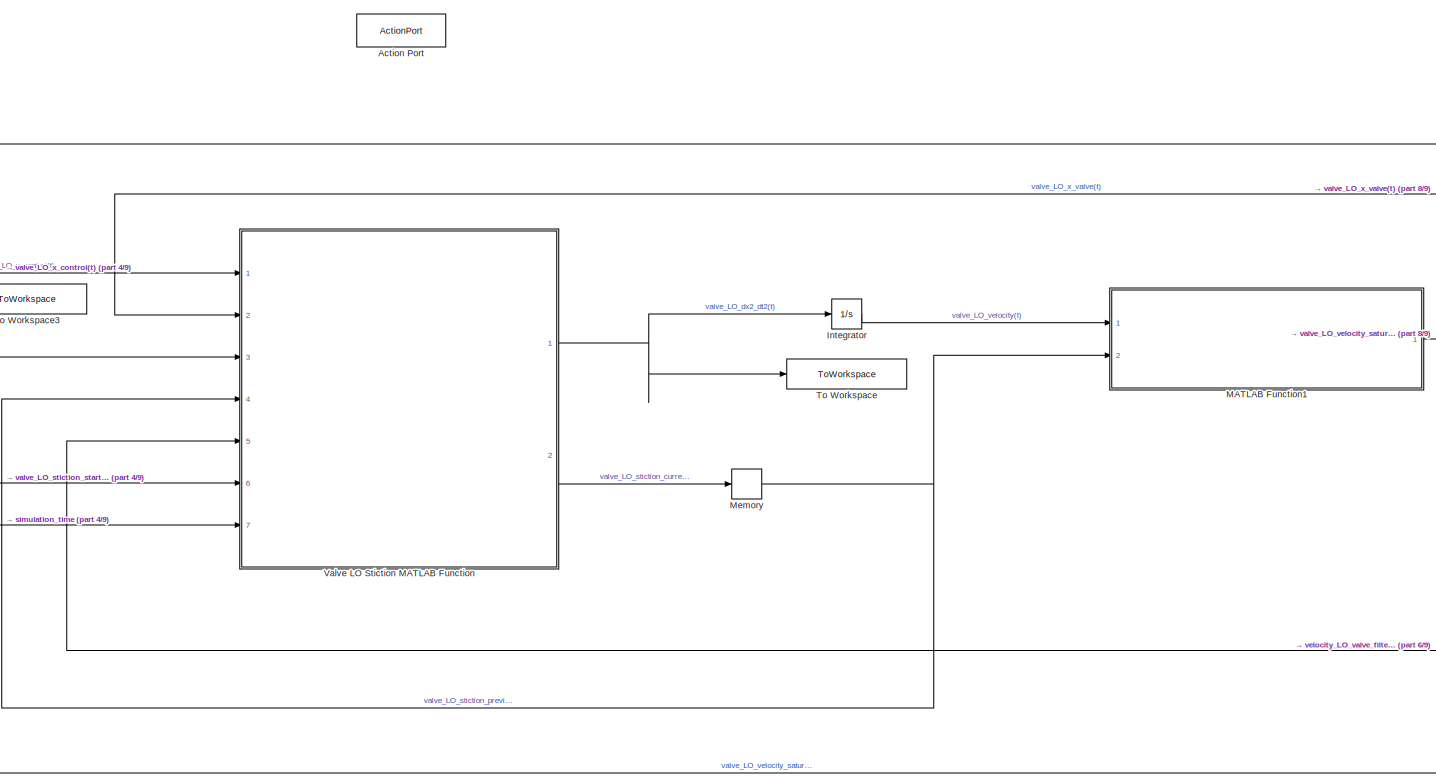
[diagram: Valve LO/Valve LO valve model/Stiction - part 1/9, left side, full height]
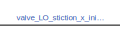
[diagram: Valve LO/Valve LO valve model/Stiction - part 2/9, top center region]
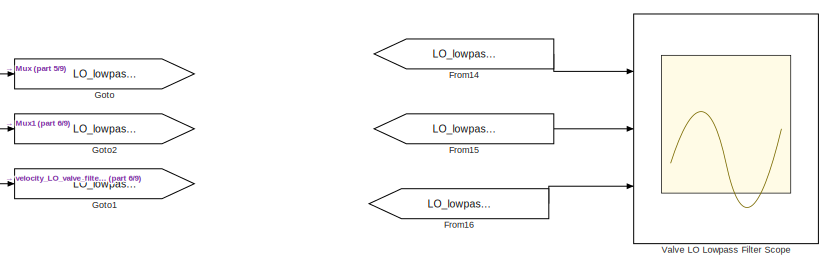
[diagram: Valve LO/Valve LO valve model/Stiction - part 3/9, top right region]
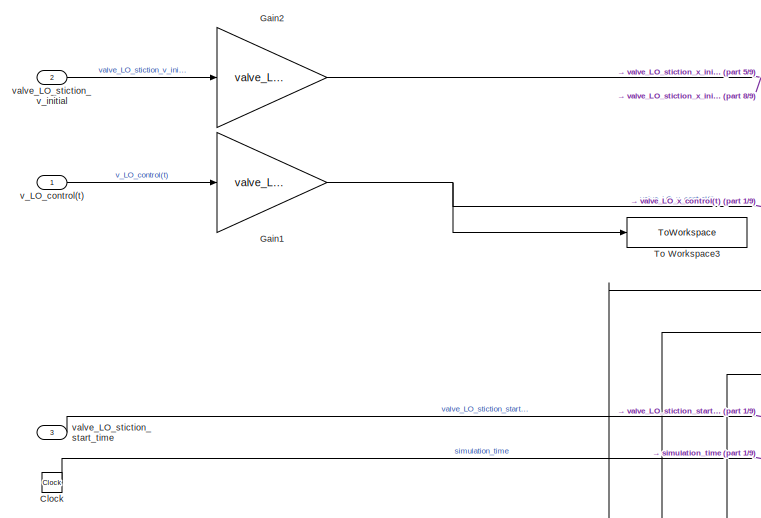
[diagram: Valve LO/Valve LO valve model/Stiction - part 4/9, middle left region]
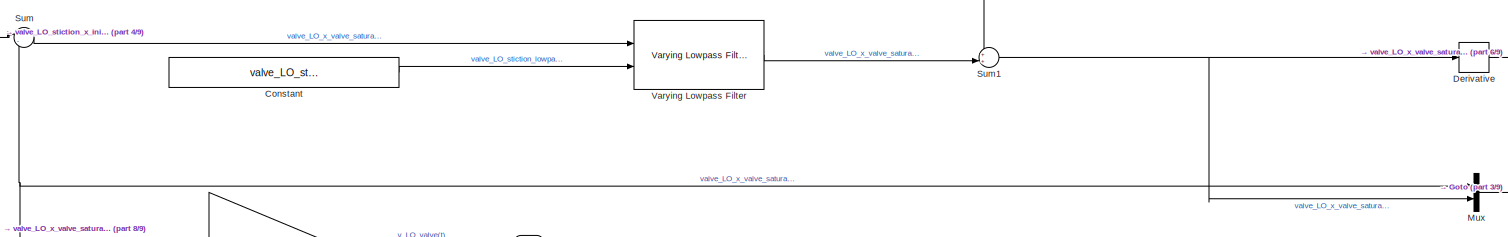
[diagram: Valve LO/Valve LO valve model/Stiction - part 5/9, top center region]
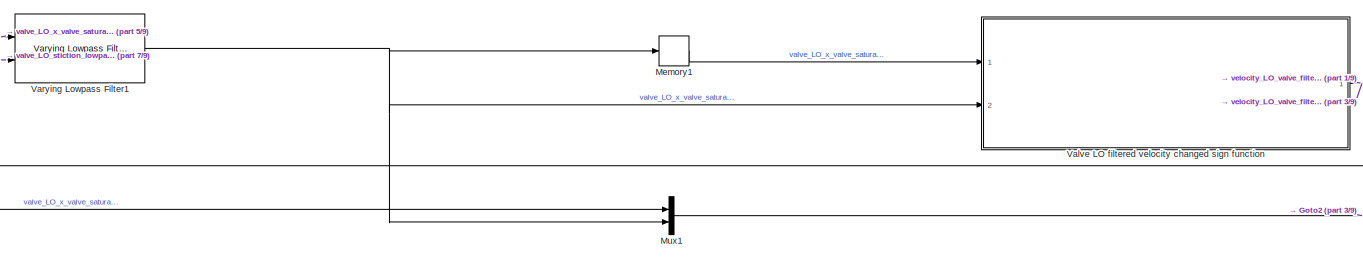
[diagram: Valve LO/Valve LO valve model/Stiction - part 6/9, middle right region]
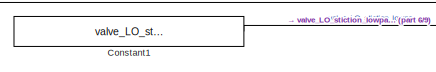
[diagram: Valve LO/Valve LO valve model/Stiction - part 7/9, top center region]
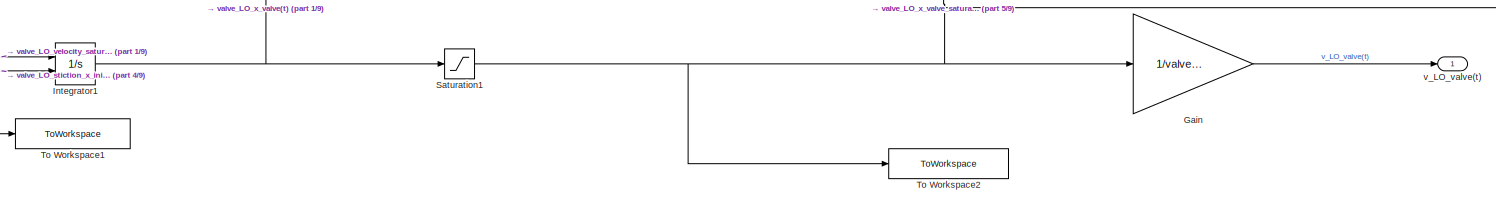
[diagram: Valve LO/Valve LO valve model/Stiction - part 8/9, central region]
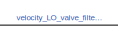
[diagram: Valve LO/Valve LO valve model/Stiction - part 9/9, bottom center region]
BLOCK [SubSystem] Valve LO/Valve LO valve model/Stiction
  Ports = [3, 1, 0, 0, 0, 0, 0, 1]
  RequestExecContextInheritance = off
  TreatAsAtomicUnit = on
BLOCK [ActionPort] Valve LO/Valve LO valve model/Stiction/Action Port
  ActionPortLabel = elseif( u1 == 2)
BLOCK [Clock] Valve LO/Valve LO valve model/Stiction/Clock
BLOCK [Constant] Valve LO/Valve LO valve model/Stiction/Constant
  Value = valve_LO_stiction_lowpass_filter_cutoff_frequency
BLOCK [Constant] Valve LO/Valve LO valve model/Stiction/Constant1
  Value = valve_LO_stiction_lowpass_filter_cutoff_frequency
BLOCK [Derivative] Valve LO/Valve LO valve model/Stiction/Derivative
BLOCK [From] Valve LO/Valve LO valve model/Stiction/From14
  GotoTag = LO_lowpass_filter_x_mux
  TagVisibility = global
BLOCK [From] Valve LO/Valve LO valve model/Stiction/From15
  GotoTag = LO_lowpass_filter_v_mux
  TagVisibility = global
BLOCK [From] Valve LO/Valve LO valve model/Stiction/From16
  GotoTag = LO_lowpass_filter_changed
  TagVisibility = global
BLOCK [Gain] Valve LO/Valve LO valve model/Stiction/Gain
  Gain = 1/valve_LO_stem_size
BLOCK [Gain] Valve LO/Valve LO valve model/Stiction/Gain1
  Gain = valve_LO_stem_size
BLOCK [Gain] Valve LO/Valve LO valve model/Stiction/Gain2
  Gain = valve_LO_stem_size
BLOCK [Goto] Valve LO/Valve LO valve model/Stiction/Goto
  GotoTag = LO_lowpass_filter_x_mux
  TagVisibility = global
BLOCK [Goto] Valve LO/Valve LO valve model/Stiction/Goto1
  GotoTag = LO_lowpass_filter_changed
  TagVisibility = global
BLOCK [Goto] Valve LO/Valve LO valve model/Stiction/Goto2
  GotoTag = LO_lowpass_filter_v_mux
  TagVisibility = global
BLOCK [Integrator] Valve LO/Valve LO valve model/Stiction/Integrator
  Ports = [1, 1]
BLOCK [Integrator] Valve LO/Valve LO valve model/Stiction/Integrator1
  InitialConditionSource = external
  Ports = [2, 1]
BLOCK [SubSystem] Valve LO/Valve LO valve model/Stiction/MATLAB Function1
  ErrorFcn = Stateflow.Translate.translate
  PermitHierarchicalResolution = ExplicitOnly
  Ports = [2, 1]
  RequestExecContextInheritance = off
  SFBlockType = MATLAB Function
  TreatAsAtomicUnit = on
BLOCK [Demux] Valve LO/Valve LO valve model/Stiction/MATLAB Function1/ Demux 
  Outputs = 1
  Ports = [1, 1]
BLOCK [S-Function] Valve LO/Valve LO valve model/Stiction/MATLAB Function1/ SFunction 
  EnableBusSupport = on
  FunctionName = sf_sfun
  PortCounts = [2 2]
  Ports = [2, 2]
  SFcnIsStateOwnerBlock = off
  SFunctionDeploymentMode = off
  Tag = Stateflow S-Function 8
BLOCK [Terminator] Valve LO/Valve LO valve model/Stiction/MATLAB Function1/ Terminator 
BLOCK [Inport] Valve LO/Valve LO valve model/Stiction/MATLAB Function1/valve_LO_stiction_previous_state
  Port = 2
BLOCK [Inport] Valve LO/Valve LO valve model/Stiction/MATLAB Function1/valve_LO_velocity
BLOCK [Outport] Valve LO/Valve LO valve model/Stiction/MATLAB Function1/valve_LO_velocity_saturated
BLOCK [Memory] Valve LO/Valve LO valve model/Stiction/Memory
BLOCK [Memory] Valve LO/Valve LO valve model/Stiction/Memory1
BLOCK [Mux] Valve LO/Valve LO valve model/Stiction/Mux
  DisplayOption = bar
  Inputs = 2
  Ports = [2, 1]
BLOCK [Mux] Valve LO/Valve LO valve model/Stiction/Mux1
  DisplayOption = bar
  Inputs = 2
  Ports = [2, 1]
BLOCK [Saturate] Valve LO/Valve LO valve model/Stiction/Saturation1
  LowerLimit = 0
  UpperLimit = valve_LO_stem_size
BLOCK [Sum] Valve LO/Valve LO valve model/Stiction/Sum
  Inputs = |-+
  Ports = [2, 1]
BLOCK [Sum] Valve LO/Valve LO valve model/Stiction/Sum1
  Inputs = ++|
  Ports = [2, 1]
BLOCK [ToWorkspace] Valve LO/Valve LO valve model/Stiction/To Workspace
  FixptAsFi = on
  MaxDataPoints = inf
  Ports = [1]
  SampleTime = -1
  SaveFormat = Timeseries
  VariableName = valve_LO_dx2_dt2
BLOCK [ToWorkspace] Valve LO/Valve LO valve model/Stiction/To Workspace1
  FixptAsFi = on
  MaxDataPoints = inf
  Ports = [1]
  SampleTime = -1
  SaveFormat = Timeseries
  VariableName = valve_LO_velocity
BLOCK [ToWorkspace] Valve LO/Valve LO valve model/Stiction/To Workspace2
  FixptAsFi = on
  MaxDataPoints = inf
  Ports = [1]
  SampleTime = -1
  SaveFormat = Timeseries
  VariableName = valve_LO_x_valve
BLOCK [ToWorkspace] Valve LO/Valve LO valve model/Stiction/To Workspace3
  FixptAsFi = on
  MaxDataPoints = inf
  Ports = [1]
  SampleTime = -1
  SaveFormat = Timeseries
  VariableName = valve_LO_x_control
BLOCK [Scope] Valve LO/Valve LO valve model/Stiction/Valve LO Lowpass Filter Scope
  Floating = off
  NumInputPorts = 3
  Ports = [3]
  ScopeSpecificationString = Simulink.scopes.TimeScopeBlockCfg('CurrentConfiguration', extmgr.ConfigurationSet(extmgr.Configuration('Core','General UI',true,'FigureColor',[1 1 1]),extmgr.Configuration('Core','Source UI',true),extmgr.Configuration('Sources','WiredSimulink',true,'DataLoggingVariableName','ScopeData1'),extmgr.Configuration('Visuals','Time Domain',true,'SerializedDisplays',{struct('MinYLimReal','0.0696','MaxYLimR...<+4533ch>
BLOCK [SubSystem] Valve LO/Valve LO valve model/Stiction/Valve LO Stiction MATLAB Function
  ErrorFcn = Stateflow.Translate.translate
  PermitHierarchicalResolution = ExplicitOnly
  Ports = [7, 2]
  RequestExecContextInheritance = off
  SFBlockType = MATLAB Function
  TreatAsAtomicUnit = on
BLOCK [Demux] Valve LO/Valve LO valve model/Stiction/Valve LO Stiction MATLAB Function/ Demux 
  Outputs = 1
  Ports = [1, 1]
BLOCK [S-Function] Valve LO/Valve LO valve model/Stiction/Valve LO Stiction MATLAB Function/ SFunction 
  EnableBusSupport = on
  FunctionName = sf_sfun
  Parameters = LOWPASS_FILTER_TUNING,valve_LO_F_c,valve_LO_F_s,valve_LO_F_v,valve_LO_area,valve_LO_k_over_A,valve_LO_k_spring,valve_LO_mass,valve_LO_stiction_start_buffer
  PortCounts = [7 3]
  Ports = [7, 3]
  SFcnIsStateOwnerBlock = off
  SFunctionDeploymentMode = off
  Tag = Stateflow S-Function 6
BLOCK [Terminator] Valve LO/Valve LO valve model/Stiction/Valve LO Stiction MATLAB Function/ Terminator 
BLOCK [Inport] Valve LO/Valve LO valve model/Stiction/Valve LO Stiction MATLAB Function/simulation_time
  Port = 7
BLOCK [Outport] Valve LO/Valve LO valve model/Stiction/Valve LO Stiction MATLAB Function/valve_LO_dx2_dt2
BLOCK [Outport] Valve LO/Valve LO valve model/Stiction/Valve LO Stiction MATLAB Function/valve_LO_stiction_current_state
  Port = 2
BLOCK [Inport] Valve LO/Valve LO valve model/Stiction/Valve LO Stiction MATLAB Function/valve_LO_stiction_previous_state
  Port = 4
BLOCK [Inport] Valve LO/Valve LO valve model/Stiction/Valve LO Stiction MATLAB Function/valve_LO_stiction_start_time
  Port = 6
BLOCK [Inport] Valve LO/Valve LO valve model/Stiction/Valve LO Stiction MATLAB Function/velocity_LO_valve
  Port = 3
BLOCK [Inport] Valve LO/Valve LO valve model/Stiction/Valve LO Stiction MATLAB Function/velocity_LO_valve_filtered_changed
  Port = 5
BLOCK [Inport] Valve LO/Valve LO valve model/Stiction/Valve LO Stiction MATLAB Function/x_LO_control
BLOCK [Inport] Valve LO/Valve LO valve model/Stiction/Valve LO Stiction MATLAB Function/x_LO_valve
  Port = 2
BLOCK [SubSystem] Valve LO/Valve LO valve model/Stiction/Valve LO filtered velocity changed sign function
  ErrorFcn = Stateflow.Translate.translate
  PermitHierarchicalResolution = ExplicitOnly
  Ports = [2, 1]
  RequestExecContextInheritance = off
  SFBlockType = MATLAB Function
  TreatAsAtomicUnit = on
BLOCK [Demux] Valve LO/Valve LO valve model/Stiction/Valve LO filtered velocity changed sign function/ Demux 
  Outputs = 1
  Ports = [1, 1]
BLOCK [S-Function] Valve LO/Valve LO valve model/Stiction/Valve LO filtered velocity changed sign function/ SFunction 
  EnableBusSupport = on
  FunctionName = sf_sfun
  Parameters = valve_LO_filtered_velocity_zero_tolerance
  PortCounts = [2 2]
  Ports = [2, 2]
  SFcnIsStateOwnerBlock = off
  SFunctionDeploymentMode = off
  Tag = Stateflow S-Function 7
BLOCK [Terminator] Valve LO/Valve LO valve model/Stiction/Valve LO filtered velocity changed sign function/ Terminator 
BLOCK [Outport] Valve LO/Valve LO valve model/Stiction/Valve LO filtered velocity changed sign function/velocity_LO_valve_filtered_changed
BLOCK [Inport] Valve LO/Valve LO valve model/Stiction/Valve LO filtered velocity changed sign function/velocity_LO_valve_filtered_current
  Port = 2
BLOCK [Inport] Valve LO/Valve LO valve model/Stiction/Valve LO filtered velocity changed sign function/velocity_LO_valve_filtered_previous
BLOCK [Reference] Valve LO/Valve LO valve model/Stiction/Varying Lowpass Filter  REF=cstblocks/Linear Parameter Varying/Varying Lowpass Filter
  Ports = [2, 1]
  SourceBlock = cstblocks/Linear Parameter Varying/Varying Lowpass Filter
  SourceProductBaseCode = CT
  SourceType = Varying Lowpass Filter
BLOCK [Reference] Valve LO/Valve LO valve model/Stiction/Varying Lowpass Filter1  REF=cstblocks/Linear Parameter Varying/Varying Lowpass Filter
  Ports = [2, 1]
  SourceBlock = cstblocks/Linear Parameter Varying/Varying Lowpass Filter
  SourceProductBaseCode = CT
  SourceType = Varying Lowpass Filter
BLOCK [Inport] Valve LO/Valve LO valve model/Stiction/v_LO_control(t)
BLOCK [Outport] Valve LO/Valve LO valve model/Stiction/v_LO_valve(t)
BLOCK [Inport] Valve LO/Valve LO valve model/Stiction/valve_LO_stiction_start_time
  Port = 3
BLOCK [Inport] Valve LO/Valve LO valve model/Stiction/valve_LO_stiction_v_initial
  Port = 2
BLOCK [SubSystem] Valve LO/Valve LO valve model/Stuck
  Ports = [2, 1, 0, 0, 0, 0, 0, 1]
  RequestExecContextInheritance = off
  TreatAsAtomicUnit = on
BLOCK [ActionPort] Valve LO/Valve LO valve model/Stuck/Action Port
  ActionPortLabel = elseif(u1 == 1)
BLOCK [Memory] Valve LO/Valve LO valve model/Stuck/Memory
  InitialCondition = vLO_ss
BLOCK [Switch] Valve LO/Valve LO valve model/Stuck/Switch
  Criteria = u2 > Threshold
  InputSameDT = off
  SaturateOnIntegerOverflow = off
BLOCK [Inport] Valve LO/Valve LO valve model/Stuck/v_LO_control(t)
BLOCK [Inport] Valve LO/Valve LO valve model/Stuck/v_LO_is_not_stuck(t)
  Port = 2
BLOCK [Outport] Valve LO/Valve LO valve model/Stuck/v_LO_valve(t)
BLOCK [ToWorkspace] Valve LO/Valve LO valve model/To Workspace
  FixptAsFi = on
  MaxDataPoints = inf
  Ports = [1]
  SampleTime = -1
  SaveFormat = Timeseries
  VariableName = valve_LO_state
BLOCK [ToWorkspace] Valve LO/Valve LO valve model/vLO_valve To Workspace
  FixptAsFi = on
  MaxDataPoints = inf
  Ports = [1]
  SampleTime = -1
  SaveFormat = Timeseries
  VariableName = vLO_valve
BLOCK [Inport] Valve LO/Valve LO valve model/v_LO_control(t)
BLOCK [Inport] Valve LO/Valve LO valve model/v_LO_is_not_stuck(t)
  Port = 3
BLOCK [Outport] Valve LO/Valve LO valve model/v_LO_valve(t)
BLOCK [Inport] Valve LO/Valve LO valve model/valve_LO_state
  Port = 2
BLOCK [Inport] Valve LO/Valve LO valve model/valve_LO_stiction_start_time
  Port = 5
BLOCK [Inport] Valve LO/Valve LO valve model/valve_LO_stiction_v_initial
  Port = 4
BLOCK [SubSystem] Valve LO/Variant Subsystem
  Ports = [2, 4]
  RequestExecContextInheritance = off
  Variant = on
BLOCK [SubSystem] Valve LO/Variant Subsystem/Valve LO State Custom
  Ports = [2, 4]
  RequestExecContextInheritance = off
  VariantControl = VALVE_LO_STATE_CUSTOM
BLOCK [SubSystem] Valve LO/Variant Subsystem/Valve LO State Custom/Valve LO Finite State Machine Custom
  ErrorFcn = Stateflow.Translate.translate
  NameLocation = top
  PermitHierarchicalResolution = ExplicitOnly
  Ports = [2, 4]
  RequestExecContextInheritance = off
  SFBlockType = Chart
  TreatAsAtomicUnit = on
BLOCK [Demux] Valve LO/Variant Subsystem/Valve LO State Custom/Valve LO Finite State Machine Custom/ Demux 
  Outputs = 1
  Ports = [1, 1]
BLOCK [S-Function] Valve LO/Variant Subsystem/Valve LO State Custom/Valve LO Finite State Machine Custom/ SFunction 
  EnableBusSupport = on
  FunctionName = sf_sfun
  Parameters = valve_LO_fault_start_time,valve_LO_fault_stop_time
  PortCounts = [2 5]
  Ports = [2, 5]
  SFcnIsStateOwnerBlock = off
  SFunctionDeploymentMode = off
  Tag = Stateflow S-Function 18
BLOCK [Terminator] Valve LO/Variant Subsystem/Valve LO State Custom/Valve LO Finite State Machine Custom/ Terminator 
BLOCK [Inport] Valve LO/Variant Subsystem/Valve LO State Custom/Valve LO Finite State Machine Custom/simulation_time
BLOCK [Outport] Valve LO/Variant Subsystem/Valve LO State Custom/Valve LO Finite State Machine Custom/v_LO_is_not_stuck
  Port = 2
BLOCK [Inport] Valve LO/Variant Subsystem/Valve LO State Custom/Valve LO Finite State Machine Custom/v_LO_valve_previous
  Port = 2
BLOCK [Outport] Valve LO/Variant Subsystem/Valve LO State Custom/Valve LO Finite State Machine Custom/valve_LO_state
BLOCK [Outport] Valve LO/Variant Subsystem/Valve LO State Custom/Valve LO Finite State Machine Custom/valve_LO_stiction_start_time
  Port = 4
BLOCK [Outport] Valve LO/Variant Subsystem/Valve LO State Custom/Valve LO Finite State Machine Custom/valve_LO_stiction_v_initial
  Port = 3
BLOCK [Inport] Valve LO/Variant Subsystem/Valve LO State Custom/simulation_time
BLOCK [Outport] Valve LO/Variant Subsystem/Valve LO State Custom/v_LO_is_not_stuck
  Port = 2
BLOCK [Inport] Valve LO/Variant Subsystem/Valve LO State Custom/v_LO_valve_previous
  Port = 2
BLOCK [Outport] Valve LO/Variant Subsystem/Valve LO State Custom/valve_LO_state
BLOCK [Outport] Valve LO/Variant Subsystem/Valve LO State Custom/valve_LO_stiction_start_time
  Port = 4
BLOCK [Outport] Valve LO/Variant Subsystem/Valve LO State Custom/valve_LO_stiction_v_initial
  Port = 3
BLOCK [SubSystem] Valve LO/Variant Subsystem/Valve LO State Normal
  Ports = [2, 4]
  RequestExecContextInheritance = off
  VariantControl = VALVE_LO_STATE_NORMAL
BLOCK [SubSystem] Valve LO/Variant Subsystem/Valve LO State Normal/Valve LO Finite State Machine Normal
  ErrorFcn = Stateflow.Translate.translate
  NameLocation = top
  PermitHierarchicalResolution = ExplicitOnly
  Ports = [2, 4]
  RequestExecContextInheritance = off
  SFBlockType = Chart
  TreatAsAtomicUnit = on
BLOCK [Demux] Valve LO/Variant Subsystem/Valve LO State Normal/Valve LO Finite State Machine Normal/ Demux 
  Outputs = 1
  Ports = [1, 1]
BLOCK [S-Function] Valve LO/Variant Subsystem/Valve LO State Normal/Valve LO Finite State Machine Normal/ SFunction 
  EnableBusSupport = on
  FunctionName = sf_sfun
  Parameters = valve_LO_fault_start_time,valve_LO_fault_stop_time
  PortCounts = [2 5]
  Ports = [2, 5]
  SFcnIsStateOwnerBlock = off
  SFunctionDeploymentMode = off
  Tag = Stateflow S-Function 2
BLOCK [Terminator] Valve LO/Variant Subsystem/Valve LO State Normal/Valve LO Finite State Machine Normal/ Terminator 
BLOCK [Inport] Valve LO/Variant Subsystem/Valve LO State Normal/Valve LO Finite State Machine Normal/simulation_time
BLOCK [Outport] Valve LO/Variant Subsystem/Valve LO State Normal/Valve LO Finite State Machine Normal/v_LO_is_not_stuck
  Port = 2
BLOCK [Inport] Valve LO/Variant Subsystem/Valve LO State Normal/Valve LO Finite State Machine Normal/v_LO_valve_previous
  Port = 2
BLOCK [Outport] Valve LO/Variant Subsystem/Valve LO State Normal/Valve LO Finite State Machine Normal/valve_LO_state
BLOCK [Outport] Valve LO/Variant Subsystem/Valve LO State Normal/Valve LO Finite State Machine Normal/valve_LO_stiction_start_time
  Port = 4
BLOCK [Outport] Valve LO/Variant Subsystem/Valve LO State Normal/Valve LO Finite State Machine Normal/valve_LO_stiction_v_initial
  Port = 3
BLOCK [Inport] Valve LO/Variant Subsystem/Valve LO State Normal/simulation_time
BLOCK [Outport] Valve LO/Variant Subsystem/Valve LO State Normal/v_LO_is_not_stuck
  Port = 2
BLOCK [Inport] Valve LO/Variant Subsystem/Valve LO State Normal/v_LO_valve_previous
  Port = 2
BLOCK [Outport] Valve LO/Variant Subsystem/Valve LO State Normal/valve_LO_state
BLOCK [Outport] Valve LO/Variant Subsystem/Valve LO State Normal/valve_LO_stiction_start_time
  Port = 4
BLOCK [Outport] Valve LO/Variant Subsystem/Valve LO State Normal/valve_LO_stiction_v_initial
  Port = 3
BLOCK [SubSystem] Valve LO/Variant Subsystem/Valve LO State Stiction
  Ports = [2, 4]
  RequestExecContextInheritance = off
  VariantControl = VALVE_LO_STATE_STICTION
BLOCK [SubSystem] Valve LO/Variant Subsystem/Valve LO State Stiction/Valve LO Finite State Machine Stiction
  ErrorFcn = Stateflow.Translate.translate
  NameLocation = top
  PermitHierarchicalResolution = ExplicitOnly
  Ports = [2, 4]
  RequestExecContextInheritance = off
  SFBlockType = Chart
  TreatAsAtomicUnit = on
BLOCK [Demux] Valve LO/Variant Subsystem/Valve LO State Stiction/Valve LO Finite State Machine Stiction/ Demux 
  Outputs = 1
  Ports = [1, 1]
BLOCK [S-Function] Valve LO/Variant Subsystem/Valve LO State Stiction/Valve LO Finite State Machine Stiction/ SFunction 
  EnableBusSupport = on
  FunctionName = sf_sfun
  Parameters = valve_LO_fault_start_time,valve_LO_fault_stop_time
  PortCounts = [2 5]
  Ports = [2, 5]
  SFcnIsStateOwnerBlock = off
  SFunctionDeploymentMode = off
  Tag = Stateflow S-Function 10
BLOCK [Terminator] Valve LO/Variant Subsystem/Valve LO State Stiction/Valve LO Finite State Machine Stiction/ Terminator 
BLOCK [Inport] Valve LO/Variant Subsystem/Valve LO State Stiction/Valve LO Finite State Machine Stiction/simulation_time
BLOCK [Outport] Valve LO/Variant Subsystem/Valve LO State Stiction/Valve LO Finite State Machine Stiction/v_LO_is_not_stuck
  Port = 2
BLOCK [Inport] Valve LO/Variant Subsystem/Valve LO State Stiction/Valve LO Finite State Machine Stiction/v_LO_valve_previous
  Port = 2
BLOCK [Outport] Valve LO/Variant Subsystem/Valve LO State Stiction/Valve LO Finite State Machine Stiction/valve_LO_state
BLOCK [Outport] Valve LO/Variant Subsystem/Valve LO State Stiction/Valve LO Finite State Machine Stiction/valve_LO_stiction_start_time
  Port = 4
BLOCK [Outport] Valve LO/Variant Subsystem/Valve LO State Stiction/Valve LO Finite State Machine Stiction/valve_LO_stiction_v_initial
  Port = 3
BLOCK [Inport] Valve LO/Variant Subsystem/Valve LO State Stiction/simulation_time
BLOCK [Outport] Valve LO/Variant Subsystem/Valve LO State Stiction/v_LO_is_not_stuck
  Port = 2
BLOCK [Inport] Valve LO/Variant Subsystem/Valve LO State Stiction/v_LO_valve_previous
  Port = 2
BLOCK [Outport] Valve LO/Variant Subsystem/Valve LO State Stiction/valve_LO_state
BLOCK [Outport] Valve LO/Variant Subsystem/Valve LO State Stiction/valve_LO_stiction_start_time
  Port = 4
BLOCK [Outport] Valve LO/Variant Subsystem/Valve LO State Stiction/valve_LO_stiction_v_initial
  Port = 3
BLOCK [SubSystem] Valve LO/Variant Subsystem/Valve LO State Stuck
  Ports = [2, 4]
  RequestExecContextInheritance = off
  VariantControl = VALVE_LO_STATE_STUCK
BLOCK [SubSystem] Valve LO/Variant Subsystem/Valve LO State Stuck/Valve LO Finite State Machine Stuck
  ErrorFcn = Stateflow.Translate.translate
  NameLocation = top
  PermitHierarchicalResolution = ExplicitOnly
  Ports = [2, 4]
  RequestExecContextInheritance = off
  SFBlockType = Chart
  TreatAsAtomicUnit = on
BLOCK [Demux] Valve LO/Variant Subsystem/Valve LO State Stuck/Valve LO Finite State Machine Stuck/ Demux 
  Outputs = 1
  Ports = [1, 1]
BLOCK [S-Function] Valve LO/Variant Subsystem/Valve LO State Stuck/Valve LO Finite State Machine Stuck/ SFunction 
  EnableBusSupport = on
  FunctionName = sf_sfun
  Parameters = valve_LO_fault_start_time,valve_LO_fault_stop_time
  PortCounts = [2 5]
  Ports = [2, 5]
  SFcnIsStateOwnerBlock = off
  SFunctionDeploymentMode = off
  Tag = Stateflow S-Function 9
BLOCK [Terminator] Valve LO/Variant Subsystem/Valve LO State Stuck/Valve LO Finite State Machine Stuck/ Terminator 
BLOCK [Inport] Valve LO/Variant Subsystem/Valve LO State Stuck/Valve LO Finite State Machine Stuck/simulation_time
BLOCK [Outport] Valve LO/Variant Subsystem/Valve LO State Stuck/Valve LO Finite State Machine Stuck/v_LO_is_not_stuck
  Port = 2
BLOCK [Inport] Valve LO/Variant Subsystem/Valve LO State Stuck/Valve LO Finite State Machine Stuck/v_LO_valve_previous
  Port = 2
BLOCK [Outport] Valve LO/Variant Subsystem/Valve LO State Stuck/Valve LO Finite State Machine Stuck/valve_LO_state
BLOCK [Outport] Valve LO/Variant Subsystem/Valve LO State Stuck/Valve LO Finite State Machine Stuck/valve_LO_stiction_start_time
  Port = 4
BLOCK [Outport] Valve LO/Variant Subsystem/Valve LO State Stuck/Valve LO Finite State Machine Stuck/valve_LO_stiction_v_initial
  Port = 3
BLOCK [Inport] Valve LO/Variant Subsystem/Valve LO State Stuck/simulation_time
BLOCK [Outport] Valve LO/Variant Subsystem/Valve LO State Stuck/v_LO_is_not_stuck
  Port = 2
BLOCK [Inport] Valve LO/Variant Subsystem/Valve LO State Stuck/v_LO_valve_previous
  Port = 2
BLOCK [Outport] Valve LO/Variant Subsystem/Valve LO State Stuck/valve_LO_state
BLOCK [Outport] Valve LO/Variant Subsystem/Valve LO State Stuck/valve_LO_stiction_start_time
  Port = 4
BLOCK [Outport] Valve LO/Variant Subsystem/Valve LO State Stuck/valve_LO_stiction_v_initial
  Port = 3
BLOCK [Inport] Valve LO/Variant Subsystem/simulation_time
BLOCK [Outport] Valve LO/Variant Subsystem/v_LO_is_not_stuck
  Port = 2
BLOCK [Inport] Valve LO/Variant Subsystem/v_LO_valve_previous
  Port = 2
BLOCK [Outport] Valve LO/Variant Subsystem/valve_LO_state
BLOCK [Outport] Valve LO/Variant Subsystem/valve_LO_stiction_start_time
  Port = 4
BLOCK [Outport] Valve LO/Variant Subsystem/valve_LO_stiction_v_initial
  Port = 3
BLOCK [Outport] Valve LO/f_LO(t)
BLOCK [Inport] Valve LO/vLO_control_saturated(t)
NET                            Controller LO/Saturation:1 ->                            Controller LO/Goto:1,                            Controller LO/vLO_control To Workspace:1,                            Controller LO/vLO_control_saturated(t):1
LINE                            Controller LO/Steady-state vLO:1 ->                            Controller LO/Sum:1
LINE                            Controller LO/Sum1:1 ->                            Controller LO/Sum:2
NET                            Controller LO/Sum:1 ->                            Controller LO/Saturation:1,                            Controller LO/vLO_control To Workspace1:1
LINE                            Controller LO/v_LO_FB1(t):1 ->                            Controller LO/Sum1:1
LINE                            Controller LO/v_LO_FF1(t):1 ->                            Controller LO/Sum1:2
LINE                            Controller LO/v_LO_FF2(t) :1 ->                            Controller LO/Sum1:3
LINE                            Controller LO/v_LO_FF3(t):1 ->                            Controller LO/Sum1:4
LINE                            Controller LO:1 -> Valve LO:1
LINE Controller FB1/Abs:1 -> Controller FB1/Integrator:1
NET Controller FB1/FB1 PI Controller:1 -> Controller FB1/To Workspace2:1, Controller FB1/v_LO_FB1(t):1
LINE Controller FB1/Integrator:1 -> Controller FB1/To Workspace3:1
NET Controller FB1/Sum:1 -> Controller FB1/Abs:1, Controller FB1/FB1 PI Controller:1, Controller FB1/To Workspace1:1
NET Controller FB1/cLO SP:1 -> Controller FB1/Goto:1, Controller FB1/Sum:1, Controller FB1/To Workspace:1
LINE Controller FB1/c_LO_measured(t):1 -> Controller FB1/Sum:2
LINE Controller FB1:1 ->                            Controller LO:1
LINE Controller FB2/Abs:1 -> Controller FB2/Integrator:1
LINE Controller FB2/Integrator:1 -> Controller FB2/To Workspace3:1
NET Controller FB2/PID Controller:1 -> Controller FB2/To Workspace2:1, Controller FB2/v_LE_FB2(t):1
NET Controller FB2/Sum:1 -> Controller FB2/Abs:1, Controller FB2/PID Controller:1, Controller FB2/To Workspace1:1
NET Controller FB2/cRE SP:1 -> Controller FB2/Goto:1, Controller FB2/Sum:1, Controller FB2/To Workspace:1
LINE Controller FB2/c_RE_measured(t):1 -> Controller FB2/Sum:2
LINE Controller FB2:1 -> Controller LE:2
LINE Controller FF1/Sum:1 -> Controller FF1/Transfer Fcn:1
LINE Controller FF1/Transfer Fcn:1 -> Controller FF1/Transport Delay:1
NET Controller FF1/Transport Delay:1 -> Controller FF1/To Workspace:1, Controller FF1/v_LO_FF1(t):1
LINE Controller FF1/f_PLSP_measured(t):1 -> Controller FF1/Sum:2
LINE Controller FF1/f_PLSP_ss:1 -> Controller FF1/Sum:1
LINE Controller FF1:1 ->                            Controller LO:4
LINE Controller FF2/Sum:1 -> Controller FF2/Transfer Fcn:1
LINE Controller FF2/Transfer Fcn:1 -> Controller FF2/Transport Delay:1
NET Controller FF2/Transport Delay:1 -> Controller FF2/To Workspace:1, Controller FF2/v_LO_FF2(t):1
LINE Controller FF2/f_PLSS_measured(t):1 -> Controller FF2/Sum:2
LINE Controller FF2/f_PLSS_ss:1 -> Controller FF2/Sum:1
LINE Controller FF2:1 ->                            Controller LO:3
LINE Controller FF3/Sum:1 -> Controller FF3/Transfer Fcn:1
LINE Controller FF3/Transfer Fcn:1 -> Controller FF3/Transport Delay:1
NET Controller FF3/Transport Delay:1 -> Controller FF3/To Workspace:1, Controller FF3/v_LO_FF3(t):1
LINE Controller FF3/c_PLS_measured(t):1 -> Controller FF3/Sum:2
LINE Controller FF3/c_PLS_ss:1 -> Controller FF3/Sum:1
LINE Controller FF3:1 ->                            Controller LO:2
LINE Controller FF4/Sum:1 -> Controller FF4/Transfer Fcn:1
LINE Controller FF4/Transfer Fcn:1 -> Controller FF4/Transport Delay:1
NET Controller FF4/Transport Delay:1 -> Controller FF4/To Workspace:1, Controller FF4/v_LE_FF4(t):1
LINE Controller FF4/c_LE_measured(t):1 -> Controller FF4/Sum:2
LINE Controller FF4/c_LE_ss:1 -> Controller FF4/Sum:1
LINE Controller FF4:1 -> Controller LE:1
NET Controller LE/Saturation:1 -> Controller LE/Goto:1, Controller LE/To Workspace:1, Controller LE/vLE_control_saturated(t):1
LINE Controller LE/Steady-state vLE:1 -> Controller LE/Sum:1
LINE Controller LE/Sum1:1 -> Controller LE/Sum:2
NET Controller LE/Sum:1 -> Controller LE/Saturation:1, Controller LE/vLE_control To Workspace:1
LINE Controller LE/v_LE_FB2(t):1 -> Controller LE/Sum1:1
LINE Controller LE/v_LE_FF4(t):1 -> Controller LE/Sum1:2
LINE Controller LE:1 -> Valve LE:1
LINE Electrowinning LE/Constant1:1 -> Electrowinning LE/Switch1:2
LINE Electrowinning LE/From Workspace:1 -> Electrowinning LE/Switch1:3
NET Electrowinning LE/Switch1:1 -> Electrowinning LE/cLE To Workspace:1, Electrowinning LE/cLE(t):1
LINE Electrowinning LE/cLE:1 -> Electrowinning LE/Switch1:1
NET Electrowinning LE:1 -> Sensor c_LE:1, Stripping S1:3
LINE Extraction E1/C4_org(t-t4):1 -> Extraction E1/Mixer E1:4
NET Extraction E1/Mixer E1/C1_aq(t) Integrater:1 -> Extraction E1/Mixer E1/C1_aq To Workspace:1, Extraction E1/Mixer E1/C1_aq(t):1, Extraction E1/Mixer E1/Mixer E1 MATLAB Function:6
NET Extraction E1/Mixer E1/C1_org(t) Integrater:1 -> Extraction E1/Mixer E1/C1_org To Workspace:1, Extraction E1/Mixer E1/C1_org(t):1, Extraction E1/Mixer E1/Mixer E1 MATLAB Function:5
LINE Extraction E1/Mixer E1/C4_org(t-t4):1 -> Extraction E1/Mixer E1/Mixer E1 MATLAB Function:4
LINE Extraction E1/Mixer E1/Mixer E1 MATLAB Function:1 -> Extraction E1/Mixer E1/To Workspace:1
LINE Extraction E1/Mixer E1/Mixer E1 MATLAB Function:2 -> Extraction E1/Mixer E1/C1_org(t) Integrater:1
LINE Extraction E1/Mixer E1/Mixer E1 MATLAB Function:3 -> Extraction E1/Mixer E1/C1_aq(t) Integrater:1
LINE Extraction E1/Mixer E1/cPLS:1 -> Extraction E1/Mixer E1/Mixer E1 MATLAB Function:2
LINE Extraction E1/Mixer E1/fLO:1 -> Extraction E1/Mixer E1/Mixer E1 MATLAB Function:3
LINE Extraction E1/Mixer E1/fPLSP:1 -> Extraction E1/Mixer E1/Mixer E1 MATLAB Function:1
LINE Extraction E1/Mixer E1:1 -> Extraction E1/Settler E1:1
LINE Extraction E1/Mixer E1:2 -> Extraction E1/Settler E1:2
LINE Extraction E1/Sensor c_RaffP/Random Number:1 -> Extraction E1/Sensor c_RaffP/Sum:1
LINE Extraction E1/Sensor c_RaffP/Saturation:1 -> Extraction E1/Sensor c_RaffP/To Workspace:1
LINE Extraction E1/Sensor c_RaffP/Sum:1 -> Extraction E1/Sensor c_RaffP/Saturation:1
LINE Extraction E1/Sensor c_RaffP/c_RaffP(t):1 -> Extraction E1/Sensor c_RaffP/Sum:2
LINE Extraction E1/Settler E1/C1_aq(t):1 -> Extraction E1/Settler E1/E1 Aqueous Settler:1
LINE Extraction E1/Settler E1/C1_org(t):1 -> Extraction E1/Settler E1/E1 Organic Settler:1
NET Extraction E1/Settler E1/E1 Aqueous Settler:1 -> Extraction E1/Settler E1/C1_aq(t-t1):1, Extraction E1/Settler E1/C1_aq_delay To Workspace:1
NET Extraction E1/Settler E1/E1 Organic Settler:1 -> Extraction E1/Settler E1/C1_org(t-t1):1, Extraction E1/Settler E1/C1_org_delay To Workspace:1
LINE Extraction E1/Settler E1:1 -> Extraction E1/C1_org(t-t1):1
LINE Extraction E1/Settler E1:2 -> Extraction E1/Sensor c_RaffP:1
LINE Extraction E1/cPLS:1 -> Extraction E1/Mixer E1:2
NET Extraction E1/fLO:1 -> Extraction E1/Mixer E1:3, Extraction E1/fLO_out(t):1
LINE Extraction E1/fPLSP:1 -> Extraction E1/Mixer E1:1
LINE Extraction E1:1 -> Extraction E2:1
LINE Extraction E1:2 -> Extraction E2:2
LINE Extraction E2/C1_org(t-t1):1 -> Extraction E2/Mixer E2:4
LINE Extraction E2/C3_aq(t-t3):1 -> Extraction E2/Mixer E2:2
LINE Extraction E2/Mixer E2/C1_org(t-t1):1 -> Extraction E2/Mixer E2/Mixer E2 MATLAB Function:4
NET Extraction E2/Mixer E2/C2_aq(t) Integrater:1 -> Extraction E2/Mixer E2/C2_aq To Workspace:1, Extraction E2/Mixer E2/C2_aq(t):1, Extraction E2/Mixer E2/Mixer E2 MATLAB Function:6
NET Extraction E2/Mixer E2/C2_org(t) Integrater:1 -> Extraction E2/Mixer E2/C2_org To Workspace:1, Extraction E2/Mixer E2/C2_org(t):1, Extraction E2/Mixer E2/Mixer E2 MATLAB Function:5
LINE Extraction E2/Mixer E2/C3_aq(t-t3):1 -> Extraction E2/Mixer E2/Mixer E2 MATLAB Function:2
LINE Extraction E2/Mixer E2/Mixer E2 MATLAB Function:1 -> Extraction E2/Mixer E2/To Workspace:1
LINE Extraction E2/Mixer E2/Mixer E2 MATLAB Function:2 -> Extraction E2/Mixer E2/C2_org(t) Integrater:1
LINE Extraction E2/Mixer E2/Mixer E2 MATLAB Function:3 -> Extraction E2/Mixer E2/C2_aq(t) Integrater:1
LINE Extraction E2/Mixer E2/fLO:1 -> Extraction E2/Mixer E2/Mixer E2 MATLAB Function:3
LINE Extraction E2/Mixer E2/fPLSS:1 -> Extraction E2/Mixer E2/Mixer E2 MATLAB Function:1
LINE Extraction E2/Mixer E2:1 -> Extraction E2/Settler E2:1
LINE Extraction E2/Mixer E2:2 -> Extraction E2/Settler E2:2
LINE Extraction E2/Sensor c_RaffS/Random Number:1 -> Extraction E2/Sensor c_RaffS/Sum:1
LINE Extraction E2/Sensor c_RaffS/Saturation:1 -> Extraction E2/Sensor c_RaffS/To Workspace:1
LINE Extraction E2/Sensor c_RaffS/Sum:1 -> Extraction E2/Sensor c_RaffS/Saturation:1
LINE Extraction E2/Sensor c_RaffS/c_RaffS(t):1 -> Extraction E2/Sensor c_RaffS/Sum:2
LINE Extraction E2/Settler E2/C2_aq(t):1 -> Extraction E2/Settler E2/E2 Aqueous Settler:1
LINE Extraction E2/Settler E2/C2_org(t):1 -> Extraction E2/Settler E2/E2 Organic Settler:1
NET Extraction E2/Settler E2/E2 Aqueous Settler:1 -> Extraction E2/Settler E2/C2_aq(t-t2):1, Extraction E2/Settler E2/C2_aq_delay To Workspace:1
NET Extraction E2/Settler E2/E2 Organic Settler:1 -> Extraction E2/Settler E2/C2_org(t-t2):1, Extraction E2/Settler E2/C2_org_delay To Workspace:1
LINE Extraction E2/Settler E2:1 -> Extraction E2/C2_org(t-t2):1
LINE Extraction E2/Settler E2:2 -> Extraction E2/Sensor c_RaffS:1
NET Extraction E2/fLO:1 -> Extraction E2/Mixer E2:3, Extraction E2/fLO_out(t):1
LINE Extraction E2/fPLSS:1 -> Extraction E2/Mixer E2:1
LINE Extraction E2:1 -> Extraction E3:1
LINE Extraction E2:2 -> Extraction E3:2
LINE Extraction E3/C2_org(t-t2):1 -> Extraction E3/Mixer E3:4
LINE Extraction E3/Mixer E3/C2_org(t-t2):1 -> Extraction E3/Mixer E3/Mixer E3 MATLAB Function:4
NET Extraction E3/Mixer E3/C3_aq(t) Integrater:1 -> Extraction E3/Mixer E3/C3_aq To Workspace:1, Extraction E3/Mixer E3/C3_aq(t):1, Extraction E3/Mixer E3/Mixer E3 MATLAB Function:6
NET Extraction E3/Mixer E3/C3_org(t) Integrater:1 -> Extraction E3/Mixer E3/C3_org To Workspace:1, Extraction E3/Mixer E3/C3_org(t):1, Extraction E3/Mixer E3/Mixer E3 MATLAB Function:5
LINE Extraction E3/Mixer E3/Mixer E3 MATLAB Function:1 -> Extraction E3/Mixer E3/To Workspace:1
LINE Extraction E3/Mixer E3/Mixer E3 MATLAB Function:2 -> Extraction E3/Mixer E3/C3_org(t) Integrater:1
LINE Extraction E3/Mixer E3/Mixer E3 MATLAB Function:3 -> Extraction E3/Mixer E3/C3_aq(t) Integrater:1
LINE Extraction E3/Mixer E3/cPLS:1 -> Extraction E3/Mixer E3/Mixer E3 MATLAB Function:2
LINE Extraction E3/Mixer E3/fLO:1 -> Extraction E3/Mixer E3/Mixer E3 MATLAB Function:3
LINE Extraction E3/Mixer E3/fPLSS:1 -> Extraction E3/Mixer E3/Mixer E3 MATLAB Function:1
LINE Extraction E3/Mixer E3:1 -> Extraction E3/Settler E3:1
LINE Extraction E3/Mixer E3:2 -> Extraction E3/Settler E3:2
LINE Extraction E3/Settler E3/C3_aq(t):1 -> Extraction E3/Settler E3/E3 Aqueous Settler:1
LINE Extraction E3/Settler E3/C3_org(t):1 -> Extraction E3/Settler E3/E3 Organic Settler:1
NET Extraction E3/Settler E3/E3 Aqueous Settler:1 -> Extraction E3/Settler E3/C3_aq(t-t3):1, Extraction E3/Settler E3/C3_aq_delay To Workspace:1
NET Extraction E3/Settler E3/E3 Organic Settler:1 -> Extraction E3/Settler E3/C3_org(t-t3):1, Extraction E3/Settler E3/C3_org_delay To Workspace:1
LINE Extraction E3/Settler E3:1 -> Extraction E3/C3_org(t-t3):1
LINE Extraction E3/Settler E3:2 -> Extraction E3/C3_aq(t-t3):1
LINE Extraction E3/cPLS:1 -> Extraction E3/Mixer E3:2
LINE Extraction E3/fLO:1 -> Extraction E3/Mixer E3:3
NET Extraction E3/fPLSS:1 -> Extraction E3/Mixer E3:1, Extraction E3/fPLSS_out(t):1
NET Extraction E3:1 -> Sensor c_LO:1, Stripping S1:1
LINE Extraction E3:2 -> Extraction E2:3
LINE Extraction E3:3 -> Extraction E2:4
LINE Leaching PLSP/Constant1:1 -> Leaching PLSP/Switch1:2
LINE Leaching PLSP/Constant:1 -> Leaching PLSP/Switch:2
LINE Leaching PLSP/From Workspace1:1 -> Leaching PLSP/Switch1:3
LINE Leaching PLSP/From Workspace:1 -> Leaching PLSP/Switch:3
NET Leaching PLSP/Switch1:1 -> Leaching PLSP/fPLSP To Workspace:1, Leaching PLSP/fPLSP(t):1
NET Leaching PLSP/Switch:1 -> Leaching PLSP/Goto:1, Leaching PLSP/cPLS To Workspace:1, Leaching PLSP/cPLS(t):1
LINE Leaching PLSP/cPLS:1 -> Leaching PLSP/Switch:1
LINE Leaching PLSP/fPLSP:1 -> Leaching PLSP/Switch1:1
NET Leaching PLSP:1 -> Extraction E1:3, Sensor f_PLSP:1
NET Leaching PLSP:2 -> Extraction E1:4, Sensor c_PLS:1
LINE Leaching PLSS/Constant1:1 -> Leaching PLSS/Switch1:2
LINE Leaching PLSS/From Workspace:1 -> Leaching PLSS/Switch1:3
LINE Leaching PLSS/From:1 -> Leaching PLSS/cPLS(t):1
NET Leaching PLSS/Switch1:1 -> Leaching PLSS/fPLSS To Workspace:1, Leaching PLSS/fPLSS(t):1
LINE Leaching PLSS/fPLSS:1 -> Leaching PLSS/Switch1:1
NET Leaching PLSS:1 -> Extraction E3:3, Sensor f_PLSS:1
LINE Leaching PLSS:2 -> Extraction E3:4
LINE Sensor c_BO/Random Number:1 -> Sensor c_BO/Sum:1
LINE Sensor c_BO/Sum:1 -> Sensor c_BO/To Workspace:1
LINE Sensor c_BO/c_BO(t):1 -> Sensor c_BO/Sum:2
LINE Sensor c_LE/Random Number:1 -> Sensor c_LE/Sum:1
NET Sensor c_LE/Sum:1 -> Sensor c_LE/Goto:1, Sensor c_LE/To Workspace:1, Sensor c_LE/c_LE_measured(t):1
LINE Sensor c_LE/c_LE(t):1 -> Sensor c_LE/Sum:2
LINE Sensor c_LE:1 -> Controller FF4:1
LINE Sensor c_LO/Random Number:1 -> Sensor c_LO/Sum:1
NET Sensor c_LO/Sum:1 -> Sensor c_LO/Goto:1, Sensor c_LO/To Workspace:1, Sensor c_LO/c_LO_measured(t):1
LINE Sensor c_LO/c_LO(t):1 -> Sensor c_LO/Sum:2
LINE Sensor c_LO:1 -> Controller FB1:1
LINE Sensor c_PLS/Random Number:1 -> Sensor c_PLS/Sum:1
NET Sensor c_PLS/Sum:1 -> Sensor c_PLS/Goto:1, Sensor c_PLS/To Workspace:1, Sensor c_PLS/c_PLS_measured(t):1
LINE Sensor c_PLS/c_PLS(t):1 -> Sensor c_PLS/Sum:2
LINE Sensor c_PLS:1 -> Controller FF3:1
LINE Sensor c_RE/Random Number:1 -> Sensor c_RE/Sum:1
NET Sensor c_RE/Sum:1 -> Sensor c_RE/Goto:1, Sensor c_RE/To Workspace:1, Sensor c_RE/c_RE_measured(t):1
LINE Sensor c_RE/c_RE(t):1 -> Sensor c_RE/Sum:2
LINE Sensor c_RE:1 -> Controller FB2:1
LINE Sensor f_LE/Random Number:1 -> Sensor f_LE/Sum:1
LINE Sensor f_LE/Sum:1 -> Sensor f_LE/To Workspace:1
LINE Sensor f_LE/f_LE(t):1 -> Sensor f_LE/Sum:2
LINE Sensor f_LO/Random Number:1 -> Sensor f_LO/Sum:1
LINE Sensor f_LO/Sum:1 -> Sensor f_LO/To Workspace:1
LINE Sensor f_LO/f_LO(t):1 -> Sensor f_LO/Sum:2
LINE Sensor f_PLSP/Random Number:1 -> Sensor f_PLSP/Sum:1
NET Sensor f_PLSP/Sum:1 -> Sensor f_PLSP/Goto:1, Sensor f_PLSP/To Workspace:1, Sensor f_PLSP/f_PLSP_measured(t):1
LINE Sensor f_PLSP/f_PLSP(t):1 -> Sensor f_PLSP/Sum:2
LINE Sensor f_PLSP:1 -> Controller FF1:1
LINE Sensor f_PLSS/Random Number:1 -> Sensor f_PLSS/Sum:1
NET Sensor f_PLSS/Sum:1 -> Sensor f_PLSS/Goto:1, Sensor f_PLSS/To Workspace:1, Sensor f_PLSS/f_PLSS_measured(t):1
LINE Sensor f_PLSS/f_PLSS(t):1 -> Sensor f_PLSS/Sum:2
LINE Sensor f_PLSS:1 -> Controller FF2:1
LINE Simulation Scopes/From10:1 -> Simulation Scopes/Gain2:1
LINE Simulation Scopes/From11:1 -> Simulation Scopes/Gain3:1
NET Simulation Scopes/From12:1 -> Simulation Scopes/MATLAB Function:1, Simulation Scopes/Process State:1
NET Simulation Scopes/From13:1 -> Simulation Scopes/MATLAB Function:2, Simulation Scopes/Process State:2
LINE Simulation Scopes/From1:1 -> Simulation Scopes/External Variables:3
LINE Simulation Scopes/From2:1 -> Simulation Scopes/External Variables:2
LINE Simulation Scopes/From3:1 -> Simulation Scopes/External Variables:4
LINE Simulation Scopes/From4:1 -> Simulation Scopes/Mux2:2
LINE Simulation Scopes/From5:1 -> Simulation Scopes/Mux2:1
LINE Simulation Scopes/From6:1 -> Simulation Scopes/Mux3:2
LINE Simulation Scopes/From7:1 -> Simulation Scopes/Mux3:1
LINE Simulation Scopes/From8:1 -> Simulation Scopes/Gain:1
LINE Simulation Scopes/From9:1 -> Simulation Scopes/Gain1:1
LINE Simulation Scopes/From:1 -> Simulation Scopes/External Variables:1
LINE Simulation Scopes/Gain1:1 -> Simulation Scopes/Mux:2
LINE Simulation Scopes/Gain2:1 -> Simulation Scopes/Mux1:1
LINE Simulation Scopes/Gain3:1 -> Simulation Scopes/Mux1:2
LINE Simulation Scopes/Gain:1 -> Simulation Scopes/Mux:1
NET Simulation Scopes/MATLAB Function:1 -> Simulation Scopes/Process State:3, Simulation Scopes/To Workspace:1
LINE Simulation Scopes/Mux1:1 -> Simulation Scopes/Controlled Variables:4
LINE Simulation Scopes/Mux2:1 -> Simulation Scopes/Controlled Variables:1
LINE Simulation Scopes/Mux3:1 -> Simulation Scopes/Controlled Variables:3
LINE Simulation Scopes/Mux:1 -> Simulation Scopes/Controlled Variables:2
LINE Stripping S1/C3_org(t-t3):1 -> Stripping S1/Mixer S1:4
NET Stripping S1/Mixer S1/C1_el(t) Integrater:1 -> Stripping S1/Mixer S1/C1_el To Workspace:1, Stripping S1/Mixer S1/C1_el(t):1, Stripping S1/Mixer S1/Mixer S1 MATLAB Function:5
LINE Stripping S1/Mixer S1/C3_org(t-t3):1 -> Stripping S1/Mixer S1/Mixer S1 MATLAB Function:4
NET Stripping S1/Mixer S1/C4_org(t) Integrater:1 -> Stripping S1/Mixer S1/C4_org To Workspace:1, Stripping S1/Mixer S1/C4_org(t):1, Stripping S1/Mixer S1/Mixer S1 MATLAB Function:6
LINE Stripping S1/Mixer S1/Mixer S1 MATLAB Function:1 -> Stripping S1/Mixer S1/To Workspace:1
LINE Stripping S1/Mixer S1/Mixer S1 MATLAB Function:2 -> Stripping S1/Mixer S1/C1_el(t) Integrater:1
LINE Stripping S1/Mixer S1/Mixer S1 MATLAB Function:3 -> Stripping S1/Mixer S1/C4_org(t) Integrater:1
LINE Stripping S1/Mixer S1/cLE:1 -> Stripping S1/Mixer S1/Mixer S1 MATLAB Function:2
LINE Stripping S1/Mixer S1/fLE:1 -> Stripping S1/Mixer S1/Mixer S1 MATLAB Function:1
LINE Stripping S1/Mixer S1/fLO:1 -> Stripping S1/Mixer S1/Mixer S1 MATLAB Function:3
LINE Stripping S1/Mixer S1:1 -> Stripping S1/Settler S1:1
LINE Stripping S1/Mixer S1:2 -> Stripping S1/Settler S1:2
LINE Stripping S1/Settler S1/C1_el(t):1 -> Stripping S1/Settler S1/S1 Electrolyte Settler:1
LINE Stripping S1/Settler S1/C4_org(t):1 -> Stripping S1/Settler S1/S1 Organic Settler:1
NET Stripping S1/Settler S1/S1 Electrolyte Settler:1 -> Stripping S1/Settler S1/C1_el(t-t4):1, Stripping S1/Settler S1/C1_el_delay To Workspace:1
NET Stripping S1/Settler S1/S1 Organic Settler:1 -> Stripping S1/Settler S1/C4_org(t-t4):1, Stripping S1/Settler S1/C4_org_delay To Workspace:1
LINE Stripping S1/Settler S1:1 -> Stripping S1/C1_el(t-t4):1
LINE Stripping S1/Settler S1:2 -> Stripping S1/C4_org(t-t4):1
LINE Stripping S1/cLE:1 -> Stripping S1/Mixer S1:2
LINE Stripping S1/fLE:1 -> Stripping S1/Mixer S1:1
NET Stripping S1/fLO:1 -> Stripping S1/Mixer S1:3, Stripping S1/fLO_out(t):1
NET Stripping S1:1 -> Extraction E1:1, Sensor c_BO:1
NET Stripping S1:2 -> Extraction E1:2, Sensor f_LO:1
LINE Stripping S1:3 -> Sensor c_RE:1
LINE Valve LE/Memory:1 -> Valve LE/Variant Subsystem:2
LINE Valve LE/Simulation time:1 -> Valve LE/Variant Subsystem:1
NET Valve LE/Valve LE flow model/fLE Gain:1 -> Valve LE/Valve LE flow model/fLE To Workspace:1, Valve LE/Valve LE flow model/fLE(t):1
LINE Valve LE/Valve LE flow model/vLE_valve(t):1 -> Valve LE/Valve LE flow model/fLE Gain:1
LINE Valve LE/Valve LE flow model:1 -> Valve LE/fLE(t):1
LINE Valve LE/Valve LE valve model/If:1 -> Valve LE/Valve LE valve model/Normal Operating Conditions:ifaction
LINE Valve LE/Valve LE valve model/If:2 -> Valve LE/Valve LE valve model/Stuck:ifaction
LINE Valve LE/Valve LE valve model/If:3 -> Valve LE/Valve LE valve model/Stiction:ifaction
NET Valve LE/Valve LE valve model/Merge:1 -> Valve LE/Valve LE valve model/Goto:1, Valve LE/Valve LE valve model/vLO_valve To Workspace:1, Valve LE/Valve LE valve model/v_LE_valve(t):1
LINE Valve LE/Valve LE valve model/Normal Operating Conditions/LE Valve Model:1 -> Valve LE/Valve LE valve model/Normal Operating Conditions/v_LE_valve(t):1
LINE Valve LE/Valve LE valve model/Normal Operating Conditions/v_LE_control(t):1 -> Valve LE/Valve LE valve model/Normal Operating Conditions/LE Valve Model:1
LINE Valve LE/Valve LE valve model/Normal Operating Conditions:1 -> Valve LE/Valve LE valve model/Merge:1
LINE Valve LE/Valve LE valve model/Stiction/Clock:1 -> Valve LE/Valve LE valve model/Stiction/Valve LE Stiction MATLAB Function:7
LINE Valve LE/Valve LE valve model/Stiction/Constant1:1 -> Valve LE/Valve LE valve model/Stiction/Varying Lowpass Filter1:2
LINE Valve LE/Valve LE valve model/Stiction/Constant:1 -> Valve LE/Valve LE valve model/Stiction/Varying Lowpass Filter:2
NET Valve LE/Valve LE valve model/Stiction/Derivative:1 -> Valve LE/Valve LE valve model/Stiction/Mux1:1, Valve LE/Valve LE valve model/Stiction/Varying Lowpass Filter1:1
LINE Valve LE/Valve LE valve model/Stiction/From17:1 -> Valve LE/Valve LE valve model/Stiction/Valve LE Lowpass Filter Scope:1
LINE Valve LE/Valve LE valve model/Stiction/From18:1 -> Valve LE/Valve LE valve model/Stiction/Valve LE Lowpass Filter Scope:2
LINE Valve LE/Valve LE valve model/Stiction/From19:1 -> Valve LE/Valve LE valve model/Stiction/Valve LE Lowpass Filter Scope:3
NET Valve LE/Valve LE valve model/Stiction/Gain1:1 -> Valve LE/Valve LE valve model/Stiction/To Workspace3:1, Valve LE/Valve LE valve model/Stiction/Valve LE Stiction MATLAB Function:1
NET Valve LE/Valve LE valve model/Stiction/Gain2:1 -> Valve LE/Valve LE valve model/Stiction/Integrator1:2, Valve LE/Valve LE valve model/Stiction/Sum1:1, Valve LE/Valve LE valve model/Stiction/Sum:1
LINE Valve LE/Valve LE valve model/Stiction/Gain:1 -> Valve LE/Valve LE valve model/Stiction/v_LE_valve(t):1
NET Valve LE/Valve LE valve model/Stiction/Integrator1:1 -> Valve LE/Valve LE valve model/Stiction/Saturation1:1, Valve LE/Valve LE valve model/Stiction/Valve LE Stiction MATLAB Function:2
LINE Valve LE/Valve LE valve model/Stiction/Integrator:1 -> Valve LE/Valve LE valve model/Stiction/MATLAB Function1:1
NET Valve LE/Valve LE valve model/Stiction/MATLAB Function1:1 -> Valve LE/Valve LE valve model/Stiction/Integrator1:1, Valve LE/Valve LE valve model/Stiction/To Workspace1:1, Valve LE/Valve LE valve model/Stiction/Valve LE Stiction MATLAB Function:3
LINE Valve LE/Valve LE valve model/Stiction/Memory1:1 -> Valve LE/Valve LE valve model/Stiction/Valve LE filtered velocity changed sign function:1
NET Valve LE/Valve LE valve model/Stiction/Memory:1 -> Valve LE/Valve LE valve model/Stiction/MATLAB Function1:2, Valve LE/Valve LE valve model/Stiction/Valve LE Stiction MATLAB Function:4
LINE Valve LE/Valve LE valve model/Stiction/Mux1:1 -> Valve LE/Valve LE valve model/Stiction/Goto1:1
LINE Valve LE/Valve LE valve model/Stiction/Mux:1 -> Valve LE/Valve LE valve model/Stiction/Goto:1
NET Valve LE/Valve LE valve model/Stiction/Saturation1:1 -> Valve LE/Valve LE valve model/Stiction/Gain:1, Valve LE/Valve LE valve model/Stiction/Mux:1, Valve LE/Valve LE valve model/Stiction/Sum:2, Valve LE/Valve LE valve model/Stiction/To Workspace2:1
NET Valve LE/Valve LE valve model/Stiction/Sum1:1 -> Valve LE/Valve LE valve model/Stiction/Derivative:1, Valve LE/Valve LE valve model/Stiction/Mux:2
LINE Valve LE/Valve LE valve model/Stiction/Sum:1 -> Valve LE/Valve LE valve model/Stiction/Varying Lowpass Filter:1
NET Valve LE/Valve LE valve model/Stiction/Valve LE Stiction MATLAB Function:1 -> Valve LE/Valve LE valve model/Stiction/Integrator:1, Valve LE/Valve LE valve model/Stiction/To Workspace:1
LINE Valve LE/Valve LE valve model/Stiction/Valve LE Stiction MATLAB Function:2 -> Valve LE/Valve LE valve model/Stiction/Memory:1
NET Valve LE/Valve LE valve model/Stiction/Valve LE filtered velocity changed sign function:1 -> Valve LE/Valve LE valve model/Stiction/Goto2:1, Valve LE/Valve LE valve model/Stiction/Valve LE Stiction MATLAB Function:5
NET Valve LE/Valve LE valve model/Stiction/Varying Lowpass Filter1:1 -> Valve LE/Valve LE valve model/Stiction/Memory1:1, Valve LE/Valve LE valve model/Stiction/Mux1:2, Valve LE/Valve LE valve model/Stiction/Valve LE filtered velocity changed sign function:2
LINE Valve LE/Valve LE valve model/Stiction/Varying Lowpass Filter:1 -> Valve LE/Valve LE valve model/Stiction/Sum1:2
LINE Valve LE/Valve LE valve model/Stiction/v_LE_control(t):1 -> Valve LE/Valve LE valve model/Stiction/Gain1:1
LINE Valve LE/Valve LE valve model/Stiction/valve_LE_stiction_start_time:1 -> Valve LE/Valve LE valve model/Stiction/Valve LE Stiction MATLAB Function:6
LINE Valve LE/Valve LE valve model/Stiction/valve_LE_stiction_v_initial:1 -> Valve LE/Valve LE valve model/Stiction/Gain2:1
LINE Valve LE/Valve LE valve model/Stiction:1 -> Valve LE/Valve LE valve model/Merge:3
LINE Valve LE/Valve LE valve model/Stuck/Memory:1 -> Valve LE/Valve LE valve model/Stuck/Switch:3
NET Valve LE/Valve LE valve model/Stuck/Switch:1 -> Valve LE/Valve LE valve model/Stuck/Memory:1, Valve LE/Valve LE valve model/Stuck/v_LE_valve(t):1
LINE Valve LE/Valve LE valve model/Stuck/v_LE_control(t):1 -> Valve LE/Valve LE valve model/Stuck/Switch:1
LINE Valve LE/Valve LE valve model/Stuck/v_LE_is_not_stuck(t):1 -> Valve LE/Valve LE valve model/Stuck/Switch:2
LINE Valve LE/Valve LE valve model/Stuck:1 -> Valve LE/Valve LE valve model/Merge:2
NET Valve LE/Valve LE valve model/v_LE_control(t):1 -> Valve LE/Valve LE valve model/Normal Operating Conditions:1, Valve LE/Valve LE valve model/Stiction:1, Valve LE/Valve LE valve model/Stuck:1
LINE Valve LE/Valve LE valve model/v_LE_is_not_stuck(t):1 -> Valve LE/Valve LE valve model/Stuck:2
NET Valve LE/Valve LE valve model/valve_LE_state:1 -> Valve LE/Valve LE valve model/Goto1:1, Valve LE/Valve LE valve model/If:1, Valve LE/Valve LE valve model/To Workspace:1
LINE Valve LE/Valve LE valve model/valve_LE_stiction_start_time:1 -> Valve LE/Valve LE valve model/Stiction:3
LINE Valve LE/Valve LE valve model/valve_LE_stiction_v_initial:1 -> Valve LE/Valve LE valve model/Stiction:2
NET Valve LE/Valve LE valve model:1 -> Valve LE/Memory:1, Valve LE/Valve LE flow model:1
LINE Valve LE/Variant Subsystem/Valve LE State Custom/Valve LE Finite State Machine Custom:1 -> Valve LE/Variant Subsystem/Valve LE State Custom/valve_LE_state:1
LINE Valve LE/Variant Subsystem/Valve LE State Custom/Valve LE Finite State Machine Custom:2 -> Valve LE/Variant Subsystem/Valve LE State Custom/v_LE_is_not_stuck:1
LINE Valve LE/Variant Subsystem/Valve LE State Custom/Valve LE Finite State Machine Custom:3 -> Valve LE/Variant Subsystem/Valve LE State Custom/valve_LE_stiction_v_initial:1
LINE Valve LE/Variant Subsystem/Valve LE State Custom/Valve LE Finite State Machine Custom:4 -> Valve LE/Variant Subsystem/Valve LE State Custom/valve_LE_stiction_start_time:1
LINE Valve LE/Variant Subsystem/Valve LE State Custom/simulation_time:1 -> Valve LE/Variant Subsystem/Valve LE State Custom/Valve LE Finite State Machine Custom:1
LINE Valve LE/Variant Subsystem/Valve LE State Custom/v_LE_valve_previous:1 -> Valve LE/Variant Subsystem/Valve LE State Custom/Valve LE Finite State Machine Custom:2
LINE Valve LE/Variant Subsystem/Valve LE State Normal/Valve LE Finite State Machine Normal:1 -> Valve LE/Variant Subsystem/Valve LE State Normal/valve_LE_state:1
LINE Valve LE/Variant Subsystem/Valve LE State Normal/Valve LE Finite State Machine Normal:2 -> Valve LE/Variant Subsystem/Valve LE State Normal/v_LE_is_not_stuck:1
LINE Valve LE/Variant Subsystem/Valve LE State Normal/Valve LE Finite State Machine Normal:3 -> Valve LE/Variant Subsystem/Valve LE State Normal/valve_LE_stiction_v_initial:1
LINE Valve LE/Variant Subsystem/Valve LE State Normal/Valve LE Finite State Machine Normal:4 -> Valve LE/Variant Subsystem/Valve LE State Normal/valve_LE_stiction_start_time:1
LINE Valve LE/Variant Subsystem/Valve LE State Normal/simulation_time:1 -> Valve LE/Variant Subsystem/Valve LE State Normal/Valve LE Finite State Machine Normal:1
LINE Valve LE/Variant Subsystem/Valve LE State Normal/v_LE_valve_previous:1 -> Valve LE/Variant Subsystem/Valve LE State Normal/Valve LE Finite State Machine Normal:2
LINE Valve LE/Variant Subsystem/Valve LE State Stiction/Valve LE Finite State Machine Stiction:1 -> Valve LE/Variant Subsystem/Valve LE State Stiction/valve_LE_state:1
LINE Valve LE/Variant Subsystem/Valve LE State Stiction/Valve LE Finite State Machine Stiction:2 -> Valve LE/Variant Subsystem/Valve LE State Stiction/v_LE_is_not_stuck:1
LINE Valve LE/Variant Subsystem/Valve LE State Stiction/Valve LE Finite State Machine Stiction:3 -> Valve LE/Variant Subsystem/Valve LE State Stiction/valve_LE_stiction_v_initial:1
LINE Valve LE/Variant Subsystem/Valve LE State Stiction/Valve LE Finite State Machine Stiction:4 -> Valve LE/Variant Subsystem/Valve LE State Stiction/valve_LE_stiction_start_time:1
LINE Valve LE/Variant Subsystem/Valve LE State Stiction/simulation_time:1 -> Valve LE/Variant Subsystem/Valve LE State Stiction/Valve LE Finite State Machine Stiction:1
LINE Valve LE/Variant Subsystem/Valve LE State Stiction/v_LE_valve_previous:1 -> Valve LE/Variant Subsystem/Valve LE State Stiction/Valve LE Finite State Machine Stiction:2
LINE Valve LE/Variant Subsystem/Valve LE State Stuck/Valve LE Finite State Machine Stuck:1 -> Valve LE/Variant Subsystem/Valve LE State Stuck/valve_LE_state:1
LINE Valve LE/Variant Subsystem/Valve LE State Stuck/Valve LE Finite State Machine Stuck:2 -> Valve LE/Variant Subsystem/Valve LE State Stuck/v_LE_is_not_stuck:1
LINE Valve LE/Variant Subsystem/Valve LE State Stuck/Valve LE Finite State Machine Stuck:3 -> Valve LE/Variant Subsystem/Valve LE State Stuck/valve_LE_stiction_v_initial:1
LINE Valve LE/Variant Subsystem/Valve LE State Stuck/Valve LE Finite State Machine Stuck:4 -> Valve LE/Variant Subsystem/Valve LE State Stuck/valve_LE_stiction_start_time:1
LINE Valve LE/Variant Subsystem/Valve LE State Stuck/simulation_time:1 -> Valve LE/Variant Subsystem/Valve LE State Stuck/Valve LE Finite State Machine Stuck:1
LINE Valve LE/Variant Subsystem/Valve LE State Stuck/v_LE_valve_previous:1 -> Valve LE/Variant Subsystem/Valve LE State Stuck/Valve LE Finite State Machine Stuck:2
LINE Valve LE/Variant Subsystem:1 -> Valve LE/Valve LE valve model:2
LINE Valve LE/Variant Subsystem:2 -> Valve LE/Valve LE valve model:3
LINE Valve LE/Variant Subsystem:3 -> Valve LE/Valve LE valve model:4
LINE Valve LE/Variant Subsystem:4 -> Valve LE/Valve LE valve model:5
LINE Valve LE/vLE_control_saturated(t):1 -> Valve LE/Valve LE valve model:1
NET Valve LE:1 -> Sensor f_LE:1, Stripping S1:4
LINE Valve LO/Memory:1 -> Valve LO/Variant Subsystem:2
LINE Valve LO/Simulation time:1 -> Valve LO/Variant Subsystem:1
NET Valve LO/Valve LO flow model/fLO Gain:1 -> Valve LO/Valve LO flow model/fLO To Workspace:1, Valve LO/Valve LO flow model/fLO(t):1
LINE Valve LO/Valve LO flow model/vLO_valve(t):1 -> Valve LO/Valve LO flow model/fLO Gain:1
LINE Valve LO/Valve LO flow model:1 -> Valve LO/f_LO(t):1
LINE Valve LO/Valve LO valve model/If:1 -> Valve LO/Valve LO valve model/Normal Operating Conditions:ifaction
LINE Valve LO/Valve LO valve model/If:2 -> Valve LO/Valve LO valve model/Stuck:ifaction
LINE Valve LO/Valve LO valve model/If:3 -> Valve LO/Valve LO valve model/Stiction:ifaction
NET Valve LO/Valve LO valve model/Merge:1 -> Valve LO/Valve LO valve model/Goto:1, Valve LO/Valve LO valve model/vLO_valve To Workspace:1, Valve LO/Valve LO valve model/v_LO_valve(t):1
LINE Valve LO/Valve LO valve model/Normal Operating Conditions/LO Valve Model:1 -> Valve LO/Valve LO valve model/Normal Operating Conditions/v_LO_valve(t):1
LINE Valve LO/Valve LO valve model/Normal Operating Conditions/v_LO_control(t):1 -> Valve LO/Valve LO valve model/Normal Operating Conditions/LO Valve Model:1
LINE Valve LO/Valve LO valve model/Normal Operating Conditions:1 -> Valve LO/Valve LO valve model/Merge:1
LINE Valve LO/Valve LO valve model/Stiction/Clock:1 -> Valve LO/Valve LO valve model/Stiction/Valve LO Stiction MATLAB Function:7
LINE Valve LO/Valve LO valve model/Stiction/Constant1:1 -> Valve LO/Valve LO valve model/Stiction/Varying Lowpass Filter1:2
LINE Valve LO/Valve LO valve model/Stiction/Constant:1 -> Valve LO/Valve LO valve model/Stiction/Varying Lowpass Filter:2
NET Valve LO/Valve LO valve model/Stiction/Derivative:1 -> Valve LO/Valve LO valve model/Stiction/Mux1:1, Valve LO/Valve LO valve model/Stiction/Varying Lowpass Filter1:1
LINE Valve LO/Valve LO valve model/Stiction/From14:1 -> Valve LO/Valve LO valve model/Stiction/Valve LO Lowpass Filter Scope:1
LINE Valve LO/Valve LO valve model/Stiction/From15:1 -> Valve LO/Valve LO valve model/Stiction/Valve LO Lowpass Filter Scope:2
LINE Valve LO/Valve LO valve model/Stiction/From16:1 -> Valve LO/Valve LO valve model/Stiction/Valve LO Lowpass Filter Scope:3
NET Valve LO/Valve LO valve model/Stiction/Gain1:1 -> Valve LO/Valve LO valve model/Stiction/To Workspace3:1, Valve LO/Valve LO valve model/Stiction/Valve LO Stiction MATLAB Function:1
NET Valve LO/Valve LO valve model/Stiction/Gain2:1 -> Valve LO/Valve LO valve model/Stiction/Integrator1:2, Valve LO/Valve LO valve model/Stiction/Sum1:1, Valve LO/Valve LO valve model/Stiction/Sum:1
LINE Valve LO/Valve LO valve model/Stiction/Gain:1 -> Valve LO/Valve LO valve model/Stiction/v_LO_valve(t):1
NET Valve LO/Valve LO valve model/Stiction/Integrator1:1 -> Valve LO/Valve LO valve model/Stiction/Saturation1:1, Valve LO/Valve LO valve model/Stiction/Valve LO Stiction MATLAB Function:2
LINE Valve LO/Valve LO valve model/Stiction/Integrator:1 -> Valve LO/Valve LO valve model/Stiction/MATLAB Function1:1
NET Valve LO/Valve LO valve model/Stiction/MATLAB Function1:1 -> Valve LO/Valve LO valve model/Stiction/Integrator1:1, Valve LO/Valve LO valve model/Stiction/To Workspace1:1, Valve LO/Valve LO valve model/Stiction/Valve LO Stiction MATLAB Function:3
LINE Valve LO/Valve LO valve model/Stiction/Memory1:1 -> Valve LO/Valve LO valve model/Stiction/Valve LO filtered velocity changed sign function:1
NET Valve LO/Valve LO valve model/Stiction/Memory:1 -> Valve LO/Valve LO valve model/Stiction/MATLAB Function1:2, Valve LO/Valve LO valve model/Stiction/Valve LO Stiction MATLAB Function:4
LINE Valve LO/Valve LO valve model/Stiction/Mux1:1 -> Valve LO/Valve LO valve model/Stiction/Goto2:1
LINE Valve LO/Valve LO valve model/Stiction/Mux:1 -> Valve LO/Valve LO valve model/Stiction/Goto:1
NET Valve LO/Valve LO valve model/Stiction/Saturation1:1 -> Valve LO/Valve LO valve model/Stiction/Gain:1, Valve LO/Valve LO valve model/Stiction/Mux:1, Valve LO/Valve LO valve model/Stiction/Sum:2, Valve LO/Valve LO valve model/Stiction/To Workspace2:1
NET Valve LO/Valve LO valve model/Stiction/Sum1:1 -> Valve LO/Valve LO valve model/Stiction/Derivative:1, Valve LO/Valve LO valve model/Stiction/Mux:2
LINE Valve LO/Valve LO valve model/Stiction/Sum:1 -> Valve LO/Valve LO valve model/Stiction/Varying Lowpass Filter:1
NET Valve LO/Valve LO valve model/Stiction/Valve LO Stiction MATLAB Function:1 -> Valve LO/Valve LO valve model/Stiction/Integrator:1, Valve LO/Valve LO valve model/Stiction/To Workspace:1
LINE Valve LO/Valve LO valve model/Stiction/Valve LO Stiction MATLAB Function:2 -> Valve LO/Valve LO valve model/Stiction/Memory:1
NET Valve LO/Valve LO valve model/Stiction/Valve LO filtered velocity changed sign function:1 -> Valve LO/Valve LO valve model/Stiction/Goto1:1, Valve LO/Valve LO valve model/Stiction/Valve LO Stiction MATLAB Function:5
NET Valve LO/Valve LO valve model/Stiction/Varying Lowpass Filter1:1 -> Valve LO/Valve LO valve model/Stiction/Memory1:1, Valve LO/Valve LO valve model/Stiction/Mux1:2, Valve LO/Valve LO valve model/Stiction/Valve LO filtered velocity changed sign function:2
LINE Valve LO/Valve LO valve model/Stiction/Varying Lowpass Filter:1 -> Valve LO/Valve LO valve model/Stiction/Sum1:2
LINE Valve LO/Valve LO valve model/Stiction/v_LO_control(t):1 -> Valve LO/Valve LO valve model/Stiction/Gain1:1
LINE Valve LO/Valve LO valve model/Stiction/valve_LO_stiction_start_time:1 -> Valve LO/Valve LO valve model/Stiction/Valve LO Stiction MATLAB Function:6
LINE Valve LO/Valve LO valve model/Stiction/valve_LO_stiction_v_initial:1 -> Valve LO/Valve LO valve model/Stiction/Gain2:1
LINE Valve LO/Valve LO valve model/Stiction:1 -> Valve LO/Valve LO valve model/Merge:3
LINE Valve LO/Valve LO valve model/Stuck/Memory:1 -> Valve LO/Valve LO valve model/Stuck/Switch:3
NET Valve LO/Valve LO valve model/Stuck/Switch:1 -> Valve LO/Valve LO valve model/Stuck/Memory:1, Valve LO/Valve LO valve model/Stuck/v_LO_valve(t):1
LINE Valve LO/Valve LO valve model/Stuck/v_LO_control(t):1 -> Valve LO/Valve LO valve model/Stuck/Switch:1
LINE Valve LO/Valve LO valve model/Stuck/v_LO_is_not_stuck(t):1 -> Valve LO/Valve LO valve model/Stuck/Switch:2
LINE Valve LO/Valve LO valve model/Stuck:1 -> Valve LO/Valve LO valve model/Merge:2
NET Valve LO/Valve LO valve model/v_LO_control(t):1 -> Valve LO/Valve LO valve model/Normal Operating Conditions:1, Valve LO/Valve LO valve model/Stiction:1, Valve LO/Valve LO valve model/Stuck:1
LINE Valve LO/Valve LO valve model/v_LO_is_not_stuck(t):1 -> Valve LO/Valve LO valve model/Stuck:2
NET Valve LO/Valve LO valve model/valve_LO_state:1 -> Valve LO/Valve LO valve model/Goto1:1, Valve LO/Valve LO valve model/If:1, Valve LO/Valve LO valve model/To Workspace:1
LINE Valve LO/Valve LO valve model/valve_LO_stiction_start_time:1 -> Valve LO/Valve LO valve model/Stiction:3
LINE Valve LO/Valve LO valve model/valve_LO_stiction_v_initial:1 -> Valve LO/Valve LO valve model/Stiction:2
NET Valve LO/Valve LO valve model:1 -> Valve LO/Memory:1, Valve LO/Valve LO flow model:1
LINE Valve LO/Variant Subsystem/Valve LO State Custom/Valve LO Finite State Machine Custom:1 -> Valve LO/Variant Subsystem/Valve LO State Custom/valve_LO_state:1
LINE Valve LO/Variant Subsystem/Valve LO State Custom/Valve LO Finite State Machine Custom:2 -> Valve LO/Variant Subsystem/Valve LO State Custom/v_LO_is_not_stuck:1
LINE Valve LO/Variant Subsystem/Valve LO State Custom/Valve LO Finite State Machine Custom:3 -> Valve LO/Variant Subsystem/Valve LO State Custom/valve_LO_stiction_v_initial:1
LINE Valve LO/Variant Subsystem/Valve LO State Custom/Valve LO Finite State Machine Custom:4 -> Valve LO/Variant Subsystem/Valve LO State Custom/valve_LO_stiction_start_time:1
LINE Valve LO/Variant Subsystem/Valve LO State Custom/simulation_time:1 -> Valve LO/Variant Subsystem/Valve LO State Custom/Valve LO Finite State Machine Custom:1
LINE Valve LO/Variant Subsystem/Valve LO State Custom/v_LO_valve_previous:1 -> Valve LO/Variant Subsystem/Valve LO State Custom/Valve LO Finite State Machine Custom:2
LINE Valve LO/Variant Subsystem/Valve LO State Normal/Valve LO Finite State Machine Normal:1 -> Valve LO/Variant Subsystem/Valve LO State Normal/valve_LO_state:1
LINE Valve LO/Variant Subsystem/Valve LO State Normal/Valve LO Finite State Machine Normal:2 -> Valve LO/Variant Subsystem/Valve LO State Normal/v_LO_is_not_stuck:1
LINE Valve LO/Variant Subsystem/Valve LO State Normal/Valve LO Finite State Machine Normal:3 -> Valve LO/Variant Subsystem/Valve LO State Normal/valve_LO_stiction_v_initial:1
LINE Valve LO/Variant Subsystem/Valve LO State Normal/Valve LO Finite State Machine Normal:4 -> Valve LO/Variant Subsystem/Valve LO State Normal/valve_LO_stiction_start_time:1
LINE Valve LO/Variant Subsystem/Valve LO State Normal/simulation_time:1 -> Valve LO/Variant Subsystem/Valve LO State Normal/Valve LO Finite State Machine Normal:1
LINE Valve LO/Variant Subsystem/Valve LO State Normal/v_LO_valve_previous:1 -> Valve LO/Variant Subsystem/Valve LO State Normal/Valve LO Finite State Machine Normal:2
LINE Valve LO/Variant Subsystem/Valve LO State Stiction/Valve LO Finite State Machine Stiction:1 -> Valve LO/Variant Subsystem/Valve LO State Stiction/valve_LO_state:1
LINE Valve LO/Variant Subsystem/Valve LO State Stiction/Valve LO Finite State Machine Stiction:2 -> Valve LO/Variant Subsystem/Valve LO State Stiction/v_LO_is_not_stuck:1
LINE Valve LO/Variant Subsystem/Valve LO State Stiction/Valve LO Finite State Machine Stiction:3 -> Valve LO/Variant Subsystem/Valve LO State Stiction/valve_LO_stiction_v_initial:1
LINE Valve LO/Variant Subsystem/Valve LO State Stiction/Valve LO Finite State Machine Stiction:4 -> Valve LO/Variant Subsystem/Valve LO State Stiction/valve_LO_stiction_start_time:1
LINE Valve LO/Variant Subsystem/Valve LO State Stiction/simulation_time:1 -> Valve LO/Variant Subsystem/Valve LO State Stiction/Valve LO Finite State Machine Stiction:1
LINE Valve LO/Variant Subsystem/Valve LO State Stiction/v_LO_valve_previous:1 -> Valve LO/Variant Subsystem/Valve LO State Stiction/Valve LO Finite State Machine Stiction:2
LINE Valve LO/Variant Subsystem/Valve LO State Stuck/Valve LO Finite State Machine Stuck:1 -> Valve LO/Variant Subsystem/Valve LO State Stuck/valve_LO_state:1
LINE Valve LO/Variant Subsystem/Valve LO State Stuck/Valve LO Finite State Machine Stuck:2 -> Valve LO/Variant Subsystem/Valve LO State Stuck/v_LO_is_not_stuck:1
LINE Valve LO/Variant Subsystem/Valve LO State Stuck/Valve LO Finite State Machine Stuck:3 -> Valve LO/Variant Subsystem/Valve LO State Stuck/valve_LO_stiction_v_initial:1
LINE Valve LO/Variant Subsystem/Valve LO State Stuck/Valve LO Finite State Machine Stuck:4 -> Valve LO/Variant Subsystem/Valve LO State Stuck/valve_LO_stiction_start_time:1
LINE Valve LO/Variant Subsystem/Valve LO State Stuck/simulation_time:1 -> Valve LO/Variant Subsystem/Valve LO State Stuck/Valve LO Finite State Machine Stuck:1
LINE Valve LO/Variant Subsystem/Valve LO State Stuck/v_LO_valve_previous:1 -> Valve LO/Variant Subsystem/Valve LO State Stuck/Valve LO Finite State Machine Stuck:2
LINE Valve LO/Variant Subsystem:1 -> Valve LO/Valve LO valve model:2
LINE Valve LO/Variant Subsystem:2 -> Valve LO/Valve LO valve model:3
LINE Valve LO/Variant Subsystem:3 -> Valve LO/Valve LO valve model:4
LINE Valve LO/Variant Subsystem:4 -> Valve LO/Valve LO valve model:5
LINE Valve LO/vLO_control_saturated(t):1 -> Valve LO/Valve LO valve model:1
LINE Valve LO:1 -> Stripping S1:2
note: NET lines group one-source signal fan-out (src -> all destinations, sorted); 1:1 wires keep LINE
CHART Stripping S1/Mixer S1/Mixer S1 MATLAB Function states=1 transitions=1
  STATE_LABEL 'eML_blk_kernel()'
  STATE_LABEL "SCRIPT:\nfunction [C1_el_equilibrium, dC1_el_dt, dC4_org_dt] = fcn(fLE, cLE, fLO, C3_org_delay, C1_el, C4_org, K_mass_4, V4, C_aq_max, K_eq_str)\n\n% Stripping unit S1's Mixer\n\n% The parameters are imported from the workspace, therefore run the\n% simulation from the /process_model/copper_solvent_extraction_model.mlx\n% live script.\n\n% Dynamic equilibrium\nC1_el_equilibrium  = (C_aq_max * C4_org)./((1./...<+216ch>"
CHART Extraction E1/Mixer E1/Mixer E1 MATLAB Function states=1 transitions=1
  STATE_LABEL 'eML_blk_kernel()'
  STATE_LABEL "SCRIPT:\nfunction [C1_org_equilibrium, dC1_org_dt, dC1_aq_dt] = fcn(fPLSP, cPLS, fLO, C4_org_delay, C1_org, C1_aq, K_mass_1, V1, C_org_max, K_eq_ext)\n\n% Extraction unit E1's Mixer\n\n% The parameters are imported from the workspace, therefore run the\n% simulation from the /process_model/copper_solvent_extraction_model.mlx\n% live script.\n\n% Dynamic equilibrium\nC1_org_equilibrium = (C_org_max * C1_aq)....<+225ch>"
CHART Valve LO/Valve LO valve model/Stiction/Valve LO Stiction MATLAB Function states=1 transitions=1
  STATE_LABEL 'eML_blk_kernel()'
  STATE_LABEL 'SCRIPT:\nfunction [valve_LO_dx2_dt2,valve_LO_stiction_current_state] = fcn(x_LO_control, x_LO_valve, velocity_LO_valve, valve_LO_mass, valve_LO_area, valve_LO_k_spring, valve_LO_k_over_A, valve_LO_F_s, valve_LO_F_c, valve_LO_F_v, valve_LO_stiction_previous_state, velocity_LO_valve_filtered_changed, valve_LO_stiction_start_time, simulation_time, valve_LO_stiction_start_buffer, LOWPASS_FILTER_TUNING)...<+1682ch>'
CHART Valve LO/Valve LO valve model/Stiction/Valve LO filtered velocity changed sign function states=1 transitions=1
  STATE_LABEL 'eML_blk_kernel()'
  STATE_LABEL 'SCRIPT:\nfunction velocity_LO_valve_filtered_changed = fcn(velocity_LO_valve_filtered_previous, velocity_LO_valve_filtered_current, valve_LO_filtered_velocity_zero_tolerance)\n\n    if((sign(velocity_LO_valve_filtered_previous) ~= sign(velocity_LO_valve_filtered_current)) && (abs(velocity_LO_valve_filtered_previous) > valve_LO_filtered_velocity_zero_tolerance))\n        % Add a valve_LO_filtered_veloc...<+231ch>'
CHART Valve LO/Valve LO valve model/Stiction/MATLAB Function1 states=1 transitions=1
  STATE_LABEL 'eML_blk_kernel()'
  STATE_LABEL 'SCRIPT:\nfunction valve_LO_velocity_saturated = fcn(valve_LO_velocity, valve_LO_stiction_previous_state)\n\n\tif(valve_LO_stiction_previous_state == 1)\n        valve_LO_velocity_saturated = 0;\n\telse\n        valve_LO_velocity_saturated = valve_LO_velocity;\n\tend\n\nend'
CHART Valve LO/Variant Subsystem/Valve LO State Stuck/Valve LO Finite State Machine Stuck states=3 transitions=3
  STATE_LABEL 'Normal\nentry, during:\n    valve_LO_state = 0;\n    v_LO_is_not_stuck = 1;\n'
  STATE_LABEL 'Stuck\nentry:\n    valve_LO_state = 1;\nduring:\n    valve_LO_state = 1;\n    v_LO_is_not_stuck = 0;'
  STATE_LABEL 'Stiction\nentry:\n    valve_LO_state = 2;\n    valve_LO_stiction_v_initial = v_LO_valve_previous;\n    valve_LO_stiction_start_time = simulation_time;\nduring:\n    valve_LO_state = 2;'
CHART Valve LO/Variant Subsystem/Valve LO State Stiction/Valve LO Finite State Machine Stiction states=3 transitions=3
  STATE_LABEL 'Normal\nentry, during:\n    valve_LO_state = 0;\n    v_LO_is_not_stuck = 1;\n'
  STATE_LABEL 'Stuck\nentry:\n    valve_LO_state = 1;\nduring:\n    valve_LO_state = 1;\n    v_LO_is_not_stuck = 0;'
  STATE_LABEL 'Stiction\nentry:\n    valve_LO_state = 2;\n    valve_LO_stiction_v_initial = v_LO_valve_previous;\n    valve_LO_stiction_start_time = simulation_time;\nduring:\n    valve_LO_state = 2;'
CHART Valve LE/Valve LE valve model/Stiction/MATLAB Function1 states=1 transitions=1
  STATE_LABEL 'eML_blk_kernel()'
  STATE_LABEL 'SCRIPT:\nfunction valve_LE_velocity_saturated = fcn(valve_LE_velocity, valve_LE_stiction_previous_state)\n\n\tif(valve_LE_stiction_previous_state == 1)\n        valve_LE_velocity_saturated = 0;\n\telse\n        valve_LE_velocity_saturated = valve_LE_velocity;\n\tend\n\nend'
CHART Valve LE/Valve LE valve model/Stiction/Valve LE Stiction MATLAB Function states=1 transitions=1
  STATE_LABEL 'eML_blk_kernel()'
  STATE_LABEL 'SCRIPT:\nfunction [valve_LE_dx2_dt2,valve_LE_stiction_current_state] = fcn(x_LE_control, x_LE_valve, velocity_LE_valve, valve_LE_mass, valve_LE_area, valve_LE_k_spring, valve_LE_k_over_A, valve_LE_F_s, valve_LE_F_c, valve_LE_F_v, valve_LE_stiction_previous_state, velocity_LE_valve_filtered_changed, valve_LE_stiction_start_time, simulation_time, valve_LE_stiction_start_buffer, LOWPASS_FILTER_TUNING)...<+1681ch>'
CHART Valve LE/Valve LE valve model/Stiction/Valve LE filtered velocity changed sign function states=1 transitions=1
  STATE_LABEL 'eML_blk_kernel()'
  STATE_LABEL 'SCRIPT:\nfunction velocity_LE_valve_filtered_changed = fcn(velocity_LE_valve_filtered_previous, velocity_LE_valve_filtered_current, valve_LE_filtered_velocity_zero_tolerance)\n\n    if((sign(velocity_LE_valve_filtered_previous) ~= sign(velocity_LE_valve_filtered_current)) && (abs(velocity_LE_valve_filtered_previous) > valve_LE_filtered_velocity_zero_tolerance))\n        % Add a valve_LE_filtered_veloc...<+245ch>'
CHART Valve LE/Variant Subsystem/Valve LE State Normal/Valve LE Finite State Machine Normal states=3 transitions=1
  STATE_LABEL 'Normal\nentry, during:\n    valve_LE_state = 0;\n    v_LE_is_not_stuck = 1;\n'
  STATE_LABEL 'Stuck\nentry:\n    valve_LE_state = 1;\nduring:\n    valve_LE_state = 1;\n    v_LE_is_not_stuck = 0;'
  STATE_LABEL 'Stiction\nentry:\n    valve_LE_state = 2;\n    valve_LE_stiction_v_initial = v_LE_valve_previous;\n    valve_LE_stiction_start_time = simulation_time;\nduring:\n    valve_LE_state = 2;'
CHART Valve LE/Variant Subsystem/Valve LE State Stiction/Valve LE Finite State Machine Stiction states=3 transitions=3
  STATE_LABEL 'Normal\nentry, during:\n    valve_LE_state = 0;\n    v_LE_is_not_stuck = 1;\n'
  STATE_LABEL 'Stuck\nentry:\n    valve_LE_state = 1;\nduring:\n    valve_LE_state = 1;\n    v_LE_is_not_stuck = 0;'
  STATE_LABEL 'Stiction\nentry:\n    valve_LE_state = 2;\n    valve_LE_stiction_v_initial = v_LE_valve_previous;\n    valve_LE_stiction_start_time = simulation_time;\nduring:\n    valve_LE_state = 2;'
CHART Valve LE/Variant Subsystem/Valve LE State Stuck/Valve LE Finite State Machine Stuck states=3 transitions=3
  STATE_LABEL 'Normal\nentry, during:\n    valve_LE_state = 0;\n    v_LE_is_not_stuck = 1;\n'
  STATE_LABEL 'Stuck\nentry:\n    valve_LE_state = 1;\nduring:\n    valve_LE_state = 1;\n    v_LE_is_not_stuck = 0;'
  STATE_LABEL 'Stiction\nentry:\n    valve_LE_state = 2;\n    valve_LE_stiction_v_initial = v_LE_valve_previous;\n    valve_LE_stiction_start_time = simulation_time;\nduring:\n    valve_LE_state = 2;'
CHART Simulation Scopes/MATLAB Function states=1 transitions=1
  STATE_LABEL 'eML_blk_kernel()'
  STATE_LABEL 'SCRIPT:\nfunction simulation_process_state = fcn(valve_LO_state, valve_LE_state)\n\n    % Initial value\n    simulation_process_state = 0;    \n\n    % Process state 0\n    if((valve_LO_state == 0) && (valve_LE_state == 0))\n        simulation_process_state = 0;\n    end\n    \n    % Process state 1\n    if((valve_LO_state == 1) && (valve_LE_state == 0))\n        simulation_process_state = 1;\n    end\n    \n    ...<+895ch>'
CHART Valve LO/Variant Subsystem/Valve LO State Custom/Valve LO Finite State Machine Custom states=3 transitions=3
  STATE_LABEL 'Normal\nentry, during:\n    valve_LO_state = 0;\n    v_LO_is_not_stuck = 1;\n'
  STATE_LABEL 'Stuck\nentry:\n    valve_LO_state = 1;\nduring:\n    valve_LO_state = 1;\n    v_LO_is_not_stuck = 0;'
  STATE_LABEL 'Stiction\nentry:\n    valve_LO_state = 2;\n    valve_LO_stiction_v_initial = v_LO_valve_previous;\n    valve_LO_stiction_start_time = simulation_time;\nduring:\n    valve_LO_state = 2;'
CHART Valve LE/Variant Subsystem/Valve LE State Custom/Valve LE Finite State Machine Custom states=3 transitions=3
  STATE_LABEL 'Normal\nentry, during:\n    valve_LE_state = 0;\n    v_LE_is_not_stuck = 1;\n'
  STATE_LABEL 'Stuck\nentry:\n    valve_LE_state = 1;\nduring:\n    valve_LE_state = 1;\n    v_LE_is_not_stuck = 0;'
  STATE_LABEL 'Stiction\nentry:\n    valve_LE_state = 2;\n    valve_LE_stiction_v_initial = v_LE_valve_previous;\n    valve_LE_stiction_start_time = simulation_time;\nduring:\n    valve_LE_state = 2;'
CHART Extraction E2/Mixer E2/Mixer E2 MATLAB Function states=1 transitions=1
  STATE_LABEL 'eML_blk_kernel()'
  STATE_LABEL "SCRIPT:\nfunction [C2_org_equilibrium, dC2_org_dt, dC2_aq_dt] = fcn(fPLSS, C3_aq_delay, fLO, C1_org_delay, C2_org, C2_aq, K_mass_2, V2, C_org_max, K_eq_ext)\n\n% Extraction unit E2's Mixer\n\n% The parameters are imported from the workspace, therefore run the\n% simulation from the /process_model/copper_solvent_extraction_model.mlx\n% live script.\n\n% Dynamic equilibrium\nC2_org_equilibrium = (C_org_max * ...<+232ch>"
CHART Valve LO/Variant Subsystem/Valve LO State Normal/Valve LO Finite State Machine Normal states=3 transitions=1
  STATE_LABEL 'Normal\nentry, during:\n    valve_LO_state = 0;\n    v_LO_is_not_stuck = 1;\n'
  STATE_LABEL 'Stuck\nentry:\n    valve_LO_state = 1;\nduring:\n    valve_LO_state = 1;\n    v_LO_is_not_stuck = 0;'
  STATE_LABEL 'Stiction\nentry:\n    valve_LO_state = 2;\n    valve_LO_stiction_v_initial = v_LO_valve_previous;\n    valve_LO_stiction_start_time = simulation_time;\nduring:\n    valve_LO_state = 2;'
CHART Extraction E3/Mixer E3/Mixer E3 MATLAB Function states=1 transitions=1
  STATE_LABEL 'eML_blk_kernel()'
  STATE_LABEL "SCRIPT:\nfunction [C3_org_equilibrium, dC3_org_dt, dC3_aq_dt] = fcn(fPLSS, cPLS, fLO, C2_org_delay, C3_org, C3_aq, K_mass_3, V3, C_org_max, K_eq_ext)\n\n% Extraction unit E3's Mixer\n\n% The parameters are imported from the workspace, therefore run the\n% simulation from the /process_model/copper_solvent_extraction_model.mlx\n% live script.\n\n% Dynamic equilibrium\nC3_org_equilibrium = (C_org_max * C3_aq)....<+226ch>"
CHART  states=0 transitions=0
CHART  states=0 transitions=0
CHART  states=0 transitions=0
CHART  states=0 transitions=0
CHART  states=0 transitions=0
CHART  states=0 transitions=0
CHART  states=0 transitions=0
CHART  states=0 transitions=0
CHART  states=0 transitions=0
CHART  states=0 transitions=0
CHART  states=0 transitions=0
CHART  states=0 transitions=0
CHART  states=0 transitions=0
CHART  states=0 transitions=0
CHART  states=0 transitions=0
CHART  states=0 transitions=0
CHART  states=0 transitions=0
CHART  states=0 transitions=0
CHART  states=0 transitions=0
